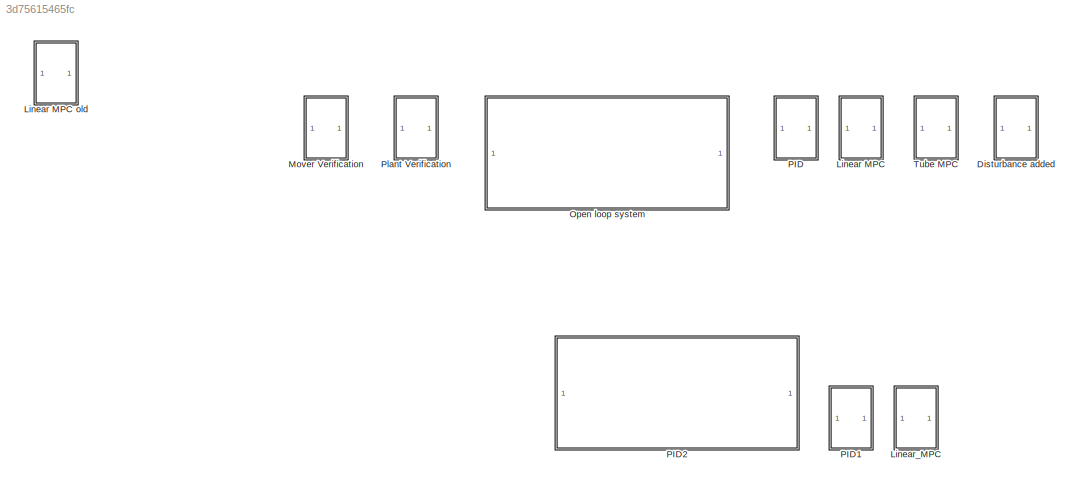
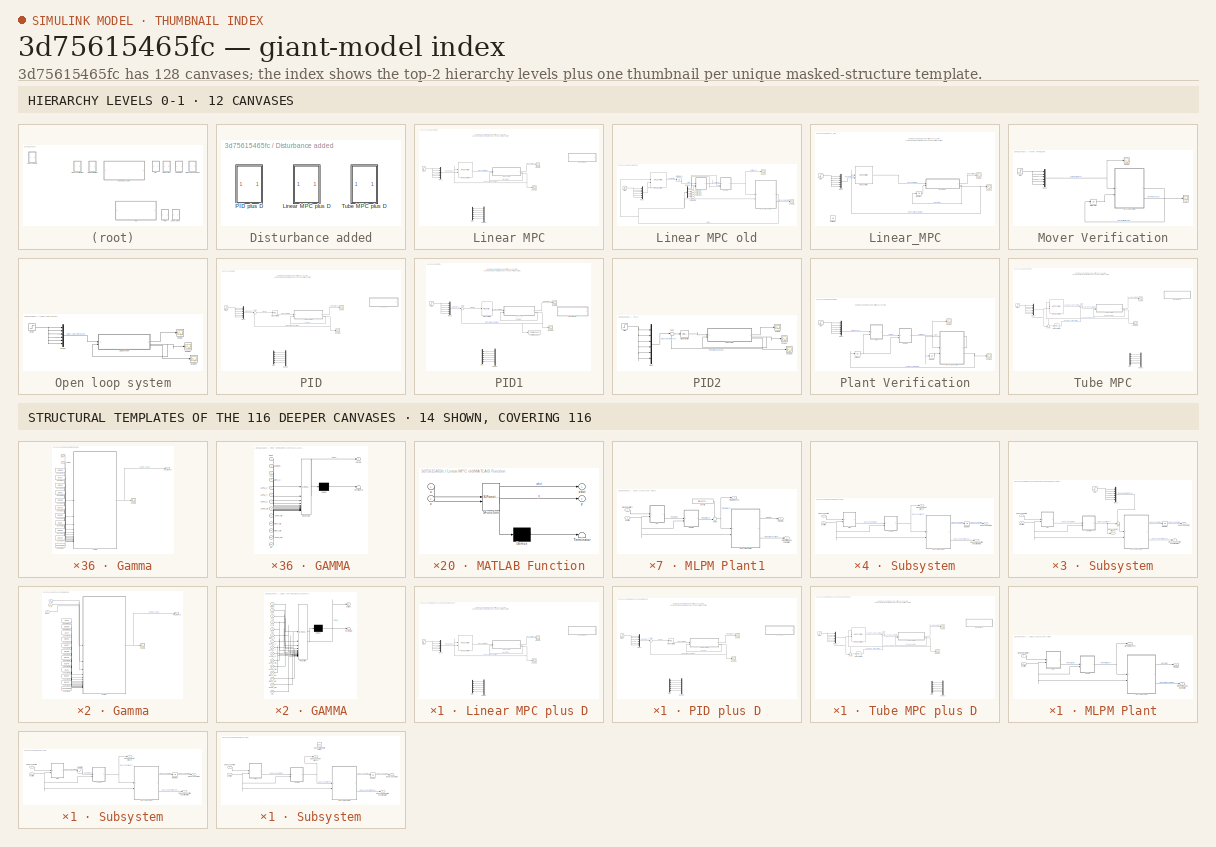
[diagram: thumbnail index - top-2 hierarchy levels (12 canvases) + 14 structural-template representatives of the remaining 116 canvases]
MODEL slx_3d75615465fc
KIND model
CONFIG AbsTol = auto
CONFIG EnableMultiTasking = off
CONFIG FixedStep = 0.01
CONFIG MaxStep = auto
CONFIG MinStep = auto
CONFIG RelTol = 1e-3
CONFIG SampleTimeConstraint = Unconstrained
CONFIG SolverName = FixedStepAuto
CONFIG StartTime = 0.0
CONFIG StopTime = 10
BLOCK [SubSystem] Disturbance added
BLOCK [SubSystem] Disturbance added/Linear MPC plus D
BLOCK [Demux] Disturbance added/Linear MPC plus D/Demux
  Commented = on
  Outputs = 12
BLOCK [SubSystem] Disturbance added/Linear MPC plus D/MLPM Plant1
  Commented = on
BLOCK [SubSystem] Disturbance added/Linear MPC plus D/MLPM Plant1/Gamma
BLOCK [Constant] Disturbance added/Linear MPC plus D/MLPM Plant1/Gamma/Constant1
  Value = -0.0715
BLOCK [Constant] Disturbance added/Linear MPC plus D/MLPM Plant1/Gamma/Constant10
  Value = 3.9021
BLOCK [Constant] Disturbance added/Linear MPC plus D/MLPM Plant1/Gamma/Constant11
  Value = 0.0508
BLOCK [Constant] Disturbance added/Linear MPC plus D/MLPM Plant1/Gamma/Constant2
  Value = 3.14159265
BLOCK [Constant] Disturbance added/Linear MPC plus D/MLPM Plant1/Gamma/Constant3
  Value = -0.0203
BLOCK [Constant] Disturbance added/Linear MPC plus D/MLPM Plant1/Gamma/Constant4
  Value = -0.0146
BLOCK [Constant] Disturbance added/Linear MPC plus D/MLPM Plant1/Gamma/Constant5
  Value = -0.123
BLOCK [Constant] Disturbance added/Linear MPC plus D/MLPM Plant1/Gamma/Constant6
  Value = -0.1046
BLOCK [Constant] Disturbance added/Linear MPC plus D/MLPM Plant1/Gamma/Constant7
  Value = -87.14
BLOCK [Constant] Disturbance added/Linear MPC plus D/MLPM Plant1/Gamma/Constant8
  Value = 5.5209
BLOCK [Constant] Disturbance added/Linear MPC plus D/MLPM Plant1/Gamma/Constant9
  Value = 3.9021
BLOCK [SubSystem] Disturbance added/Linear MPC plus D/MLPM Plant1/Gamma/GAMMA
  ErrorFcn = Stateflow.Translate.translate
  LibrarySourceBlock = simulink/User-Defined\nFunctions/MATLAB Function
  PermitHierarchicalResolution = ExplicitOnly
  SFBlockType = MATLAB Function
  TreatAsAtomicUnit = on
BLOCK [Demux] Disturbance added/Linear MPC plus D/MLPM Plant1/Gamma/GAMMA/ Demux 
  Outputs = 1
BLOCK [S-Function] Disturbance added/Linear MPC plus D/MLPM Plant1/Gamma/GAMMA/ SFunction 
  EnableBusSupport = on
  FunctionName = sf_sfun
  PortCounts = [13 2]
  SFcnIsStateOwnerBlock = off
  SFunctionDeploymentMode = off
  Tag = Stateflow S-Function 41
BLOCK [Terminator] Disturbance added/Linear MPC plus D/MLPM Plant1/Gamma/GAMMA/ Terminator 
BLOCK [Inport] Disturbance added/Linear MPC plus D/MLPM Plant1/Gamma/GAMMA/ALPHA_M1
  Port = 8
BLOCK [Inport] Disturbance added/Linear MPC plus D/MLPM Plant1/Gamma/GAMMA/ALPHA_M2
  Port = 9
BLOCK [Inport] Disturbance added/Linear MPC plus D/MLPM Plant1/Gamma/GAMMA/ALPHA_RZ
  Port = 12
BLOCK [Inport] Disturbance added/Linear MPC plus D/MLPM Plant1/Gamma/GAMMA/ALPHA_X
  Port = 5
BLOCK [Inport] Disturbance added/Linear MPC plus D/MLPM Plant1/Gamma/GAMMA/ALPHA_Y
  Port = 6
BLOCK [Inport] Disturbance added/Linear MPC plus D/MLPM Plant1/Gamma/GAMMA/ALPHA_Z
  Port = 7
BLOCK [Inport] Disturbance added/Linear MPC plus D/MLPM Plant1/Gamma/GAMMA/BETA_K
  Port = 4
BLOCK [Inport] Disturbance added/Linear MPC plus D/MLPM Plant1/Gamma/GAMMA/BETA_M1
  Port = 10
BLOCK [Inport] Disturbance added/Linear MPC plus D/MLPM Plant1/Gamma/GAMMA/BETA_M2
  Port = 11
BLOCK [Inport] Disturbance added/Linear MPC plus D/MLPM Plant1/Gamma/GAMMA/PI
  Port = 13
BLOCK [Inport] Disturbance added/Linear MPC plus D/MLPM Plant1/Gamma/GAMMA/TAU
  Port = 3
BLOCK [Inport] Disturbance added/Linear MPC plus D/MLPM Plant1/Gamma/GAMMA/input
BLOCK [Outport] Disturbance added/Linear MPC plus D/MLPM Plant1/Gamma/GAMMA/output
BLOCK [Inport] Disturbance added/Linear MPC plus D/MLPM Plant1/Gamma/GAMMA/position
  Port = 2
BLOCK [Scope] Disturbance added/Linear MPC plus D/MLPM Plant1/Gamma/Scope
  Floating = off
  NumInputPorts = 1
  ScopeSpecificationString = Simulink.scopes.TimeScopeBlockCfg('CurrentConfiguration', extmgr.ConfigurationSet(extmgr.Configuration('Core','General UI',true),extmgr.Configuration('Core','Source UI',true),extmgr.Configuration('Sources','WiredSimulink',true,'DataLoggingVariableName','ScopeData2'),extmgr.Configuration('Visuals','Time Domain',true,'SerializedDisplays',{struct('MinYLimReal','-0.75842','MaxYLimReal','0.7605','YLabe...<+1454ch>  <repeated x19 — deduplicated; at blocks: Scope>
BLOCK [Inport] Disturbance added/Linear MPC plus D/MLPM Plant1/Gamma/input
BLOCK [Outport] Disturbance added/Linear MPC plus D/MLPM Plant1/Gamma/net_wrench
BLOCK [Inport] Disturbance added/Linear MPC plus D/MLPM Plant1/Gamma/position
  Port = 2
BLOCK [Constant] Disturbance added/Linear MPC plus D/MLPM Plant1/Gravity
  Value = [0;0;-647.2369;0;0;0]
BLOCK [SubSystem] Disturbance added/Linear MPC plus D/MLPM Plant1/MATLAB Function
  ErrorFcn = Stateflow.Translate.translate
  LibrarySourceBlock = simulink/User-Defined\nFunctions/MATLAB Function
  PermitHierarchicalResolution = ExplicitOnly
  SFBlockType = MATLAB Function
  TreatAsAtomicUnit = on
BLOCK [Demux] Disturbance added/Linear MPC plus D/MLPM Plant1/MATLAB Function/ Demux 
  Outputs = 1
BLOCK [S-Function] Disturbance added/Linear MPC plus D/MLPM Plant1/MATLAB Function/ SFunction 
  EnableBusSupport = on
  FunctionName = sf_sfun
  PortCounts = [2 3]
  SFcnIsStateOwnerBlock = off
  SFunctionDeploymentMode = off
  Tag = Stateflow S-Function 42
BLOCK [Terminator] Disturbance added/Linear MPC plus D/MLPM Plant1/MATLAB Function/ Terminator 
BLOCK [Inport] Disturbance added/Linear MPC plus D/MLPM Plant1/MATLAB Function/u
BLOCK [Inport] Disturbance added/Linear MPC plus D/MLPM Plant1/MATLAB Function/x
  Port = 2
BLOCK [Outport] Disturbance added/Linear MPC plus D/MLPM Plant1/MATLAB Function/xdot
BLOCK [Outport] Disturbance added/Linear MPC plus D/MLPM Plant1/MATLAB Function/y
  Port = 2
BLOCK [Inport] Disturbance added/Linear MPC plus D/MLPM Plant1/PID Control effort
BLOCK [Outport] Disturbance added/Linear MPC plus D/MLPM Plant1/PID Net Wrench
BLOCK [Outport] Disturbance added/Linear MPC plus D/MLPM Plant1/PID Position and Orientation
  Port = 3
BLOCK [Outport] Disturbance added/Linear MPC plus D/MLPM Plant1/PID states
  Port = 2
BLOCK [SubSystem] Disturbance added/Linear MPC plus D/MLPM Plant1/PINV
BLOCK [Constant] Disturbance added/Linear MPC plus D/MLPM Plant1/PINV/Constant1
  Value = -0.0715
BLOCK [Constant] Disturbance added/Linear MPC plus D/MLPM Plant1/PINV/Constant10
  Value = 3.9021
BLOCK [Constant] Disturbance added/Linear MPC plus D/MLPM Plant1/PINV/Constant11
  Value = 0.0508
BLOCK [Constant] Disturbance added/Linear MPC plus D/MLPM Plant1/PINV/Constant2
  Value = 3.14159265
BLOCK [Constant] Disturbance added/Linear MPC plus D/MLPM Plant1/PINV/Constant3
  Value = -0.0203
BLOCK [Constant] Disturbance added/Linear MPC plus D/MLPM Plant1/PINV/Constant4
  Value = -0.0146
BLOCK [Constant] Disturbance added/Linear MPC plus D/MLPM Plant1/PINV/Constant5
  Value = -0.123
BLOCK [Constant] Disturbance added/Linear MPC plus D/MLPM Plant1/PINV/Constant6
  Value = -0.1046
BLOCK [Constant] Disturbance added/Linear MPC plus D/MLPM Plant1/PINV/Constant7
  Value = -87.14
BLOCK [Constant] Disturbance added/Linear MPC plus D/MLPM Plant1/PINV/Constant8
  Value = 5.5209
BLOCK [Constant] Disturbance added/Linear MPC plus D/MLPM Plant1/PINV/Constant9
  Value = 3.9021
BLOCK [Outport] Disturbance added/Linear MPC plus D/MLPM Plant1/PINV/Current
BLOCK [SubSystem] Disturbance added/Linear MPC plus D/MLPM Plant1/PINV/GAMMA
  ErrorFcn = Stateflow.Translate.translate
  LibrarySourceBlock = simulink/User-Defined\nFunctions/MATLAB Function
  PermitHierarchicalResolution = ExplicitOnly
  SFBlockType = MATLAB Function
  TreatAsAtomicUnit = on
BLOCK [Demux] Disturbance added/Linear MPC plus D/MLPM Plant1/PINV/GAMMA/ Demux 
  Outputs = 1
BLOCK [S-Function] Disturbance added/Linear MPC plus D/MLPM Plant1/PINV/GAMMA/ SFunction 
  EnableBusSupport = on
  FunctionName = sf_sfun
  PortCounts = [13 2]
  SFcnIsStateOwnerBlock = off
  SFunctionDeploymentMode = off
  Tag = Stateflow S-Function 43
BLOCK [Terminator] Disturbance added/Linear MPC plus D/MLPM Plant1/PINV/GAMMA/ Terminator 
BLOCK [Inport] Disturbance added/Linear MPC plus D/MLPM Plant1/PINV/GAMMA/ALPHA_M1
  Port = 8
BLOCK [Inport] Disturbance added/Linear MPC plus D/MLPM Plant1/PINV/GAMMA/ALPHA_M2
  Port = 9
BLOCK [Inport] Disturbance added/Linear MPC plus D/MLPM Plant1/PINV/GAMMA/ALPHA_RZ
  Port = 12
BLOCK [Inport] Disturbance added/Linear MPC plus D/MLPM Plant1/PINV/GAMMA/ALPHA_X
  Port = 5
BLOCK [Inport] Disturbance added/Linear MPC plus D/MLPM Plant1/PINV/GAMMA/ALPHA_Y
  Port = 6
BLOCK [Inport] Disturbance added/Linear MPC plus D/MLPM Plant1/PINV/GAMMA/ALPHA_Z
  Port = 7
BLOCK [Inport] Disturbance added/Linear MPC plus D/MLPM Plant1/PINV/GAMMA/BETA_K
  Port = 4
BLOCK [Inport] Disturbance added/Linear MPC plus D/MLPM Plant1/PINV/GAMMA/BETA_M1
  Port = 10
BLOCK [Inport] Disturbance added/Linear MPC plus D/MLPM Plant1/PINV/GAMMA/BETA_M2
  Port = 11
BLOCK [Inport] Disturbance added/Linear MPC plus D/MLPM Plant1/PINV/GAMMA/PI
  Port = 13
BLOCK [Inport] Disturbance added/Linear MPC plus D/MLPM Plant1/PINV/GAMMA/TAU
  Port = 3
BLOCK [Inport] Disturbance added/Linear MPC plus D/MLPM Plant1/PINV/GAMMA/input
BLOCK [Outport] Disturbance added/Linear MPC plus D/MLPM Plant1/PINV/GAMMA/output
BLOCK [Inport] Disturbance added/Linear MPC plus D/MLPM Plant1/PINV/GAMMA/position
  Port = 2
BLOCK [Scope] Disturbance added/Linear MPC plus D/MLPM Plant1/PINV/Scope
  Floating = off
  NumInputPorts = 1
  ScopeSpecificationString = Simulink.scopes.TimeScopeBlockCfg('CurrentConfiguration', extmgr.ConfigurationSet(extmgr.Configuration('Core','General UI',true),extmgr.Configuration('Core','Source UI',true),extmgr.Configuration('Sources','WiredSimulink',true,'DataLoggingVariableName','ScopeData1'),extmgr.Configuration('Visuals','Time Domain',true),extmgr.Configuration('Tools','Plot Navigation',true),extmgr.Configuration('Tools',...<+40ch>  <repeated x19 — deduplicated; at blocks: Scope>
BLOCK [Inport] Disturbance added/Linear MPC plus D/MLPM Plant1/PINV/input
BLOCK [Inport] Disturbance added/Linear MPC plus D/MLPM Plant1/PINV/position
  Port = 2
BLOCK [Sum] Disturbance added/Linear MPC plus D/MLPM Plant1/Sum1
  Inputs = ++|
BLOCK [Inport] Disturbance added/Linear MPC plus D/MLPM Plant1/position
  Port = 2
BLOCK [Reference] Disturbance added/Linear MPC plus D/MPC Controller  REF=mpclib/MPC Controller  (lib defined in mdl_ae329e0e0455)
  SCDEnableBlockLinearizationSpecification = on
  SourceBlock = mpclib/MPC Controller
  SourceType = MPC
BLOCK [Mux] Disturbance added/Linear MPC plus D/Mux
  Commented = on
  DisplayOption = bar
  Inputs = 6
BLOCK [Mux] Disturbance added/Linear MPC plus D/Mux2
  DisplayOption = bar
  Inputs = 6
BLOCK [Scope] Disturbance added/Linear MPC plus D/Scope
  Floating = off
  NumInputPorts = 1
  ScopeSpecificationString = Simulink.scopes.TimeScopeBlockCfg('CurrentConfiguration', extmgr.ConfigurationSet(extmgr.Configuration('Core','General UI',true),extmgr.Configuration('Core','Source UI',true),extmgr.Configuration('Sources','WiredSimulink',true),extmgr.Configuration('Visuals','Time Domain',true,'SerializedDisplays',{struct('MinYLimReal','-97.02996','MaxYLimReal','74.44378','YLabelReal','','MinYLimMag','0.00000','Ma...<+1659ch>  <repeated x4 — deduplicated; at blocks: Scope>
BLOCK [Scope] Disturbance added/Linear MPC plus D/Scope1
  Floating = off
  NumInputPorts = 1
  ScopeSpecificationString = Simulink.scopes.TimeScopeBlockCfg('CurrentConfiguration', extmgr.ConfigurationSet(extmgr.Configuration('Core','General UI',true),extmgr.Configuration('Core','Source UI',true),extmgr.Configuration('Sources','WiredSimulink',true,'DataLoggingVariableName','ScopeData1'),extmgr.Configuration('Visuals','Time Domain',true,'SerializedDisplays',{struct('MinYLimReal','-5.75503','MaxYLimReal','1.79526','YLab...<+1746ch>  <repeated x4 — deduplicated; at blocks: Scope1>
BLOCK [Step] Disturbance added/Linear MPC plus D/Step
  SampleTime = 0
  Time = 0
BLOCK [SubSystem] Disturbance added/Linear MPC plus D/Subsystem
BLOCK [SubSystem] Disturbance added/Linear MPC plus D/Subsystem/Gamma
BLOCK [Constant] Disturbance added/Linear MPC plus D/Subsystem/Gamma/Constant1
  Value = -0.0715
BLOCK [Constant] Disturbance added/Linear MPC plus D/Subsystem/Gamma/Constant10
  Value = 3.9021
BLOCK [Constant] Disturbance added/Linear MPC plus D/Subsystem/Gamma/Constant11
  Value = 0.0508
BLOCK [Constant] Disturbance added/Linear MPC plus D/Subsystem/Gamma/Constant2
  Value = 3.14159265
BLOCK [Constant] Disturbance added/Linear MPC plus D/Subsystem/Gamma/Constant3
  Value = -0.0203
BLOCK [Constant] Disturbance added/Linear MPC plus D/Subsystem/Gamma/Constant4
  Value = -0.0146
BLOCK [Constant] Disturbance added/Linear MPC plus D/Subsystem/Gamma/Constant5
  Value = -0.123
BLOCK [Constant] Disturbance added/Linear MPC plus D/Subsystem/Gamma/Constant6
  Value = -0.1046
BLOCK [Constant] Disturbance added/Linear MPC plus D/Subsystem/Gamma/Constant7
  Value = -87.14
BLOCK [Constant] Disturbance added/Linear MPC plus D/Subsystem/Gamma/Constant8
  Value = 5.5209
BLOCK [Constant] Disturbance added/Linear MPC plus D/Subsystem/Gamma/Constant9
  Value = 3.9021
BLOCK [SubSystem] Disturbance added/Linear MPC plus D/Subsystem/Gamma/GAMMA
  ErrorFcn = Stateflow.Translate.translate
  LibrarySourceBlock = simulink/User-Defined\nFunctions/MATLAB Function
  PermitHierarchicalResolution = ExplicitOnly
  SFBlockType = MATLAB Function
  TreatAsAtomicUnit = on
BLOCK [Demux] Disturbance added/Linear MPC plus D/Subsystem/Gamma/GAMMA/ Demux 
  Outputs = 1
BLOCK [S-Function] Disturbance added/Linear MPC plus D/Subsystem/Gamma/GAMMA/ SFunction 
  EnableBusSupport = on
  FunctionName = sf_sfun
  PortCounts = [13 2]
  SFcnIsStateOwnerBlock = off
  SFunctionDeploymentMode = off
  Tag = Stateflow S-Function 44
BLOCK [Terminator] Disturbance added/Linear MPC plus D/Subsystem/Gamma/GAMMA/ Terminator 
BLOCK [Inport] Disturbance added/Linear MPC plus D/Subsystem/Gamma/GAMMA/ALPHA_M1
  Port = 8
BLOCK [Inport] Disturbance added/Linear MPC plus D/Subsystem/Gamma/GAMMA/ALPHA_M2
  Port = 9
BLOCK [Inport] Disturbance added/Linear MPC plus D/Subsystem/Gamma/GAMMA/ALPHA_RZ
  Port = 12
BLOCK [Inport] Disturbance added/Linear MPC plus D/Subsystem/Gamma/GAMMA/ALPHA_X
  Port = 5
BLOCK [Inport] Disturbance added/Linear MPC plus D/Subsystem/Gamma/GAMMA/ALPHA_Y
  Port = 6
BLOCK [Inport] Disturbance added/Linear MPC plus D/Subsystem/Gamma/GAMMA/ALPHA_Z
  Port = 7
BLOCK [Inport] Disturbance added/Linear MPC plus D/Subsystem/Gamma/GAMMA/BETA_K
  Port = 4
BLOCK [Inport] Disturbance added/Linear MPC plus D/Subsystem/Gamma/GAMMA/BETA_M1
  Port = 10
BLOCK [Inport] Disturbance added/Linear MPC plus D/Subsystem/Gamma/GAMMA/BETA_M2
  Port = 11
BLOCK [Inport] Disturbance added/Linear MPC plus D/Subsystem/Gamma/GAMMA/PI
  Port = 13
BLOCK [Inport] Disturbance added/Linear MPC plus D/Subsystem/Gamma/GAMMA/TAU
  Port = 3
BLOCK [Inport] Disturbance added/Linear MPC plus D/Subsystem/Gamma/GAMMA/input
BLOCK [Outport] Disturbance added/Linear MPC plus D/Subsystem/Gamma/GAMMA/output
BLOCK [Inport] Disturbance added/Linear MPC plus D/Subsystem/Gamma/GAMMA/position
  Port = 2
BLOCK [Scope] Disturbance added/Linear MPC plus D/Subsystem/Gamma/Scope
  Floating = off
  NumInputPorts = 1
BLOCK [Inport] Disturbance added/Linear MPC plus D/Subsystem/Gamma/input
BLOCK [Outport] Disturbance added/Linear MPC plus D/Subsystem/Gamma/net_wrench
BLOCK [Inport] Disturbance added/Linear MPC plus D/Subsystem/Gamma/position
  Port = 2
BLOCK [Integrator] Disturbance added/Linear MPC plus D/Subsystem/Integrator
  InitialCondition = [0;0;0;0;0;0;0;0;0;0;0;0]
  LimitOutput = on
  LowerSaturationLimit = -5
  UpperSaturationLimit = 5
BLOCK [SubSystem] Disturbance added/Linear MPC plus D/Subsystem/MATLAB Function
  ErrorFcn = Stateflow.Translate.translate
  LibrarySourceBlock = simulink/User-Defined\nFunctions/MATLAB Function
  PermitHierarchicalResolution = ExplicitOnly
  SFBlockType = MATLAB Function
  TreatAsAtomicUnit = on
BLOCK [Demux] Disturbance added/Linear MPC plus D/Subsystem/MATLAB Function/ Demux 
  Outputs = 1
BLOCK [S-Function] Disturbance added/Linear MPC plus D/Subsystem/MATLAB Function/ SFunction 
  EnableBusSupport = on
  FunctionName = sf_sfun
  PortCounts = [2 3]
  SFcnIsStateOwnerBlock = off
  SFunctionDeploymentMode = off
  Tag = Stateflow S-Function 45
BLOCK [Terminator] Disturbance added/Linear MPC plus D/Subsystem/MATLAB Function/ Terminator 
BLOCK [Inport] Disturbance added/Linear MPC plus D/Subsystem/MATLAB Function/u
BLOCK [Inport] Disturbance added/Linear MPC plus D/Subsystem/MATLAB Function/x
  Port = 2
BLOCK [Outport] Disturbance added/Linear MPC plus D/Subsystem/MATLAB Function/xdot
BLOCK [Outport] Disturbance added/Linear MPC plus D/Subsystem/MATLAB Function/y
  Port = 2
BLOCK [Mux] Disturbance added/Linear MPC plus D/Subsystem/Mux2
  DisplayOption = bar
  Inputs = 6
BLOCK [Outport] Disturbance added/Linear MPC plus D/Subsystem/Open Loop Net Wrench
BLOCK [Outport] Disturbance added/Linear MPC plus D/Subsystem/Open Loop Position and Orientation
  Port = 3
BLOCK [Inport] Disturbance added/Linear MPC plus D/Subsystem/Open Loop effort
BLOCK [Outport] Disturbance added/Linear MPC plus D/Subsystem/Open Loop states
  Port = 2
BLOCK [SubSystem] Disturbance added/Linear MPC plus D/Subsystem/PINV
BLOCK [Constant] Disturbance added/Linear MPC plus D/Subsystem/PINV/Constant1
  Value = -0.0715
BLOCK [Constant] Disturbance added/Linear MPC plus D/Subsystem/PINV/Constant10
  Value = 3.9021
BLOCK [Constant] Disturbance added/Linear MPC plus D/Subsystem/PINV/Constant11
  Value = 0.0508
BLOCK [Constant] Disturbance added/Linear MPC plus D/Subsystem/PINV/Constant2
  Value = 3.14159265
BLOCK [Constant] Disturbance added/Linear MPC plus D/Subsystem/PINV/Constant3
  Value = -0.0203
BLOCK [Constant] Disturbance added/Linear MPC plus D/Subsystem/PINV/Constant4
  Value = -0.0146
BLOCK [Constant] Disturbance added/Linear MPC plus D/Subsystem/PINV/Constant5
  Value = -0.123
BLOCK [Constant] Disturbance added/Linear MPC plus D/Subsystem/PINV/Constant6
  Value = -0.1046
BLOCK [Constant] Disturbance added/Linear MPC plus D/Subsystem/PINV/Constant7
  Value = -87.14
BLOCK [Constant] Disturbance added/Linear MPC plus D/Subsystem/PINV/Constant8
  Value = 5.5209
BLOCK [Constant] Disturbance added/Linear MPC plus D/Subsystem/PINV/Constant9
  Value = 3.9021
BLOCK [Outport] Disturbance added/Linear MPC plus D/Subsystem/PINV/Current
BLOCK [SubSystem] Disturbance added/Linear MPC plus D/Subsystem/PINV/GAMMA
  ErrorFcn = Stateflow.Translate.translate
  LibrarySourceBlock = simulink/User-Defined\nFunctions/MATLAB Function
  PermitHierarchicalResolution = ExplicitOnly
  SFBlockType = MATLAB Function
  TreatAsAtomicUnit = on
BLOCK [Demux] Disturbance added/Linear MPC plus D/Subsystem/PINV/GAMMA/ Demux 
  Outputs = 1
BLOCK [S-Function] Disturbance added/Linear MPC plus D/Subsystem/PINV/GAMMA/ SFunction 
  EnableBusSupport = on
  FunctionName = sf_sfun
  PortCounts = [13 2]
  SFcnIsStateOwnerBlock = off
  SFunctionDeploymentMode = off
  Tag = Stateflow S-Function 46
BLOCK [Terminator] Disturbance added/Linear MPC plus D/Subsystem/PINV/GAMMA/ Terminator 
BLOCK [Inport] Disturbance added/Linear MPC plus D/Subsystem/PINV/GAMMA/ALPHA_M1
  Port = 8
BLOCK [Inport] Disturbance added/Linear MPC plus D/Subsystem/PINV/GAMMA/ALPHA_M2
  Port = 9
BLOCK [Inport] Disturbance added/Linear MPC plus D/Subsystem/PINV/GAMMA/ALPHA_RZ
  Port = 12
BLOCK [Inport] Disturbance added/Linear MPC plus D/Subsystem/PINV/GAMMA/ALPHA_X
  Port = 5
BLOCK [Inport] Disturbance added/Linear MPC plus D/Subsystem/PINV/GAMMA/ALPHA_Y
  Port = 6
BLOCK [Inport] Disturbance added/Linear MPC plus D/Subsystem/PINV/GAMMA/ALPHA_Z
  Port = 7
BLOCK [Inport] Disturbance added/Linear MPC plus D/Subsystem/PINV/GAMMA/BETA_K
  Port = 4
BLOCK [Inport] Disturbance added/Linear MPC plus D/Subsystem/PINV/GAMMA/BETA_M1
  Port = 10
BLOCK [Inport] Disturbance added/Linear MPC plus D/Subsystem/PINV/GAMMA/BETA_M2
  Port = 11
BLOCK [Inport] Disturbance added/Linear MPC plus D/Subsystem/PINV/GAMMA/PI
  Port = 13
BLOCK [Inport] Disturbance added/Linear MPC plus D/Subsystem/PINV/GAMMA/TAU
  Port = 3
BLOCK [Inport] Disturbance added/Linear MPC plus D/Subsystem/PINV/GAMMA/input
BLOCK [Outport] Disturbance added/Linear MPC plus D/Subsystem/PINV/GAMMA/output
BLOCK [Inport] Disturbance added/Linear MPC plus D/Subsystem/PINV/GAMMA/position
  Port = 2
BLOCK [Scope] Disturbance added/Linear MPC plus D/Subsystem/PINV/Scope
  Floating = off
  NumInputPorts = 1
BLOCK [Inport] Disturbance added/Linear MPC plus D/Subsystem/PINV/input
BLOCK [Inport] Disturbance added/Linear MPC plus D/Subsystem/PINV/position
  Port = 2
BLOCK [Step] Disturbance added/Linear MPC plus D/Subsystem/Step
  After = 1000
  SampleTime = 0
  Time = 3
BLOCK [Sum] Disturbance added/Linear MPC plus D/Subsystem/Sum
  Inputs = ++|
BLOCK [Inport] Disturbance added/Linear MPC plus D/Subsystem/position
  Port = 2
BLOCK [SubSystem] Disturbance added/PID plus D
BLOCK [Demux] Disturbance added/PID plus D/Demux
  Commented = on
  Outputs = 12
BLOCK [SubSystem] Disturbance added/PID plus D/MLPM Plant1
  Commented = on
BLOCK [SubSystem] Disturbance added/PID plus D/MLPM Plant1/Gamma
BLOCK [Constant] Disturbance added/PID plus D/MLPM Plant1/Gamma/Constant1
  Value = -0.0715
BLOCK [Constant] Disturbance added/PID plus D/MLPM Plant1/Gamma/Constant10
  Value = 3.9021
BLOCK [Constant] Disturbance added/PID plus D/MLPM Plant1/Gamma/Constant11
  Value = 0.0508
BLOCK [Constant] Disturbance added/PID plus D/MLPM Plant1/Gamma/Constant2
  Value = 3.14159265
BLOCK [Constant] Disturbance added/PID plus D/MLPM Plant1/Gamma/Constant3
  Value = -0.0203
BLOCK [Constant] Disturbance added/PID plus D/MLPM Plant1/Gamma/Constant4
  Value = -0.0146
BLOCK [Constant] Disturbance added/PID plus D/MLPM Plant1/Gamma/Constant5
  Value = -0.123
BLOCK [Constant] Disturbance added/PID plus D/MLPM Plant1/Gamma/Constant6
  Value = -0.1046
BLOCK [Constant] Disturbance added/PID plus D/MLPM Plant1/Gamma/Constant7
  Value = -87.14
BLOCK [Constant] Disturbance added/PID plus D/MLPM Plant1/Gamma/Constant8
  Value = 5.5209
BLOCK [Constant] Disturbance added/PID plus D/MLPM Plant1/Gamma/Constant9
  Value = 3.9021
BLOCK [SubSystem] Disturbance added/PID plus D/MLPM Plant1/Gamma/GAMMA
  ErrorFcn = Stateflow.Translate.translate
  LibrarySourceBlock = simulink/User-Defined\nFunctions/MATLAB Function
  PermitHierarchicalResolution = ExplicitOnly
  SFBlockType = MATLAB Function
  TreatAsAtomicUnit = on
BLOCK [Demux] Disturbance added/PID plus D/MLPM Plant1/Gamma/GAMMA/ Demux 
  Outputs = 1
BLOCK [S-Function] Disturbance added/PID plus D/MLPM Plant1/Gamma/GAMMA/ SFunction 
  EnableBusSupport = on
  FunctionName = sf_sfun
  PortCounts = [13 2]
  SFcnIsStateOwnerBlock = off
  SFunctionDeploymentMode = off
  Tag = Stateflow S-Function 47
BLOCK [Terminator] Disturbance added/PID plus D/MLPM Plant1/Gamma/GAMMA/ Terminator 
BLOCK [Inport] Disturbance added/PID plus D/MLPM Plant1/Gamma/GAMMA/ALPHA_M1
  Port = 8
BLOCK [Inport] Disturbance added/PID plus D/MLPM Plant1/Gamma/GAMMA/ALPHA_M2
  Port = 9
BLOCK [Inport] Disturbance added/PID plus D/MLPM Plant1/Gamma/GAMMA/ALPHA_RZ
  Port = 12
BLOCK [Inport] Disturbance added/PID plus D/MLPM Plant1/Gamma/GAMMA/ALPHA_X
  Port = 5
BLOCK [Inport] Disturbance added/PID plus D/MLPM Plant1/Gamma/GAMMA/ALPHA_Y
  Port = 6
BLOCK [Inport] Disturbance added/PID plus D/MLPM Plant1/Gamma/GAMMA/ALPHA_Z
  Port = 7
BLOCK [Inport] Disturbance added/PID plus D/MLPM Plant1/Gamma/GAMMA/BETA_K
  Port = 4
BLOCK [Inport] Disturbance added/PID plus D/MLPM Plant1/Gamma/GAMMA/BETA_M1
  Port = 10
BLOCK [Inport] Disturbance added/PID plus D/MLPM Plant1/Gamma/GAMMA/BETA_M2
  Port = 11
BLOCK [Inport] Disturbance added/PID plus D/MLPM Plant1/Gamma/GAMMA/PI
  Port = 13
BLOCK [Inport] Disturbance added/PID plus D/MLPM Plant1/Gamma/GAMMA/TAU
  Port = 3
BLOCK [Inport] Disturbance added/PID plus D/MLPM Plant1/Gamma/GAMMA/input
BLOCK [Outport] Disturbance added/PID plus D/MLPM Plant1/Gamma/GAMMA/output
BLOCK [Inport] Disturbance added/PID plus D/MLPM Plant1/Gamma/GAMMA/position
  Port = 2
BLOCK [Scope] Disturbance added/PID plus D/MLPM Plant1/Gamma/Scope
  Floating = off
  NumInputPorts = 1
BLOCK [Inport] Disturbance added/PID plus D/MLPM Plant1/Gamma/input
BLOCK [Outport] Disturbance added/PID plus D/MLPM Plant1/Gamma/net_wrench
BLOCK [Inport] Disturbance added/PID plus D/MLPM Plant1/Gamma/position
  Port = 2
BLOCK [Constant] Disturbance added/PID plus D/MLPM Plant1/Gravity
  Value = [0;0;-647.2369;0;0;0]
BLOCK [SubSystem] Disturbance added/PID plus D/MLPM Plant1/MATLAB Function
  ErrorFcn = Stateflow.Translate.translate
  LibrarySourceBlock = simulink/User-Defined\nFunctions/MATLAB Function
  PermitHierarchicalResolution = ExplicitOnly
  SFBlockType = MATLAB Function
  TreatAsAtomicUnit = on
BLOCK [Demux] Disturbance added/PID plus D/MLPM Plant1/MATLAB Function/ Demux 
  Outputs = 1
BLOCK [S-Function] Disturbance added/PID plus D/MLPM Plant1/MATLAB Function/ SFunction 
  EnableBusSupport = on
  FunctionName = sf_sfun
  PortCounts = [2 3]
  SFcnIsStateOwnerBlock = off
  SFunctionDeploymentMode = off
  Tag = Stateflow S-Function 48
BLOCK [Terminator] Disturbance added/PID plus D/MLPM Plant1/MATLAB Function/ Terminator 
BLOCK [Inport] Disturbance added/PID plus D/MLPM Plant1/MATLAB Function/u
BLOCK [Inport] Disturbance added/PID plus D/MLPM Plant1/MATLAB Function/x
  Port = 2
BLOCK [Outport] Disturbance added/PID plus D/MLPM Plant1/MATLAB Function/xdot
BLOCK [Outport] Disturbance added/PID plus D/MLPM Plant1/MATLAB Function/y
  Port = 2
BLOCK [Inport] Disturbance added/PID plus D/MLPM Plant1/PID Control effort
BLOCK [Outport] Disturbance added/PID plus D/MLPM Plant1/PID Net Wrench
BLOCK [Outport] Disturbance added/PID plus D/MLPM Plant1/PID Position and Orientation
  Port = 3
BLOCK [Outport] Disturbance added/PID plus D/MLPM Plant1/PID states
  Port = 2
BLOCK [SubSystem] Disturbance added/PID plus D/MLPM Plant1/PINV
BLOCK [Constant] Disturbance added/PID plus D/MLPM Plant1/PINV/Constant1
  Value = -0.0715
BLOCK [Constant] Disturbance added/PID plus D/MLPM Plant1/PINV/Constant10
  Value = 3.9021
BLOCK [Constant] Disturbance added/PID plus D/MLPM Plant1/PINV/Constant11
  Value = 0.0508
BLOCK [Constant] Disturbance added/PID plus D/MLPM Plant1/PINV/Constant2
  Value = 3.14159265
BLOCK [Constant] Disturbance added/PID plus D/MLPM Plant1/PINV/Constant3
  Value = -0.0203
BLOCK [Constant] Disturbance added/PID plus D/MLPM Plant1/PINV/Constant4
  Value = -0.0146
BLOCK [Constant] Disturbance added/PID plus D/MLPM Plant1/PINV/Constant5
  Value = -0.123
BLOCK [Constant] Disturbance added/PID plus D/MLPM Plant1/PINV/Constant6
  Value = -0.1046
BLOCK [Constant] Disturbance added/PID plus D/MLPM Plant1/PINV/Constant7
  Value = -87.14
BLOCK [Constant] Disturbance added/PID plus D/MLPM Plant1/PINV/Constant8
  Value = 5.5209
BLOCK [Constant] Disturbance added/PID plus D/MLPM Plant1/PINV/Constant9
  Value = 3.9021
BLOCK [Outport] Disturbance added/PID plus D/MLPM Plant1/PINV/Current
BLOCK [SubSystem] Disturbance added/PID plus D/MLPM Plant1/PINV/GAMMA
  ErrorFcn = Stateflow.Translate.translate
  LibrarySourceBlock = simulink/User-Defined\nFunctions/MATLAB Function
  PermitHierarchicalResolution = ExplicitOnly
  SFBlockType = MATLAB Function
  TreatAsAtomicUnit = on
BLOCK [Demux] Disturbance added/PID plus D/MLPM Plant1/PINV/GAMMA/ Demux 
  Outputs = 1
BLOCK [S-Function] Disturbance added/PID plus D/MLPM Plant1/PINV/GAMMA/ SFunction 
  EnableBusSupport = on
  FunctionName = sf_sfun
  PortCounts = [13 2]
  SFcnIsStateOwnerBlock = off
  SFunctionDeploymentMode = off
  Tag = Stateflow S-Function 49
BLOCK [Terminator] Disturbance added/PID plus D/MLPM Plant1/PINV/GAMMA/ Terminator 
BLOCK [Inport] Disturbance added/PID plus D/MLPM Plant1/PINV/GAMMA/ALPHA_M1
  Port = 8
BLOCK [Inport] Disturbance added/PID plus D/MLPM Plant1/PINV/GAMMA/ALPHA_M2
  Port = 9
BLOCK [Inport] Disturbance added/PID plus D/MLPM Plant1/PINV/GAMMA/ALPHA_RZ
  Port = 12
BLOCK [Inport] Disturbance added/PID plus D/MLPM Plant1/PINV/GAMMA/ALPHA_X
  Port = 5
BLOCK [Inport] Disturbance added/PID plus D/MLPM Plant1/PINV/GAMMA/ALPHA_Y
  Port = 6
BLOCK [Inport] Disturbance added/PID plus D/MLPM Plant1/PINV/GAMMA/ALPHA_Z
  Port = 7
BLOCK [Inport] Disturbance added/PID plus D/MLPM Plant1/PINV/GAMMA/BETA_K
  Port = 4
BLOCK [Inport] Disturbance added/PID plus D/MLPM Plant1/PINV/GAMMA/BETA_M1
  Port = 10
BLOCK [Inport] Disturbance added/PID plus D/MLPM Plant1/PINV/GAMMA/BETA_M2
  Port = 11
BLOCK [Inport] Disturbance added/PID plus D/MLPM Plant1/PINV/GAMMA/PI
  Port = 13
BLOCK [Inport] Disturbance added/PID plus D/MLPM Plant1/PINV/GAMMA/TAU
  Port = 3
BLOCK [Inport] Disturbance added/PID plus D/MLPM Plant1/PINV/GAMMA/input
BLOCK [Outport] Disturbance added/PID plus D/MLPM Plant1/PINV/GAMMA/output
BLOCK [Inport] Disturbance added/PID plus D/MLPM Plant1/PINV/GAMMA/position
  Port = 2
BLOCK [Scope] Disturbance added/PID plus D/MLPM Plant1/PINV/Scope
  Floating = off
  NumInputPorts = 1
BLOCK [Inport] Disturbance added/PID plus D/MLPM Plant1/PINV/input
BLOCK [Inport] Disturbance added/PID plus D/MLPM Plant1/PINV/position
  Port = 2
BLOCK [Sum] Disturbance added/PID plus D/MLPM Plant1/Sum1
  Inputs = ++|
BLOCK [Inport] Disturbance added/PID plus D/MLPM Plant1/position
  Port = 2
BLOCK [Mux] Disturbance added/PID plus D/Mux
  Commented = on
  DisplayOption = bar
  Inputs = 6
BLOCK [Mux] Disturbance added/PID plus D/Mux2
  DisplayOption = bar
  Inputs = 6
BLOCK [Reference] Disturbance added/PID plus D/PID Controller2  REF=slpidlib/PID Controller
  LibrarySourceBlock = simulink/Continuous/PID Controller
  SourceBlock = slpidlib/PID Controller
  SourceType = PID 1dof
BLOCK [Scope] Disturbance added/PID plus D/Scope
  Floating = off
  NumInputPorts = 1
  ScopeSpecificationString = Simulink.scopes.TimeScopeBlockCfg('CurrentConfiguration', extmgr.ConfigurationSet(extmgr.Configuration('Core','General UI',true),extmgr.Configuration('Core','Source UI',true),extmgr.Configuration('Sources','WiredSimulink',true),extmgr.Configuration('Visuals','Time Domain',true,'SerializedDisplays',{struct('MinYLimReal','-6584.08708','MaxYLimReal','49064.89856','YLabelReal','','MinYLimMag','  0.000...<+1679ch>  <repeated x3 — deduplicated; at blocks: Scope>
BLOCK [Scope] Disturbance added/PID plus D/Scope1
  Floating = off
  NumInputPorts = 1
  ScopeSpecificationString = Simulink.scopes.TimeScopeBlockCfg('CurrentConfiguration', extmgr.ConfigurationSet(extmgr.Configuration('Core','General UI',true),extmgr.Configuration('Core','Source UI',true),extmgr.Configuration('Sources','WiredSimulink',true,'DataLoggingVariableName','ScopeData1'),extmgr.Configuration('Visuals','Time Domain',true,'SerializedDisplays',{struct('MinYLimReal','-6.25','MaxYLimReal','6.25','YLabelReal...<+1728ch>  <repeated x3 — deduplicated; at blocks: Scope1>
BLOCK [Step] Disturbance added/PID plus D/Step
  SampleTime = 0
  Time = 0
BLOCK [SubSystem] Disturbance added/PID plus D/Subsystem
BLOCK [SubSystem] Disturbance added/PID plus D/Subsystem/Gamma
BLOCK [Constant] Disturbance added/PID plus D/Subsystem/Gamma/Constant1
  Value = -0.0715
BLOCK [Constant] Disturbance added/PID plus D/Subsystem/Gamma/Constant10
  Value = 3.9021
BLOCK [Constant] Disturbance added/PID plus D/Subsystem/Gamma/Constant11
  Value = 0.0508
BLOCK [Constant] Disturbance added/PID plus D/Subsystem/Gamma/Constant2
  Value = 3.14159265
BLOCK [Constant] Disturbance added/PID plus D/Subsystem/Gamma/Constant3
  Value = -0.0203
BLOCK [Constant] Disturbance added/PID plus D/Subsystem/Gamma/Constant4
  Value = -0.0146
BLOCK [Constant] Disturbance added/PID plus D/Subsystem/Gamma/Constant5
  Value = -0.123
BLOCK [Constant] Disturbance added/PID plus D/Subsystem/Gamma/Constant6
  Value = -0.1046
BLOCK [Constant] Disturbance added/PID plus D/Subsystem/Gamma/Constant7
  Value = -87.14
BLOCK [Constant] Disturbance added/PID plus D/Subsystem/Gamma/Constant8
  Value = 5.5209
BLOCK [Constant] Disturbance added/PID plus D/Subsystem/Gamma/Constant9
  Value = 3.9021
BLOCK [SubSystem] Disturbance added/PID plus D/Subsystem/Gamma/GAMMA
  ErrorFcn = Stateflow.Translate.translate
  LibrarySourceBlock = simulink/User-Defined\nFunctions/MATLAB Function
  PermitHierarchicalResolution = ExplicitOnly
  SFBlockType = MATLAB Function
  TreatAsAtomicUnit = on
BLOCK [Demux] Disturbance added/PID plus D/Subsystem/Gamma/GAMMA/ Demux 
  Outputs = 1
BLOCK [S-Function] Disturbance added/PID plus D/Subsystem/Gamma/GAMMA/ SFunction 
  EnableBusSupport = on
  FunctionName = sf_sfun
  PortCounts = [13 2]
  SFcnIsStateOwnerBlock = off
  SFunctionDeploymentMode = off
  Tag = Stateflow S-Function 50
BLOCK [Terminator] Disturbance added/PID plus D/Subsystem/Gamma/GAMMA/ Terminator 
BLOCK [Inport] Disturbance added/PID plus D/Subsystem/Gamma/GAMMA/ALPHA_M1
  Port = 8
BLOCK [Inport] Disturbance added/PID plus D/Subsystem/Gamma/GAMMA/ALPHA_M2
  Port = 9
BLOCK [Inport] Disturbance added/PID plus D/Subsystem/Gamma/GAMMA/ALPHA_RZ
  Port = 12
BLOCK [Inport] Disturbance added/PID plus D/Subsystem/Gamma/GAMMA/ALPHA_X
  Port = 5
BLOCK [Inport] Disturbance added/PID plus D/Subsystem/Gamma/GAMMA/ALPHA_Y
  Port = 6
BLOCK [Inport] Disturbance added/PID plus D/Subsystem/Gamma/GAMMA/ALPHA_Z
  Port = 7
BLOCK [Inport] Disturbance added/PID plus D/Subsystem/Gamma/GAMMA/BETA_K
  Port = 4
BLOCK [Inport] Disturbance added/PID plus D/Subsystem/Gamma/GAMMA/BETA_M1
  Port = 10
BLOCK [Inport] Disturbance added/PID plus D/Subsystem/Gamma/GAMMA/BETA_M2
  Port = 11
BLOCK [Inport] Disturbance added/PID plus D/Subsystem/Gamma/GAMMA/PI
  Port = 13
BLOCK [Inport] Disturbance added/PID plus D/Subsystem/Gamma/GAMMA/TAU
  Port = 3
BLOCK [Inport] Disturbance added/PID plus D/Subsystem/Gamma/GAMMA/input
BLOCK [Outport] Disturbance added/PID plus D/Subsystem/Gamma/GAMMA/output
BLOCK [Inport] Disturbance added/PID plus D/Subsystem/Gamma/GAMMA/position
  Port = 2
BLOCK [Scope] Disturbance added/PID plus D/Subsystem/Gamma/Scope
  Floating = off
  NumInputPorts = 1
BLOCK [Inport] Disturbance added/PID plus D/Subsystem/Gamma/input
BLOCK [Outport] Disturbance added/PID plus D/Subsystem/Gamma/net_wrench
BLOCK [Inport] Disturbance added/PID plus D/Subsystem/Gamma/position
  Port = 2
BLOCK [Integrator] Disturbance added/PID plus D/Subsystem/Integrator
  InitialCondition = [0;0;0;0;0;0;0;0;0;0;0;0]
  LimitOutput = on
  LowerSaturationLimit = -5
  UpperSaturationLimit = 5
BLOCK [SubSystem] Disturbance added/PID plus D/Subsystem/MATLAB Function
  ErrorFcn = Stateflow.Translate.translate
  LibrarySourceBlock = simulink/User-Defined\nFunctions/MATLAB Function
  PermitHierarchicalResolution = ExplicitOnly
  SFBlockType = MATLAB Function
  TreatAsAtomicUnit = on
BLOCK [Demux] Disturbance added/PID plus D/Subsystem/MATLAB Function/ Demux 
  Outputs = 1
BLOCK [S-Function] Disturbance added/PID plus D/Subsystem/MATLAB Function/ SFunction 
  EnableBusSupport = on
  FunctionName = sf_sfun
  PortCounts = [2 3]
  SFcnIsStateOwnerBlock = off
  SFunctionDeploymentMode = off
  Tag = Stateflow S-Function 51
BLOCK [Terminator] Disturbance added/PID plus D/Subsystem/MATLAB Function/ Terminator 
BLOCK [Inport] Disturbance added/PID plus D/Subsystem/MATLAB Function/u
BLOCK [Inport] Disturbance added/PID plus D/Subsystem/MATLAB Function/x
  Port = 2
BLOCK [Outport] Disturbance added/PID plus D/Subsystem/MATLAB Function/xdot
BLOCK [Outport] Disturbance added/PID plus D/Subsystem/MATLAB Function/y
  Port = 2
BLOCK [Mux] Disturbance added/PID plus D/Subsystem/Mux2
  DisplayOption = bar
  Inputs = 6
BLOCK [Outport] Disturbance added/PID plus D/Subsystem/Open Loop Net Wrench
BLOCK [Outport] Disturbance added/PID plus D/Subsystem/Open Loop Position and Orientation
  Port = 3
BLOCK [Inport] Disturbance added/PID plus D/Subsystem/Open Loop effort
BLOCK [Outport] Disturbance added/PID plus D/Subsystem/Open Loop states
  Port = 2
BLOCK [SubSystem] Disturbance added/PID plus D/Subsystem/PINV
BLOCK [Constant] Disturbance added/PID plus D/Subsystem/PINV/Constant1
  Value = -0.0715
BLOCK [Constant] Disturbance added/PID plus D/Subsystem/PINV/Constant10
  Value = 3.9021
BLOCK [Constant] Disturbance added/PID plus D/Subsystem/PINV/Constant11
  Value = 0.0508
BLOCK [Constant] Disturbance added/PID plus D/Subsystem/PINV/Constant2
  Value = 3.14159265
BLOCK [Constant] Disturbance added/PID plus D/Subsystem/PINV/Constant3
  Value = -0.0203
BLOCK [Constant] Disturbance added/PID plus D/Subsystem/PINV/Constant4
  Value = -0.0146
BLOCK [Constant] Disturbance added/PID plus D/Subsystem/PINV/Constant5
  Value = -0.123
BLOCK [Constant] Disturbance added/PID plus D/Subsystem/PINV/Constant6
  Value = -0.1046
BLOCK [Constant] Disturbance added/PID plus D/Subsystem/PINV/Constant7
  Value = -87.14
BLOCK [Constant] Disturbance added/PID plus D/Subsystem/PINV/Constant8
  Value = 5.5209
BLOCK [Constant] Disturbance added/PID plus D/Subsystem/PINV/Constant9
  Value = 3.9021
BLOCK [Outport] Disturbance added/PID plus D/Subsystem/PINV/Current
BLOCK [SubSystem] Disturbance added/PID plus D/Subsystem/PINV/GAMMA
  ErrorFcn = Stateflow.Translate.translate
  LibrarySourceBlock = simulink/User-Defined\nFunctions/MATLAB Function
  PermitHierarchicalResolution = ExplicitOnly
  SFBlockType = MATLAB Function
  TreatAsAtomicUnit = on
BLOCK [Demux] Disturbance added/PID plus D/Subsystem/PINV/GAMMA/ Demux 
  Outputs = 1
BLOCK [S-Function] Disturbance added/PID plus D/Subsystem/PINV/GAMMA/ SFunction 
  EnableBusSupport = on
  FunctionName = sf_sfun
  PortCounts = [13 2]
  SFcnIsStateOwnerBlock = off
  SFunctionDeploymentMode = off
  Tag = Stateflow S-Function 52
BLOCK [Terminator] Disturbance added/PID plus D/Subsystem/PINV/GAMMA/ Terminator 
BLOCK [Inport] Disturbance added/PID plus D/Subsystem/PINV/GAMMA/ALPHA_M1
  Port = 8
BLOCK [Inport] Disturbance added/PID plus D/Subsystem/PINV/GAMMA/ALPHA_M2
  Port = 9
BLOCK [Inport] Disturbance added/PID plus D/Subsystem/PINV/GAMMA/ALPHA_RZ
  Port = 12
BLOCK [Inport] Disturbance added/PID plus D/Subsystem/PINV/GAMMA/ALPHA_X
  Port = 5
BLOCK [Inport] Disturbance added/PID plus D/Subsystem/PINV/GAMMA/ALPHA_Y
  Port = 6
BLOCK [Inport] Disturbance added/PID plus D/Subsystem/PINV/GAMMA/ALPHA_Z
  Port = 7
BLOCK [Inport] Disturbance added/PID plus D/Subsystem/PINV/GAMMA/BETA_K
  Port = 4
BLOCK [Inport] Disturbance added/PID plus D/Subsystem/PINV/GAMMA/BETA_M1
  Port = 10
BLOCK [Inport] Disturbance added/PID plus D/Subsystem/PINV/GAMMA/BETA_M2
  Port = 11
BLOCK [Inport] Disturbance added/PID plus D/Subsystem/PINV/GAMMA/PI
  Port = 13
BLOCK [Inport] Disturbance added/PID plus D/Subsystem/PINV/GAMMA/TAU
  Port = 3
BLOCK [Inport] Disturbance added/PID plus D/Subsystem/PINV/GAMMA/input
BLOCK [Outport] Disturbance added/PID plus D/Subsystem/PINV/GAMMA/output
BLOCK [Inport] Disturbance added/PID plus D/Subsystem/PINV/GAMMA/position
  Port = 2
BLOCK [Scope] Disturbance added/PID plus D/Subsystem/PINV/Scope
  Floating = off
  NumInputPorts = 1
BLOCK [Inport] Disturbance added/PID plus D/Subsystem/PINV/input
BLOCK [Inport] Disturbance added/PID plus D/Subsystem/PINV/position
  Port = 2
BLOCK [Step] Disturbance added/PID plus D/Subsystem/Step
  After = 1000
  SampleTime = 0
  Time = 3
BLOCK [Sum] Disturbance added/PID plus D/Subsystem/Sum
  Inputs = ++|
BLOCK [Inport] Disturbance added/PID plus D/Subsystem/position
  Port = 2
BLOCK [Sum] Disturbance added/PID plus D/Sum
  Inputs = |+-
BLOCK [SubSystem] Disturbance added/Tube MPC plus D
BLOCK [Demux] Disturbance added/Tube MPC plus D/Demux
  Commented = on
  Outputs = 12
BLOCK [SubSystem] Disturbance added/Tube MPC plus D/MLPM Plant1
  Commented = on
BLOCK [SubSystem] Disturbance added/Tube MPC plus D/MLPM Plant1/Gamma
BLOCK [Constant] Disturbance added/Tube MPC plus D/MLPM Plant1/Gamma/Constant1
  Value = -0.0715
BLOCK [Constant] Disturbance added/Tube MPC plus D/MLPM Plant1/Gamma/Constant10
  Value = 3.9021
BLOCK [Constant] Disturbance added/Tube MPC plus D/MLPM Plant1/Gamma/Constant11
  Value = 0.0508
BLOCK [Constant] Disturbance added/Tube MPC plus D/MLPM Plant1/Gamma/Constant2
  Value = 3.14159265
BLOCK [Constant] Disturbance added/Tube MPC plus D/MLPM Plant1/Gamma/Constant3
  Value = -0.0203
BLOCK [Constant] Disturbance added/Tube MPC plus D/MLPM Plant1/Gamma/Constant4
  Value = -0.0146
BLOCK [Constant] Disturbance added/Tube MPC plus D/MLPM Plant1/Gamma/Constant5
  Value = -0.123
BLOCK [Constant] Disturbance added/Tube MPC plus D/MLPM Plant1/Gamma/Constant6
  Value = -0.1046
BLOCK [Constant] Disturbance added/Tube MPC plus D/MLPM Plant1/Gamma/Constant7
  Value = -87.14
BLOCK [Constant] Disturbance added/Tube MPC plus D/MLPM Plant1/Gamma/Constant8
  Value = 5.5209
BLOCK [Constant] Disturbance added/Tube MPC plus D/MLPM Plant1/Gamma/Constant9
  Value = 3.9021
BLOCK [SubSystem] Disturbance added/Tube MPC plus D/MLPM Plant1/Gamma/GAMMA
  ErrorFcn = Stateflow.Translate.translate
  LibrarySourceBlock = simulink/User-Defined\nFunctions/MATLAB Function
  PermitHierarchicalResolution = ExplicitOnly
  SFBlockType = MATLAB Function
  TreatAsAtomicUnit = on
BLOCK [Demux] Disturbance added/Tube MPC plus D/MLPM Plant1/Gamma/GAMMA/ Demux 
  Outputs = 1
BLOCK [S-Function] Disturbance added/Tube MPC plus D/MLPM Plant1/Gamma/GAMMA/ SFunction 
  EnableBusSupport = on
  FunctionName = sf_sfun
  PortCounts = [13 2]
  SFcnIsStateOwnerBlock = off
  SFunctionDeploymentMode = off
  Tag = Stateflow S-Function 53
BLOCK [Terminator] Disturbance added/Tube MPC plus D/MLPM Plant1/Gamma/GAMMA/ Terminator 
BLOCK [Inport] Disturbance added/Tube MPC plus D/MLPM Plant1/Gamma/GAMMA/ALPHA_M1
  Port = 8
BLOCK [Inport] Disturbance added/Tube MPC plus D/MLPM Plant1/Gamma/GAMMA/ALPHA_M2
  Port = 9
BLOCK [Inport] Disturbance added/Tube MPC plus D/MLPM Plant1/Gamma/GAMMA/ALPHA_RZ
  Port = 12
BLOCK [Inport] Disturbance added/Tube MPC plus D/MLPM Plant1/Gamma/GAMMA/ALPHA_X
  Port = 5
BLOCK [Inport] Disturbance added/Tube MPC plus D/MLPM Plant1/Gamma/GAMMA/ALPHA_Y
  Port = 6
BLOCK [Inport] Disturbance added/Tube MPC plus D/MLPM Plant1/Gamma/GAMMA/ALPHA_Z
  Port = 7
BLOCK [Inport] Disturbance added/Tube MPC plus D/MLPM Plant1/Gamma/GAMMA/BETA_K
  Port = 4
BLOCK [Inport] Disturbance added/Tube MPC plus D/MLPM Plant1/Gamma/GAMMA/BETA_M1
  Port = 10
BLOCK [Inport] Disturbance added/Tube MPC plus D/MLPM Plant1/Gamma/GAMMA/BETA_M2
  Port = 11
BLOCK [Inport] Disturbance added/Tube MPC plus D/MLPM Plant1/Gamma/GAMMA/PI
  Port = 13
BLOCK [Inport] Disturbance added/Tube MPC plus D/MLPM Plant1/Gamma/GAMMA/TAU
  Port = 3
BLOCK [Inport] Disturbance added/Tube MPC plus D/MLPM Plant1/Gamma/GAMMA/input
BLOCK [Outport] Disturbance added/Tube MPC plus D/MLPM Plant1/Gamma/GAMMA/output
BLOCK [Inport] Disturbance added/Tube MPC plus D/MLPM Plant1/Gamma/GAMMA/position
  Port = 2
BLOCK [Scope] Disturbance added/Tube MPC plus D/MLPM Plant1/Gamma/Scope
  Floating = off
  NumInputPorts = 1
BLOCK [Inport] Disturbance added/Tube MPC plus D/MLPM Plant1/Gamma/input
BLOCK [Outport] Disturbance added/Tube MPC plus D/MLPM Plant1/Gamma/net_wrench
BLOCK [Inport] Disturbance added/Tube MPC plus D/MLPM Plant1/Gamma/position
  Port = 2
BLOCK [Constant] Disturbance added/Tube MPC plus D/MLPM Plant1/Gravity
  Value = [0;0;-647.2369;0;0;0]
BLOCK [SubSystem] Disturbance added/Tube MPC plus D/MLPM Plant1/MATLAB Function
  ErrorFcn = Stateflow.Translate.translate
  LibrarySourceBlock = simulink/User-Defined\nFunctions/MATLAB Function
  PermitHierarchicalResolution = ExplicitOnly
  SFBlockType = MATLAB Function
  TreatAsAtomicUnit = on
BLOCK [Demux] Disturbance added/Tube MPC plus D/MLPM Plant1/MATLAB Function/ Demux 
  Outputs = 1
BLOCK [S-Function] Disturbance added/Tube MPC plus D/MLPM Plant1/MATLAB Function/ SFunction 
  EnableBusSupport = on
  FunctionName = sf_sfun
  PortCounts = [2 3]
  SFcnIsStateOwnerBlock = off
  SFunctionDeploymentMode = off
  Tag = Stateflow S-Function 54
BLOCK [Terminator] Disturbance added/Tube MPC plus D/MLPM Plant1/MATLAB Function/ Terminator 
BLOCK [Inport] Disturbance added/Tube MPC plus D/MLPM Plant1/MATLAB Function/u
BLOCK [Inport] Disturbance added/Tube MPC plus D/MLPM Plant1/MATLAB Function/x
  Port = 2
BLOCK [Outport] Disturbance added/Tube MPC plus D/MLPM Plant1/MATLAB Function/xdot
BLOCK [Outport] Disturbance added/Tube MPC plus D/MLPM Plant1/MATLAB Function/y
  Port = 2
BLOCK [Inport] Disturbance added/Tube MPC plus D/MLPM Plant1/PID Control effort
BLOCK [Outport] Disturbance added/Tube MPC plus D/MLPM Plant1/PID Net Wrench
BLOCK [Outport] Disturbance added/Tube MPC plus D/MLPM Plant1/PID Position and Orientation
  Port = 3
BLOCK [Outport] Disturbance added/Tube MPC plus D/MLPM Plant1/PID states
  Port = 2
BLOCK [SubSystem] Disturbance added/Tube MPC plus D/MLPM Plant1/PINV
BLOCK [Constant] Disturbance added/Tube MPC plus D/MLPM Plant1/PINV/Constant1
  Value = -0.0715
BLOCK [Constant] Disturbance added/Tube MPC plus D/MLPM Plant1/PINV/Constant10
  Value = 3.9021
BLOCK [Constant] Disturbance added/Tube MPC plus D/MLPM Plant1/PINV/Constant11
  Value = 0.0508
BLOCK [Constant] Disturbance added/Tube MPC plus D/MLPM Plant1/PINV/Constant2
  Value = 3.14159265
BLOCK [Constant] Disturbance added/Tube MPC plus D/MLPM Plant1/PINV/Constant3
  Value = -0.0203
BLOCK [Constant] Disturbance added/Tube MPC plus D/MLPM Plant1/PINV/Constant4
  Value = -0.0146
BLOCK [Constant] Disturbance added/Tube MPC plus D/MLPM Plant1/PINV/Constant5
  Value = -0.123
BLOCK [Constant] Disturbance added/Tube MPC plus D/MLPM Plant1/PINV/Constant6
  Value = -0.1046
BLOCK [Constant] Disturbance added/Tube MPC plus D/MLPM Plant1/PINV/Constant7
  Value = -87.14
BLOCK [Constant] Disturbance added/Tube MPC plus D/MLPM Plant1/PINV/Constant8
  Value = 5.5209
BLOCK [Constant] Disturbance added/Tube MPC plus D/MLPM Plant1/PINV/Constant9
  Value = 3.9021
BLOCK [Outport] Disturbance added/Tube MPC plus D/MLPM Plant1/PINV/Current
BLOCK [SubSystem] Disturbance added/Tube MPC plus D/MLPM Plant1/PINV/GAMMA
  ErrorFcn = Stateflow.Translate.translate
  LibrarySourceBlock = simulink/User-Defined\nFunctions/MATLAB Function
  PermitHierarchicalResolution = ExplicitOnly
  SFBlockType = MATLAB Function
  TreatAsAtomicUnit = on
BLOCK [Demux] Disturbance added/Tube MPC plus D/MLPM Plant1/PINV/GAMMA/ Demux 
  Outputs = 1
BLOCK [S-Function] Disturbance added/Tube MPC plus D/MLPM Plant1/PINV/GAMMA/ SFunction 
  EnableBusSupport = on
  FunctionName = sf_sfun
  PortCounts = [13 2]
  SFcnIsStateOwnerBlock = off
  SFunctionDeploymentMode = off
  Tag = Stateflow S-Function 55
BLOCK [Terminator] Disturbance added/Tube MPC plus D/MLPM Plant1/PINV/GAMMA/ Terminator 
BLOCK [Inport] Disturbance added/Tube MPC plus D/MLPM Plant1/PINV/GAMMA/ALPHA_M1
  Port = 8
BLOCK [Inport] Disturbance added/Tube MPC plus D/MLPM Plant1/PINV/GAMMA/ALPHA_M2
  Port = 9
BLOCK [Inport] Disturbance added/Tube MPC plus D/MLPM Plant1/PINV/GAMMA/ALPHA_RZ
  Port = 12
BLOCK [Inport] Disturbance added/Tube MPC plus D/MLPM Plant1/PINV/GAMMA/ALPHA_X
  Port = 5
BLOCK [Inport] Disturbance added/Tube MPC plus D/MLPM Plant1/PINV/GAMMA/ALPHA_Y
  Port = 6
BLOCK [Inport] Disturbance added/Tube MPC plus D/MLPM Plant1/PINV/GAMMA/ALPHA_Z
  Port = 7
BLOCK [Inport] Disturbance added/Tube MPC plus D/MLPM Plant1/PINV/GAMMA/BETA_K
  Port = 4
BLOCK [Inport] Disturbance added/Tube MPC plus D/MLPM Plant1/PINV/GAMMA/BETA_M1
  Port = 10
BLOCK [Inport] Disturbance added/Tube MPC plus D/MLPM Plant1/PINV/GAMMA/BETA_M2
  Port = 11
BLOCK [Inport] Disturbance added/Tube MPC plus D/MLPM Plant1/PINV/GAMMA/PI
  Port = 13
BLOCK [Inport] Disturbance added/Tube MPC plus D/MLPM Plant1/PINV/GAMMA/TAU
  Port = 3
BLOCK [Inport] Disturbance added/Tube MPC plus D/MLPM Plant1/PINV/GAMMA/input
BLOCK [Outport] Disturbance added/Tube MPC plus D/MLPM Plant1/PINV/GAMMA/output
BLOCK [Inport] Disturbance added/Tube MPC plus D/MLPM Plant1/PINV/GAMMA/position
  Port = 2
BLOCK [Scope] Disturbance added/Tube MPC plus D/MLPM Plant1/PINV/Scope
  Floating = off
  NumInputPorts = 1
BLOCK [Inport] Disturbance added/Tube MPC plus D/MLPM Plant1/PINV/input
BLOCK [Inport] Disturbance added/Tube MPC plus D/MLPM Plant1/PINV/position
  Port = 2
BLOCK [Sum] Disturbance added/Tube MPC plus D/MLPM Plant1/Sum1
  Inputs = ++|
BLOCK [Inport] Disturbance added/Tube MPC plus D/MLPM Plant1/position
  Port = 2
BLOCK [Reference] Disturbance added/Tube MPC plus D/MPC Controller  REF=mpclib/MPC Controller  (lib defined in mdl_ae329e0e0455)
  SCDEnableBlockLinearizationSpecification = on
  SourceBlock = mpclib/MPC Controller
  SourceType = MPC
BLOCK [Mux] Disturbance added/Tube MPC plus D/Mux
  Commented = on
  DisplayOption = bar
  Inputs = 6
BLOCK [Mux] Disturbance added/Tube MPC plus D/Mux2
  DisplayOption = bar
  Inputs = 6
BLOCK [Reference] Disturbance added/Tube MPC plus D/PID Controller1  REF=slpidlib/PID Controller
  LibrarySourceBlock = simulink/Continuous/PID Controller
  SourceBlock = slpidlib/PID Controller
  SourceType = PID 1dof
BLOCK [Scope] Disturbance added/Tube MPC plus D/Scope
  Floating = off
  NumInputPorts = 1
BLOCK [Scope] Disturbance added/Tube MPC plus D/Scope1
  Floating = off
  NumInputPorts = 1
BLOCK [Step] Disturbance added/Tube MPC plus D/Step
  SampleTime = 0
  Time = 0
BLOCK [SubSystem] Disturbance added/Tube MPC plus D/Subsystem
BLOCK [SubSystem] Disturbance added/Tube MPC plus D/Subsystem/Gamma
BLOCK [Constant] Disturbance added/Tube MPC plus D/Subsystem/Gamma/Constant1
  Value = -0.0715
BLOCK [Constant] Disturbance added/Tube MPC plus D/Subsystem/Gamma/Constant10
  Value = 3.9021
BLOCK [Constant] Disturbance added/Tube MPC plus D/Subsystem/Gamma/Constant11
  Value = 0.0508
BLOCK [Constant] Disturbance added/Tube MPC plus D/Subsystem/Gamma/Constant2
  Value = 3.14159265
BLOCK [Constant] Disturbance added/Tube MPC plus D/Subsystem/Gamma/Constant3
  Value = -0.0203
BLOCK [Constant] Disturbance added/Tube MPC plus D/Subsystem/Gamma/Constant4
  Value = -0.0146
BLOCK [Constant] Disturbance added/Tube MPC plus D/Subsystem/Gamma/Constant5
  Value = -0.123
BLOCK [Constant] Disturbance added/Tube MPC plus D/Subsystem/Gamma/Constant6
  Value = -0.1046
BLOCK [Constant] Disturbance added/Tube MPC plus D/Subsystem/Gamma/Constant7
  Value = -87.14
BLOCK [Constant] Disturbance added/Tube MPC plus D/Subsystem/Gamma/Constant8
  Value = 5.5209
BLOCK [Constant] Disturbance added/Tube MPC plus D/Subsystem/Gamma/Constant9
  Value = 3.9021
BLOCK [SubSystem] Disturbance added/Tube MPC plus D/Subsystem/Gamma/GAMMA
  ErrorFcn = Stateflow.Translate.translate
  LibrarySourceBlock = simulink/User-Defined\nFunctions/MATLAB Function
  PermitHierarchicalResolution = ExplicitOnly
  SFBlockType = MATLAB Function
  TreatAsAtomicUnit = on
BLOCK [Demux] Disturbance added/Tube MPC plus D/Subsystem/Gamma/GAMMA/ Demux 
  Outputs = 1
BLOCK [S-Function] Disturbance added/Tube MPC plus D/Subsystem/Gamma/GAMMA/ SFunction 
  EnableBusSupport = on
  FunctionName = sf_sfun
  PortCounts = [13 2]
  SFcnIsStateOwnerBlock = off
  SFunctionDeploymentMode = off
  Tag = Stateflow S-Function 56
BLOCK [Terminator] Disturbance added/Tube MPC plus D/Subsystem/Gamma/GAMMA/ Terminator 
BLOCK [Inport] Disturbance added/Tube MPC plus D/Subsystem/Gamma/GAMMA/ALPHA_M1
  Port = 8
BLOCK [Inport] Disturbance added/Tube MPC plus D/Subsystem/Gamma/GAMMA/ALPHA_M2
  Port = 9
BLOCK [Inport] Disturbance added/Tube MPC plus D/Subsystem/Gamma/GAMMA/ALPHA_RZ
  Port = 12
BLOCK [Inport] Disturbance added/Tube MPC plus D/Subsystem/Gamma/GAMMA/ALPHA_X
  Port = 5
BLOCK [Inport] Disturbance added/Tube MPC plus D/Subsystem/Gamma/GAMMA/ALPHA_Y
  Port = 6
BLOCK [Inport] Disturbance added/Tube MPC plus D/Subsystem/Gamma/GAMMA/ALPHA_Z
  Port = 7
BLOCK [Inport] Disturbance added/Tube MPC plus D/Subsystem/Gamma/GAMMA/BETA_K
  Port = 4
BLOCK [Inport] Disturbance added/Tube MPC plus D/Subsystem/Gamma/GAMMA/BETA_M1
  Port = 10
BLOCK [Inport] Disturbance added/Tube MPC plus D/Subsystem/Gamma/GAMMA/BETA_M2
  Port = 11
BLOCK [Inport] Disturbance added/Tube MPC plus D/Subsystem/Gamma/GAMMA/PI
  Port = 13
BLOCK [Inport] Disturbance added/Tube MPC plus D/Subsystem/Gamma/GAMMA/TAU
  Port = 3
BLOCK [Inport] Disturbance added/Tube MPC plus D/Subsystem/Gamma/GAMMA/input
BLOCK [Outport] Disturbance added/Tube MPC plus D/Subsystem/Gamma/GAMMA/output
BLOCK [Inport] Disturbance added/Tube MPC plus D/Subsystem/Gamma/GAMMA/position
  Port = 2
BLOCK [Scope] Disturbance added/Tube MPC plus D/Subsystem/Gamma/Scope
  Floating = off
  NumInputPorts = 1
BLOCK [Inport] Disturbance added/Tube MPC plus D/Subsystem/Gamma/input
BLOCK [Outport] Disturbance added/Tube MPC plus D/Subsystem/Gamma/net_wrench
BLOCK [Inport] Disturbance added/Tube MPC plus D/Subsystem/Gamma/position
  Port = 2
BLOCK [Integrator] Disturbance added/Tube MPC plus D/Subsystem/Integrator
  InitialCondition = [0;0;0;0;0;0;0;0;0;0;0;0]
  LimitOutput = on
  LowerSaturationLimit = -5
  UpperSaturationLimit = 5
BLOCK [SubSystem] Disturbance added/Tube MPC plus D/Subsystem/MATLAB Function
  ErrorFcn = Stateflow.Translate.translate
  LibrarySourceBlock = simulink/User-Defined\nFunctions/MATLAB Function
  PermitHierarchicalResolution = ExplicitOnly
  SFBlockType = MATLAB Function
  TreatAsAtomicUnit = on
BLOCK [Demux] Disturbance added/Tube MPC plus D/Subsystem/MATLAB Function/ Demux 
  Outputs = 1
BLOCK [S-Function] Disturbance added/Tube MPC plus D/Subsystem/MATLAB Function/ SFunction 
  EnableBusSupport = on
  FunctionName = sf_sfun
  PortCounts = [2 3]
  SFcnIsStateOwnerBlock = off
  SFunctionDeploymentMode = off
  Tag = Stateflow S-Function 57
BLOCK [Terminator] Disturbance added/Tube MPC plus D/Subsystem/MATLAB Function/ Terminator 
BLOCK [Inport] Disturbance added/Tube MPC plus D/Subsystem/MATLAB Function/u
BLOCK [Inport] Disturbance added/Tube MPC plus D/Subsystem/MATLAB Function/x
  Port = 2
BLOCK [Outport] Disturbance added/Tube MPC plus D/Subsystem/MATLAB Function/xdot
BLOCK [Outport] Disturbance added/Tube MPC plus D/Subsystem/MATLAB Function/y
  Port = 2
BLOCK [Mux] Disturbance added/Tube MPC plus D/Subsystem/Mux2
  DisplayOption = bar
  Inputs = 6
BLOCK [Outport] Disturbance added/Tube MPC plus D/Subsystem/Open Loop Net Wrench
BLOCK [Outport] Disturbance added/Tube MPC plus D/Subsystem/Open Loop Position and Orientation
  Port = 3
BLOCK [Inport] Disturbance added/Tube MPC plus D/Subsystem/Open Loop effort
BLOCK [Outport] Disturbance added/Tube MPC plus D/Subsystem/Open Loop states
  Port = 2
BLOCK [SubSystem] Disturbance added/Tube MPC plus D/Subsystem/PINV
BLOCK [Constant] Disturbance added/Tube MPC plus D/Subsystem/PINV/Constant1
  Value = -0.0715
BLOCK [Constant] Disturbance added/Tube MPC plus D/Subsystem/PINV/Constant10
  Value = 3.9021
BLOCK [Constant] Disturbance added/Tube MPC plus D/Subsystem/PINV/Constant11
  Value = 0.0508
BLOCK [Constant] Disturbance added/Tube MPC plus D/Subsystem/PINV/Constant2
  Value = 3.14159265
BLOCK [Constant] Disturbance added/Tube MPC plus D/Subsystem/PINV/Constant3
  Value = -0.0203
BLOCK [Constant] Disturbance added/Tube MPC plus D/Subsystem/PINV/Constant4
  Value = -0.0146
BLOCK [Constant] Disturbance added/Tube MPC plus D/Subsystem/PINV/Constant5
  Value = -0.123
BLOCK [Constant] Disturbance added/Tube MPC plus D/Subsystem/PINV/Constant6
  Value = -0.1046
BLOCK [Constant] Disturbance added/Tube MPC plus D/Subsystem/PINV/Constant7
  Value = -87.14
BLOCK [Constant] Disturbance added/Tube MPC plus D/Subsystem/PINV/Constant8
  Value = 5.5209
BLOCK [Constant] Disturbance added/Tube MPC plus D/Subsystem/PINV/Constant9
  Value = 3.9021
BLOCK [Outport] Disturbance added/Tube MPC plus D/Subsystem/PINV/Current
BLOCK [SubSystem] Disturbance added/Tube MPC plus D/Subsystem/PINV/GAMMA
  ErrorFcn = Stateflow.Translate.translate
  LibrarySourceBlock = simulink/User-Defined\nFunctions/MATLAB Function
  PermitHierarchicalResolution = ExplicitOnly
  SFBlockType = MATLAB Function
  TreatAsAtomicUnit = on
BLOCK [Demux] Disturbance added/Tube MPC plus D/Subsystem/PINV/GAMMA/ Demux 
  Outputs = 1
BLOCK [S-Function] Disturbance added/Tube MPC plus D/Subsystem/PINV/GAMMA/ SFunction 
  EnableBusSupport = on
  FunctionName = sf_sfun
  PortCounts = [13 2]
  SFcnIsStateOwnerBlock = off
  SFunctionDeploymentMode = off
  Tag = Stateflow S-Function 58
BLOCK [Terminator] Disturbance added/Tube MPC plus D/Subsystem/PINV/GAMMA/ Terminator 
BLOCK [Inport] Disturbance added/Tube MPC plus D/Subsystem/PINV/GAMMA/ALPHA_M1
  Port = 8
BLOCK [Inport] Disturbance added/Tube MPC plus D/Subsystem/PINV/GAMMA/ALPHA_M2
  Port = 9
BLOCK [Inport] Disturbance added/Tube MPC plus D/Subsystem/PINV/GAMMA/ALPHA_RZ
  Port = 12
BLOCK [Inport] Disturbance added/Tube MPC plus D/Subsystem/PINV/GAMMA/ALPHA_X
  Port = 5
BLOCK [Inport] Disturbance added/Tube MPC plus D/Subsystem/PINV/GAMMA/ALPHA_Y
  Port = 6
BLOCK [Inport] Disturbance added/Tube MPC plus D/Subsystem/PINV/GAMMA/ALPHA_Z
  Port = 7
BLOCK [Inport] Disturbance added/Tube MPC plus D/Subsystem/PINV/GAMMA/BETA_K
  Port = 4
BLOCK [Inport] Disturbance added/Tube MPC plus D/Subsystem/PINV/GAMMA/BETA_M1
  Port = 10
BLOCK [Inport] Disturbance added/Tube MPC plus D/Subsystem/PINV/GAMMA/BETA_M2
  Port = 11
BLOCK [Inport] Disturbance added/Tube MPC plus D/Subsystem/PINV/GAMMA/PI
  Port = 13
BLOCK [Inport] Disturbance added/Tube MPC plus D/Subsystem/PINV/GAMMA/TAU
  Port = 3
BLOCK [Inport] Disturbance added/Tube MPC plus D/Subsystem/PINV/GAMMA/input
BLOCK [Outport] Disturbance added/Tube MPC plus D/Subsystem/PINV/GAMMA/output
BLOCK [Inport] Disturbance added/Tube MPC plus D/Subsystem/PINV/GAMMA/position
  Port = 2
BLOCK [Scope] Disturbance added/Tube MPC plus D/Subsystem/PINV/Scope
  Floating = off
  NumInputPorts = 1
BLOCK [Inport] Disturbance added/Tube MPC plus D/Subsystem/PINV/input
BLOCK [Inport] Disturbance added/Tube MPC plus D/Subsystem/PINV/position
  Port = 2
BLOCK [Step] Disturbance added/Tube MPC plus D/Subsystem/Step
  After = 1000
  SampleTime = 0
  Time = 3
BLOCK [Sum] Disturbance added/Tube MPC plus D/Subsystem/Sum
  Inputs = ++|
BLOCK [Inport] Disturbance added/Tube MPC plus D/Subsystem/position
  Port = 2
BLOCK [Sum] Disturbance added/Tube MPC plus D/Sum
  Inputs = |++
BLOCK [Sum] Disturbance added/Tube MPC plus D/Sum1
  Inputs = -+|
BLOCK [SubSystem] Linear MPC
BLOCK [SubSystem] Linear MPC old
  Commented = on
BLOCK [Demux] Linear MPC old/Demux
  Outputs = 6
BLOCK [SubSystem] Linear MPC old/Gamma
BLOCK [Constant] Linear MPC old/Gamma/Constant1
  Value = -0.0715
BLOCK [Constant] Linear MPC old/Gamma/Constant10
  Value = 3.9021
BLOCK [Constant] Linear MPC old/Gamma/Constant11
  Value = 0.0508
BLOCK [Constant] Linear MPC old/Gamma/Constant12
  Value = 0.015
BLOCK [Constant] Linear MPC old/Gamma/Constant2
  Value = 3.14159265
BLOCK [Constant] Linear MPC old/Gamma/Constant3
  Value = -0.0203
BLOCK [Constant] Linear MPC old/Gamma/Constant4
  Value = -0.0146
BLOCK [Constant] Linear MPC old/Gamma/Constant5
  Value = -0.123
BLOCK [Constant] Linear MPC old/Gamma/Constant6
  Value = -0.1046
BLOCK [Constant] Linear MPC old/Gamma/Constant7
  Value = -87.14
BLOCK [Constant] Linear MPC old/Gamma/Constant8
  Value = 5.5209
BLOCK [Constant] Linear MPC old/Gamma/Constant9
  Value = 3.9021
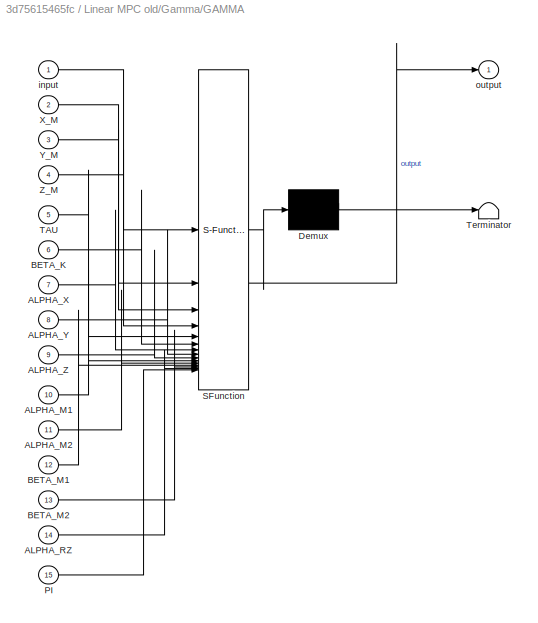
BLOCK [SubSystem] Linear MPC old/Gamma/GAMMA
  ErrorFcn = Stateflow.Translate.translate
  LibrarySourceBlock = simulink/User-Defined\nFunctions/MATLAB Function
  PermitHierarchicalResolution = ExplicitOnly
  SFBlockType = MATLAB Function
  TreatAsAtomicUnit = on
BLOCK [Demux] Linear MPC old/Gamma/GAMMA/ Demux 
  Outputs = 1
BLOCK [S-Function] Linear MPC old/Gamma/GAMMA/ SFunction 
  EnableBusSupport = on
  FunctionName = sf_sfun
  PortCounts = [15 2]
  SFcnIsStateOwnerBlock = off
  SFunctionDeploymentMode = off
  Tag = Stateflow S-Function 3
BLOCK [Terminator] Linear MPC old/Gamma/GAMMA/ Terminator 
BLOCK [Inport] Linear MPC old/Gamma/GAMMA/ALPHA_M1
  Port = 10
BLOCK [Inport] Linear MPC old/Gamma/GAMMA/ALPHA_M2
  Port = 11
BLOCK [Inport] Linear MPC old/Gamma/GAMMA/ALPHA_RZ
  Port = 14
BLOCK [Inport] Linear MPC old/Gamma/GAMMA/ALPHA_X
  Port = 7
BLOCK [Inport] Linear MPC old/Gamma/GAMMA/ALPHA_Y
  Port = 8
BLOCK [Inport] Linear MPC old/Gamma/GAMMA/ALPHA_Z
  Port = 9
BLOCK [Inport] Linear MPC old/Gamma/GAMMA/BETA_K
  Port = 6
BLOCK [Inport] Linear MPC old/Gamma/GAMMA/BETA_M1
  Port = 12
BLOCK [Inport] Linear MPC old/Gamma/GAMMA/BETA_M2
  Port = 13
BLOCK [Inport] Linear MPC old/Gamma/GAMMA/PI
  Port = 15
BLOCK [Inport] Linear MPC old/Gamma/GAMMA/TAU
  Port = 5
BLOCK [Inport] Linear MPC old/Gamma/GAMMA/X_M
  Port = 2
BLOCK [Inport] Linear MPC old/Gamma/GAMMA/Y_M
  Port = 3
BLOCK [Inport] Linear MPC old/Gamma/GAMMA/Z_M
  Port = 4
BLOCK [Inport] Linear MPC old/Gamma/GAMMA/input
BLOCK [Outport] Linear MPC old/Gamma/GAMMA/output
BLOCK [Scope] Linear MPC old/Gamma/Scope
  Floating = off
  NumInputPorts = 1
BLOCK [Inport] Linear MPC old/Gamma/input
BLOCK [Outport] Linear MPC old/Gamma/net_wrench
BLOCK [Inport] Linear MPC old/Gamma/x_m
  Port = 2
BLOCK [Inport] Linear MPC old/Gamma/y_m
  Port = 3
BLOCK [SubSystem] Linear MPC old/MATLAB Function
  ErrorFcn = Stateflow.Translate.translate
  LibrarySourceBlock = simulink/User-Defined\nFunctions/MATLAB Function
  PermitHierarchicalResolution = ExplicitOnly
  SFBlockType = MATLAB Function
  TreatAsAtomicUnit = on
BLOCK [Demux] Linear MPC old/MATLAB Function/ Demux 
  Outputs = 1
BLOCK [S-Function] Linear MPC old/MATLAB Function/ SFunction 
  EnableBusSupport = on
  FunctionName = sf_sfun
  PortCounts = [2 3]
  SFcnIsStateOwnerBlock = off
  SFunctionDeploymentMode = off
  Tag = Stateflow S-Function 4
BLOCK [Terminator] Linear MPC old/MATLAB Function/ Terminator 
BLOCK [Inport] Linear MPC old/MATLAB Function/u
BLOCK [Inport] Linear MPC old/MATLAB Function/x
  Port = 2
BLOCK [Outport] Linear MPC old/MATLAB Function/xdot
BLOCK [Outport] Linear MPC old/MATLAB Function/y
  Port = 2
BLOCK [Reference] Linear MPC old/MPC Controller  REF=mpclib/MPC Controller  (lib defined in mdl_ae329e0e0455)
  SCDEnableBlockLinearizationSpecification = on
  SourceBlock = mpclib/MPC Controller
  SourceType = MPC
BLOCK [Mux] Linear MPC old/Mux2
  DisplayOption = bar
  Inputs = 6
BLOCK [SubSystem] Linear MPC old/PINV
BLOCK [Constant] Linear MPC old/PINV/Constant1
  Value = -0.0715
BLOCK [Constant] Linear MPC old/PINV/Constant10
  Value = 3.9021
BLOCK [Constant] Linear MPC old/PINV/Constant11
  Value = 0.0508
BLOCK [Constant] Linear MPC old/PINV/Constant12
  Value = 0.015
BLOCK [Constant] Linear MPC old/PINV/Constant2
  Value = 3.14159265
BLOCK [Constant] Linear MPC old/PINV/Constant3
  Value = -0.0203
BLOCK [Constant] Linear MPC old/PINV/Constant4
  Value = -0.0146
BLOCK [Constant] Linear MPC old/PINV/Constant5
  Value = -0.123
BLOCK [Constant] Linear MPC old/PINV/Constant6
  Value = -0.1046
BLOCK [Constant] Linear MPC old/PINV/Constant7
  Value = -87.14
BLOCK [Constant] Linear MPC old/PINV/Constant8
  Value = 5.5209
BLOCK [Constant] Linear MPC old/PINV/Constant9
  Value = 3.9021
BLOCK [Outport] Linear MPC old/PINV/Current
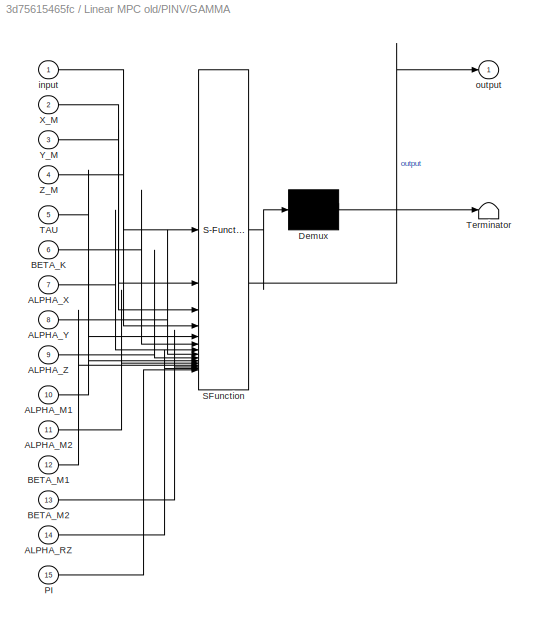
BLOCK [SubSystem] Linear MPC old/PINV/GAMMA
  ErrorFcn = Stateflow.Translate.translate
  LibrarySourceBlock = simulink/User-Defined\nFunctions/MATLAB Function
  PermitHierarchicalResolution = ExplicitOnly
  SFBlockType = MATLAB Function
  TreatAsAtomicUnit = on
BLOCK [Demux] Linear MPC old/PINV/GAMMA/ Demux 
  Outputs = 1
BLOCK [S-Function] Linear MPC old/PINV/GAMMA/ SFunction 
  EnableBusSupport = on
  FunctionName = sf_sfun
  PortCounts = [15 2]
  SFcnIsStateOwnerBlock = off
  SFunctionDeploymentMode = off
  Tag = Stateflow S-Function 5
BLOCK [Terminator] Linear MPC old/PINV/GAMMA/ Terminator 
BLOCK [Inport] Linear MPC old/PINV/GAMMA/ALPHA_M1
  Port = 10
BLOCK [Inport] Linear MPC old/PINV/GAMMA/ALPHA_M2
  Port = 11
BLOCK [Inport] Linear MPC old/PINV/GAMMA/ALPHA_RZ
  Port = 14
BLOCK [Inport] Linear MPC old/PINV/GAMMA/ALPHA_X
  Port = 7
BLOCK [Inport] Linear MPC old/PINV/GAMMA/ALPHA_Y
  Port = 8
BLOCK [Inport] Linear MPC old/PINV/GAMMA/ALPHA_Z
  Port = 9
BLOCK [Inport] Linear MPC old/PINV/GAMMA/BETA_K
  Port = 6
BLOCK [Inport] Linear MPC old/PINV/GAMMA/BETA_M1
  Port = 12
BLOCK [Inport] Linear MPC old/PINV/GAMMA/BETA_M2
  Port = 13
BLOCK [Inport] Linear MPC old/PINV/GAMMA/PI
  Port = 15
BLOCK [Inport] Linear MPC old/PINV/GAMMA/TAU
  Port = 5
BLOCK [Inport] Linear MPC old/PINV/GAMMA/X_M
  Port = 2
BLOCK [Inport] Linear MPC old/PINV/GAMMA/Y_M
  Port = 3
BLOCK [Inport] Linear MPC old/PINV/GAMMA/Z_M
  Port = 4
BLOCK [Inport] Linear MPC old/PINV/GAMMA/input
BLOCK [Outport] Linear MPC old/PINV/GAMMA/output
BLOCK [Scope] Linear MPC old/PINV/Scope
  Floating = off
  NumInputPorts = 1
BLOCK [Inport] Linear MPC old/PINV/input
BLOCK [Inport] Linear MPC old/PINV/x_m
  Port = 2
BLOCK [Inport] Linear MPC old/PINV/y_m
  Port = 3
BLOCK [Scope] Linear MPC old/Scope
  Floating = off
  NumInputPorts = 1
  ScopeSpecificationString = Simulink.scopes.TimeScopeBlockCfg('CurrentConfiguration', extmgr.ConfigurationSet(extmgr.Configuration('Core','General UI',true),extmgr.Configuration('Core','Source UI',true),extmgr.Configuration('Sources','WiredSimulink',true,'DataLoggingVariableName','ScopeData2'),extmgr.Configuration('Visuals','Time Domain',true,'SerializedDisplays',{struct('MinYLimReal','-0.00014','MaxYLimReal','0.00116','YLab...<+1546ch>
BLOCK [Scope] Linear MPC old/Scope1
  Floating = off
  NumInputPorts = 1
  ScopeSpecificationString = Simulink.scopes.TimeScopeBlockCfg('CurrentConfiguration', extmgr.ConfigurationSet(extmgr.Configuration('Core','General UI',true),extmgr.Configuration('Core','Source UI',true),extmgr.Configuration('Sources','WiredSimulink',true,'DataLoggingVariableName','ScopeData3'),extmgr.Configuration('Visuals','Time Domain',true),extmgr.Configuration('Tools','Plot Navigation',true),extmgr.Configuration('Tools',...<+40ch>
BLOCK [Step] Linear MPC old/Step
  After = 0.1
  SampleTime = 0
BLOCK [Terminator] Linear MPC old/Terminator
BLOCK [Terminator] Linear MPC old/Terminator1
BLOCK [Terminator] Linear MPC old/Terminator2
BLOCK [Terminator] Linear MPC old/Terminator3
BLOCK [UnitDelay] Linear MPC old/Unit Delay1
  HasFrameUpgradeWarning = on
  InitialCondition = [0;0;0;0;0;0]
  SampleTime = -1
BLOCK [Demux] Linear MPC/Demux
  Commented = on
  Outputs = 12
BLOCK [SubSystem] Linear MPC/MLPM Plant1
  Commented = on
BLOCK [SubSystem] Linear MPC/MLPM Plant1/Gamma
BLOCK [Constant] Linear MPC/MLPM Plant1/Gamma/Constant1
  Value = -0.0715
BLOCK [Constant] Linear MPC/MLPM Plant1/Gamma/Constant10
  Value = 3.9021
BLOCK [Constant] Linear MPC/MLPM Plant1/Gamma/Constant11
  Value = 0.0508
BLOCK [Constant] Linear MPC/MLPM Plant1/Gamma/Constant2
  Value = 3.14159265
BLOCK [Constant] Linear MPC/MLPM Plant1/Gamma/Constant3
  Value = -0.0203
BLOCK [Constant] Linear MPC/MLPM Plant1/Gamma/Constant4
  Value = -0.0146
BLOCK [Constant] Linear MPC/MLPM Plant1/Gamma/Constant5
  Value = -0.123
BLOCK [Constant] Linear MPC/MLPM Plant1/Gamma/Constant6
  Value = -0.1046
BLOCK [Constant] Linear MPC/MLPM Plant1/Gamma/Constant7
  Value = -87.14
BLOCK [Constant] Linear MPC/MLPM Plant1/Gamma/Constant8
  Value = 5.5209
BLOCK [Constant] Linear MPC/MLPM Plant1/Gamma/Constant9
  Value = 3.9021
BLOCK [SubSystem] Linear MPC/MLPM Plant1/Gamma/GAMMA
  ErrorFcn = Stateflow.Translate.translate
  LibrarySourceBlock = simulink/User-Defined\nFunctions/MATLAB Function
  PermitHierarchicalResolution = ExplicitOnly
  SFBlockType = MATLAB Function
  TreatAsAtomicUnit = on
BLOCK [Demux] Linear MPC/MLPM Plant1/Gamma/GAMMA/ Demux 
  Outputs = 1
BLOCK [S-Function] Linear MPC/MLPM Plant1/Gamma/GAMMA/ SFunction 
  EnableBusSupport = on
  FunctionName = sf_sfun
  PortCounts = [13 2]
  SFcnIsStateOwnerBlock = off
  SFunctionDeploymentMode = off
  Tag = Stateflow S-Function 23
BLOCK [Terminator] Linear MPC/MLPM Plant1/Gamma/GAMMA/ Terminator 
BLOCK [Inport] Linear MPC/MLPM Plant1/Gamma/GAMMA/ALPHA_M1
  Port = 8
BLOCK [Inport] Linear MPC/MLPM Plant1/Gamma/GAMMA/ALPHA_M2
  Port = 9
BLOCK [Inport] Linear MPC/MLPM Plant1/Gamma/GAMMA/ALPHA_RZ
  Port = 12
BLOCK [Inport] Linear MPC/MLPM Plant1/Gamma/GAMMA/ALPHA_X
  Port = 5
BLOCK [Inport] Linear MPC/MLPM Plant1/Gamma/GAMMA/ALPHA_Y
  Port = 6
BLOCK [Inport] Linear MPC/MLPM Plant1/Gamma/GAMMA/ALPHA_Z
  Port = 7
BLOCK [Inport] Linear MPC/MLPM Plant1/Gamma/GAMMA/BETA_K
  Port = 4
BLOCK [Inport] Linear MPC/MLPM Plant1/Gamma/GAMMA/BETA_M1
  Port = 10
BLOCK [Inport] Linear MPC/MLPM Plant1/Gamma/GAMMA/BETA_M2
  Port = 11
BLOCK [Inport] Linear MPC/MLPM Plant1/Gamma/GAMMA/PI
  Port = 13
BLOCK [Inport] Linear MPC/MLPM Plant1/Gamma/GAMMA/TAU
  Port = 3
BLOCK [Inport] Linear MPC/MLPM Plant1/Gamma/GAMMA/input
BLOCK [Outport] Linear MPC/MLPM Plant1/Gamma/GAMMA/output
BLOCK [Inport] Linear MPC/MLPM Plant1/Gamma/GAMMA/position
  Port = 2
BLOCK [Scope] Linear MPC/MLPM Plant1/Gamma/Scope
  Floating = off
  NumInputPorts = 1
BLOCK [Inport] Linear MPC/MLPM Plant1/Gamma/input
BLOCK [Outport] Linear MPC/MLPM Plant1/Gamma/net_wrench
BLOCK [Inport] Linear MPC/MLPM Plant1/Gamma/position
  Port = 2
BLOCK [Constant] Linear MPC/MLPM Plant1/Gravity
  Value = [0;0;-647.2369;0;0;0]
BLOCK [SubSystem] Linear MPC/MLPM Plant1/MATLAB Function
  ErrorFcn = Stateflow.Translate.translate
  LibrarySourceBlock = simulink/User-Defined\nFunctions/MATLAB Function
  PermitHierarchicalResolution = ExplicitOnly
  SFBlockType = MATLAB Function
  TreatAsAtomicUnit = on
BLOCK [Demux] Linear MPC/MLPM Plant1/MATLAB Function/ Demux 
  Outputs = 1
BLOCK [S-Function] Linear MPC/MLPM Plant1/MATLAB Function/ SFunction 
  EnableBusSupport = on
  FunctionName = sf_sfun
  PortCounts = [2 3]
  SFcnIsStateOwnerBlock = off
  SFunctionDeploymentMode = off
  Tag = Stateflow S-Function 24
BLOCK [Terminator] Linear MPC/MLPM Plant1/MATLAB Function/ Terminator 
BLOCK [Inport] Linear MPC/MLPM Plant1/MATLAB Function/u
BLOCK [Inport] Linear MPC/MLPM Plant1/MATLAB Function/x
  Port = 2
BLOCK [Outport] Linear MPC/MLPM Plant1/MATLAB Function/xdot
BLOCK [Outport] Linear MPC/MLPM Plant1/MATLAB Function/y
  Port = 2
BLOCK [Inport] Linear MPC/MLPM Plant1/PID Control effort
BLOCK [Outport] Linear MPC/MLPM Plant1/PID Net Wrench
BLOCK [Outport] Linear MPC/MLPM Plant1/PID Position and Orientation
  Port = 3
BLOCK [Outport] Linear MPC/MLPM Plant1/PID states
  Port = 2
BLOCK [SubSystem] Linear MPC/MLPM Plant1/PINV
BLOCK [Constant] Linear MPC/MLPM Plant1/PINV/Constant1
  Value = -0.0715
BLOCK [Constant] Linear MPC/MLPM Plant1/PINV/Constant10
  Value = 3.9021
BLOCK [Constant] Linear MPC/MLPM Plant1/PINV/Constant11
  Value = 0.0508
BLOCK [Constant] Linear MPC/MLPM Plant1/PINV/Constant2
  Value = 3.14159265
BLOCK [Constant] Linear MPC/MLPM Plant1/PINV/Constant3
  Value = -0.0203
BLOCK [Constant] Linear MPC/MLPM Plant1/PINV/Constant4
  Value = -0.0146
BLOCK [Constant] Linear MPC/MLPM Plant1/PINV/Constant5
  Value = -0.123
BLOCK [Constant] Linear MPC/MLPM Plant1/PINV/Constant6
  Value = -0.1046
BLOCK [Constant] Linear MPC/MLPM Plant1/PINV/Constant7
  Value = -87.14
BLOCK [Constant] Linear MPC/MLPM Plant1/PINV/Constant8
  Value = 5.5209
BLOCK [Constant] Linear MPC/MLPM Plant1/PINV/Constant9
  Value = 3.9021
BLOCK [Outport] Linear MPC/MLPM Plant1/PINV/Current
BLOCK [SubSystem] Linear MPC/MLPM Plant1/PINV/GAMMA
  ErrorFcn = Stateflow.Translate.translate
  LibrarySourceBlock = simulink/User-Defined\nFunctions/MATLAB Function
  PermitHierarchicalResolution = ExplicitOnly
  SFBlockType = MATLAB Function
  TreatAsAtomicUnit = on
BLOCK [Demux] Linear MPC/MLPM Plant1/PINV/GAMMA/ Demux 
  Outputs = 1
BLOCK [S-Function] Linear MPC/MLPM Plant1/PINV/GAMMA/ SFunction 
  EnableBusSupport = on
  FunctionName = sf_sfun
  PortCounts = [13 2]
  SFcnIsStateOwnerBlock = off
  SFunctionDeploymentMode = off
  Tag = Stateflow S-Function 25
BLOCK [Terminator] Linear MPC/MLPM Plant1/PINV/GAMMA/ Terminator 
BLOCK [Inport] Linear MPC/MLPM Plant1/PINV/GAMMA/ALPHA_M1
  Port = 8
BLOCK [Inport] Linear MPC/MLPM Plant1/PINV/GAMMA/ALPHA_M2
  Port = 9
BLOCK [Inport] Linear MPC/MLPM Plant1/PINV/GAMMA/ALPHA_RZ
  Port = 12
BLOCK [Inport] Linear MPC/MLPM Plant1/PINV/GAMMA/ALPHA_X
  Port = 5
BLOCK [Inport] Linear MPC/MLPM Plant1/PINV/GAMMA/ALPHA_Y
  Port = 6
BLOCK [Inport] Linear MPC/MLPM Plant1/PINV/GAMMA/ALPHA_Z
  Port = 7
BLOCK [Inport] Linear MPC/MLPM Plant1/PINV/GAMMA/BETA_K
  Port = 4
BLOCK [Inport] Linear MPC/MLPM Plant1/PINV/GAMMA/BETA_M1
  Port = 10
BLOCK [Inport] Linear MPC/MLPM Plant1/PINV/GAMMA/BETA_M2
  Port = 11
BLOCK [Inport] Linear MPC/MLPM Plant1/PINV/GAMMA/PI
  Port = 13
BLOCK [Inport] Linear MPC/MLPM Plant1/PINV/GAMMA/TAU
  Port = 3
BLOCK [Inport] Linear MPC/MLPM Plant1/PINV/GAMMA/input
BLOCK [Outport] Linear MPC/MLPM Plant1/PINV/GAMMA/output
BLOCK [Inport] Linear MPC/MLPM Plant1/PINV/GAMMA/position
  Port = 2
BLOCK [Scope] Linear MPC/MLPM Plant1/PINV/Scope
  Floating = off
  NumInputPorts = 1
BLOCK [Inport] Linear MPC/MLPM Plant1/PINV/input
BLOCK [Inport] Linear MPC/MLPM Plant1/PINV/position
  Port = 2
BLOCK [Sum] Linear MPC/MLPM Plant1/Sum1
  Inputs = ++|
BLOCK [Inport] Linear MPC/MLPM Plant1/position
  Port = 2
BLOCK [Reference] Linear MPC/MPC Controller  REF=mpclib/MPC Controller  (lib defined in mdl_ae329e0e0455)
  SCDEnableBlockLinearizationSpecification = on
  SourceBlock = mpclib/MPC Controller
  SourceType = MPC
BLOCK [Mux] Linear MPC/Mux
  Commented = on
  DisplayOption = bar
  Inputs = 6
BLOCK [Mux] Linear MPC/Mux2
  DisplayOption = bar
  Inputs = 6
BLOCK [Scope] Linear MPC/Scope
  Floating = off
  NumInputPorts = 1
BLOCK [Scope] Linear MPC/Scope1
  Floating = off
  NumInputPorts = 1
BLOCK [Step] Linear MPC/Step
  SampleTime = 0
  Time = 0
BLOCK [SubSystem] Linear MPC/Subsystem
BLOCK [SubSystem] Linear MPC/Subsystem/Gamma
BLOCK [Constant] Linear MPC/Subsystem/Gamma/Constant1
  Value = -0.0715
BLOCK [Constant] Linear MPC/Subsystem/Gamma/Constant10
  Value = 3.9021
BLOCK [Constant] Linear MPC/Subsystem/Gamma/Constant11
  Value = 0.0508
BLOCK [Constant] Linear MPC/Subsystem/Gamma/Constant2
  Value = 3.14159265
BLOCK [Constant] Linear MPC/Subsystem/Gamma/Constant3
  Value = -0.0203
BLOCK [Constant] Linear MPC/Subsystem/Gamma/Constant4
  Value = -0.0146
BLOCK [Constant] Linear MPC/Subsystem/Gamma/Constant5
  Value = -0.123
BLOCK [Constant] Linear MPC/Subsystem/Gamma/Constant6
  Value = -0.1046
BLOCK [Constant] Linear MPC/Subsystem/Gamma/Constant7
  Value = -87.14
BLOCK [Constant] Linear MPC/Subsystem/Gamma/Constant8
  Value = 5.5209
BLOCK [Constant] Linear MPC/Subsystem/Gamma/Constant9
  Value = 3.9021
BLOCK [SubSystem] Linear MPC/Subsystem/Gamma/GAMMA
  ErrorFcn = Stateflow.Translate.translate
  LibrarySourceBlock = simulink/User-Defined\nFunctions/MATLAB Function
  PermitHierarchicalResolution = ExplicitOnly
  SFBlockType = MATLAB Function
  TreatAsAtomicUnit = on
BLOCK [Demux] Linear MPC/Subsystem/Gamma/GAMMA/ Demux 
  Outputs = 1
BLOCK [S-Function] Linear MPC/Subsystem/Gamma/GAMMA/ SFunction 
  EnableBusSupport = on
  FunctionName = sf_sfun
  PortCounts = [13 2]
  SFcnIsStateOwnerBlock = off
  SFunctionDeploymentMode = off
  Tag = Stateflow S-Function 26
BLOCK [Terminator] Linear MPC/Subsystem/Gamma/GAMMA/ Terminator 
BLOCK [Inport] Linear MPC/Subsystem/Gamma/GAMMA/ALPHA_M1
  Port = 8
BLOCK [Inport] Linear MPC/Subsystem/Gamma/GAMMA/ALPHA_M2
  Port = 9
BLOCK [Inport] Linear MPC/Subsystem/Gamma/GAMMA/ALPHA_RZ
  Port = 12
BLOCK [Inport] Linear MPC/Subsystem/Gamma/GAMMA/ALPHA_X
  Port = 5
BLOCK [Inport] Linear MPC/Subsystem/Gamma/GAMMA/ALPHA_Y
  Port = 6
BLOCK [Inport] Linear MPC/Subsystem/Gamma/GAMMA/ALPHA_Z
  Port = 7
BLOCK [Inport] Linear MPC/Subsystem/Gamma/GAMMA/BETA_K
  Port = 4
BLOCK [Inport] Linear MPC/Subsystem/Gamma/GAMMA/BETA_M1
  Port = 10
BLOCK [Inport] Linear MPC/Subsystem/Gamma/GAMMA/BETA_M2
  Port = 11
BLOCK [Inport] Linear MPC/Subsystem/Gamma/GAMMA/PI
  Port = 13
BLOCK [Inport] Linear MPC/Subsystem/Gamma/GAMMA/TAU
  Port = 3
BLOCK [Inport] Linear MPC/Subsystem/Gamma/GAMMA/input
BLOCK [Outport] Linear MPC/Subsystem/Gamma/GAMMA/output
BLOCK [Inport] Linear MPC/Subsystem/Gamma/GAMMA/position
  Port = 2
BLOCK [Scope] Linear MPC/Subsystem/Gamma/Scope
  Floating = off
  NumInputPorts = 1
BLOCK [Inport] Linear MPC/Subsystem/Gamma/input
BLOCK [Outport] Linear MPC/Subsystem/Gamma/net_wrench
BLOCK [Inport] Linear MPC/Subsystem/Gamma/position
  Port = 2
BLOCK [Integrator] Linear MPC/Subsystem/Integrator
  InitialCondition = [0;0;0;0;0;0;0;0;0;0;0;0]
  LimitOutput = on
  LowerSaturationLimit = -5
  UpperSaturationLimit = 5
BLOCK [SubSystem] Linear MPC/Subsystem/MATLAB Function
  ErrorFcn = Stateflow.Translate.translate
  LibrarySourceBlock = simulink/User-Defined\nFunctions/MATLAB Function
  PermitHierarchicalResolution = ExplicitOnly
  SFBlockType = MATLAB Function
  TreatAsAtomicUnit = on
BLOCK [Demux] Linear MPC/Subsystem/MATLAB Function/ Demux 
  Outputs = 1
BLOCK [S-Function] Linear MPC/Subsystem/MATLAB Function/ SFunction 
  EnableBusSupport = on
  FunctionName = sf_sfun
  PortCounts = [2 3]
  SFcnIsStateOwnerBlock = off
  SFunctionDeploymentMode = off
  Tag = Stateflow S-Function 27
BLOCK [Terminator] Linear MPC/Subsystem/MATLAB Function/ Terminator 
BLOCK [Inport] Linear MPC/Subsystem/MATLAB Function/u
BLOCK [Inport] Linear MPC/Subsystem/MATLAB Function/x
  Port = 2
BLOCK [Outport] Linear MPC/Subsystem/MATLAB Function/xdot
BLOCK [Outport] Linear MPC/Subsystem/MATLAB Function/y
  Port = 2
BLOCK [Outport] Linear MPC/Subsystem/Open Loop Net Wrench
BLOCK [Outport] Linear MPC/Subsystem/Open Loop Position and Orientation
  Port = 3
BLOCK [Inport] Linear MPC/Subsystem/Open Loop effort
BLOCK [Outport] Linear MPC/Subsystem/Open Loop states
  Port = 2
BLOCK [SubSystem] Linear MPC/Subsystem/PINV
BLOCK [Constant] Linear MPC/Subsystem/PINV/Constant1
  Value = -0.0715
BLOCK [Constant] Linear MPC/Subsystem/PINV/Constant10
  Value = 3.9021
BLOCK [Constant] Linear MPC/Subsystem/PINV/Constant11
  Value = 0.0508
BLOCK [Constant] Linear MPC/Subsystem/PINV/Constant2
  Value = 3.14159265
BLOCK [Constant] Linear MPC/Subsystem/PINV/Constant3
  Value = -0.0203
BLOCK [Constant] Linear MPC/Subsystem/PINV/Constant4
  Value = -0.0146
BLOCK [Constant] Linear MPC/Subsystem/PINV/Constant5
  Value = -0.123
BLOCK [Constant] Linear MPC/Subsystem/PINV/Constant6
  Value = -0.1046
BLOCK [Constant] Linear MPC/Subsystem/PINV/Constant7
  Value = -87.14
BLOCK [Constant] Linear MPC/Subsystem/PINV/Constant8
  Value = 5.5209
BLOCK [Constant] Linear MPC/Subsystem/PINV/Constant9
  Value = 3.9021
BLOCK [Outport] Linear MPC/Subsystem/PINV/Current
BLOCK [SubSystem] Linear MPC/Subsystem/PINV/GAMMA
  ErrorFcn = Stateflow.Translate.translate
  LibrarySourceBlock = simulink/User-Defined\nFunctions/MATLAB Function
  PermitHierarchicalResolution = ExplicitOnly
  SFBlockType = MATLAB Function
  TreatAsAtomicUnit = on
BLOCK [Demux] Linear MPC/Subsystem/PINV/GAMMA/ Demux 
  Outputs = 1
BLOCK [S-Function] Linear MPC/Subsystem/PINV/GAMMA/ SFunction 
  EnableBusSupport = on
  FunctionName = sf_sfun
  PortCounts = [13 2]
  SFcnIsStateOwnerBlock = off
  SFunctionDeploymentMode = off
  Tag = Stateflow S-Function 28
BLOCK [Terminator] Linear MPC/Subsystem/PINV/GAMMA/ Terminator 
BLOCK [Inport] Linear MPC/Subsystem/PINV/GAMMA/ALPHA_M1
  Port = 8
BLOCK [Inport] Linear MPC/Subsystem/PINV/GAMMA/ALPHA_M2
  Port = 9
BLOCK [Inport] Linear MPC/Subsystem/PINV/GAMMA/ALPHA_RZ
  Port = 12
BLOCK [Inport] Linear MPC/Subsystem/PINV/GAMMA/ALPHA_X
  Port = 5
BLOCK [Inport] Linear MPC/Subsystem/PINV/GAMMA/ALPHA_Y
  Port = 6
BLOCK [Inport] Linear MPC/Subsystem/PINV/GAMMA/ALPHA_Z
  Port = 7
BLOCK [Inport] Linear MPC/Subsystem/PINV/GAMMA/BETA_K
  Port = 4
BLOCK [Inport] Linear MPC/Subsystem/PINV/GAMMA/BETA_M1
  Port = 10
BLOCK [Inport] Linear MPC/Subsystem/PINV/GAMMA/BETA_M2
  Port = 11
BLOCK [Inport] Linear MPC/Subsystem/PINV/GAMMA/PI
  Port = 13
BLOCK [Inport] Linear MPC/Subsystem/PINV/GAMMA/TAU
  Port = 3
BLOCK [Inport] Linear MPC/Subsystem/PINV/GAMMA/input
BLOCK [Outport] Linear MPC/Subsystem/PINV/GAMMA/output
BLOCK [Inport] Linear MPC/Subsystem/PINV/GAMMA/position
  Port = 2
BLOCK [Scope] Linear MPC/Subsystem/PINV/Scope
  Floating = off
  NumInputPorts = 1
BLOCK [Inport] Linear MPC/Subsystem/PINV/input
BLOCK [Inport] Linear MPC/Subsystem/PINV/position
  Port = 2
BLOCK [Inport] Linear MPC/Subsystem/position
  Port = 2
BLOCK [SubSystem] Linear_MPC
  Commented = on
BLOCK [Integrator] Linear_MPC/Integrator
  InitialCondition = [0;0;0;0;0;0]
  LimitOutput = on
  LowerSaturationLimit = -5
  UpperSaturationLimit = 5
BLOCK [SubSystem] Linear_MPC/MLPM Plant
BLOCK [SubSystem] Linear_MPC/MLPM Plant/Gamma
BLOCK [Constant] Linear_MPC/MLPM Plant/Gamma/Constant1
  Value = -0.0715
BLOCK [Constant] Linear_MPC/MLPM Plant/Gamma/Constant10
  Value = 3.9021
BLOCK [Constant] Linear_MPC/MLPM Plant/Gamma/Constant11
  Value = 0.0508
BLOCK [Constant] Linear_MPC/MLPM Plant/Gamma/Constant2
  Value = 3.14159265
BLOCK [Constant] Linear_MPC/MLPM Plant/Gamma/Constant3
  Value = -0.0203
BLOCK [Constant] Linear_MPC/MLPM Plant/Gamma/Constant4
  Value = -0.0146
BLOCK [Constant] Linear_MPC/MLPM Plant/Gamma/Constant5
  Value = -0.123
BLOCK [Constant] Linear_MPC/MLPM Plant/Gamma/Constant6
  Value = -0.1046
BLOCK [Constant] Linear_MPC/MLPM Plant/Gamma/Constant7
  Value = -87.14
BLOCK [Constant] Linear_MPC/MLPM Plant/Gamma/Constant8
  Value = 5.5209
BLOCK [Constant] Linear_MPC/MLPM Plant/Gamma/Constant9
  Value = 3.9021
BLOCK [SubSystem] Linear_MPC/MLPM Plant/Gamma/GAMMA
  ErrorFcn = Stateflow.Translate.translate
  LibrarySourceBlock = simulink/User-Defined\nFunctions/MATLAB Function
  PermitHierarchicalResolution = ExplicitOnly
  SFBlockType = MATLAB Function
  TreatAsAtomicUnit = on
BLOCK [Demux] Linear_MPC/MLPM Plant/Gamma/GAMMA/ Demux 
  Outputs = 1
BLOCK [S-Function] Linear_MPC/MLPM Plant/Gamma/GAMMA/ SFunction 
  EnableBusSupport = on
  FunctionName = sf_sfun
  PortCounts = [13 2]
  SFcnIsStateOwnerBlock = off
  SFunctionDeploymentMode = off
  Tag = Stateflow S-Function 13
BLOCK [Terminator] Linear_MPC/MLPM Plant/Gamma/GAMMA/ Terminator 
BLOCK [Inport] Linear_MPC/MLPM Plant/Gamma/GAMMA/ALPHA_M1
  Port = 8
BLOCK [Inport] Linear_MPC/MLPM Plant/Gamma/GAMMA/ALPHA_M2
  Port = 9
BLOCK [Inport] Linear_MPC/MLPM Plant/Gamma/GAMMA/ALPHA_RZ
  Port = 12
BLOCK [Inport] Linear_MPC/MLPM Plant/Gamma/GAMMA/ALPHA_X
  Port = 5
BLOCK [Inport] Linear_MPC/MLPM Plant/Gamma/GAMMA/ALPHA_Y
  Port = 6
BLOCK [Inport] Linear_MPC/MLPM Plant/Gamma/GAMMA/ALPHA_Z
  Port = 7
BLOCK [Inport] Linear_MPC/MLPM Plant/Gamma/GAMMA/BETA_K
  Port = 4
BLOCK [Inport] Linear_MPC/MLPM Plant/Gamma/GAMMA/BETA_M1
  Port = 10
BLOCK [Inport] Linear_MPC/MLPM Plant/Gamma/GAMMA/BETA_M2
  Port = 11
BLOCK [Inport] Linear_MPC/MLPM Plant/Gamma/GAMMA/PI
  Port = 13
BLOCK [Inport] Linear_MPC/MLPM Plant/Gamma/GAMMA/TAU
  Port = 3
BLOCK [Inport] Linear_MPC/MLPM Plant/Gamma/GAMMA/input
BLOCK [Outport] Linear_MPC/MLPM Plant/Gamma/GAMMA/output
BLOCK [Inport] Linear_MPC/MLPM Plant/Gamma/GAMMA/position
  Port = 2
BLOCK [Scope] Linear_MPC/MLPM Plant/Gamma/Scope
  Floating = off
  NumInputPorts = 1
BLOCK [Inport] Linear_MPC/MLPM Plant/Gamma/input
BLOCK [Outport] Linear_MPC/MLPM Plant/Gamma/net_wrench
BLOCK [Inport] Linear_MPC/MLPM Plant/Gamma/position
  Port = 2
BLOCK [SubSystem] Linear_MPC/MLPM Plant/MATLAB Function
  ErrorFcn = Stateflow.Translate.translate
  LibrarySourceBlock = simulink/User-Defined\nFunctions/MATLAB Function
  PermitHierarchicalResolution = ExplicitOnly
  SFBlockType = MATLAB Function
  TreatAsAtomicUnit = on
BLOCK [Demux] Linear_MPC/MLPM Plant/MATLAB Function/ Demux 
  Outputs = 1
BLOCK [S-Function] Linear_MPC/MLPM Plant/MATLAB Function/ SFunction 
  EnableBusSupport = on
  FunctionName = sf_sfun
  PortCounts = [2 3]
  SFcnIsStateOwnerBlock = off
  SFunctionDeploymentMode = off
  Tag = Stateflow S-Function 14
BLOCK [Terminator] Linear_MPC/MLPM Plant/MATLAB Function/ Terminator 
BLOCK [Inport] Linear_MPC/MLPM Plant/MATLAB Function/u
BLOCK [Inport] Linear_MPC/MLPM Plant/MATLAB Function/x
  Port = 2
BLOCK [Outport] Linear_MPC/MLPM Plant/MATLAB Function/xdot
BLOCK [Outport] Linear_MPC/MLPM Plant/MATLAB Function/y
  Port = 2
BLOCK [Inport] Linear_MPC/MLPM Plant/MPC Control effort
BLOCK [Outport] Linear_MPC/MLPM Plant/MPC Net Wrench
BLOCK [Outport] Linear_MPC/MLPM Plant/MPC Position and Orientation
  Port = 3
BLOCK [Outport] Linear_MPC/MLPM Plant/PID states
  Port = 2
BLOCK [SubSystem] Linear_MPC/MLPM Plant/PINV
BLOCK [Constant] Linear_MPC/MLPM Plant/PINV/Constant1
  Value = -0.0715
BLOCK [Constant] Linear_MPC/MLPM Plant/PINV/Constant10
  Value = 3.9021
BLOCK [Constant] Linear_MPC/MLPM Plant/PINV/Constant11
  Value = 0.0508
BLOCK [Constant] Linear_MPC/MLPM Plant/PINV/Constant2
  Value = 3.14159265
BLOCK [Constant] Linear_MPC/MLPM Plant/PINV/Constant3
  Value = -0.0203
BLOCK [Constant] Linear_MPC/MLPM Plant/PINV/Constant4
  Value = -0.0146
BLOCK [Constant] Linear_MPC/MLPM Plant/PINV/Constant5
  Value = -0.123
BLOCK [Constant] Linear_MPC/MLPM Plant/PINV/Constant6
  Value = -0.1046
BLOCK [Constant] Linear_MPC/MLPM Plant/PINV/Constant7
  Value = -87.14
BLOCK [Constant] Linear_MPC/MLPM Plant/PINV/Constant8
  Value = 5.5209
BLOCK [Constant] Linear_MPC/MLPM Plant/PINV/Constant9
  Value = 3.9021
BLOCK [Outport] Linear_MPC/MLPM Plant/PINV/Current
BLOCK [SubSystem] Linear_MPC/MLPM Plant/PINV/GAMMA
  ErrorFcn = Stateflow.Translate.translate
  LibrarySourceBlock = simulink/User-Defined\nFunctions/MATLAB Function
  PermitHierarchicalResolution = ExplicitOnly
  SFBlockType = MATLAB Function
  TreatAsAtomicUnit = on
BLOCK [Demux] Linear_MPC/MLPM Plant/PINV/GAMMA/ Demux 
  Outputs = 1
BLOCK [S-Function] Linear_MPC/MLPM Plant/PINV/GAMMA/ SFunction 
  EnableBusSupport = on
  FunctionName = sf_sfun
  PortCounts = [13 2]
  SFcnIsStateOwnerBlock = off
  SFunctionDeploymentMode = off
  Tag = Stateflow S-Function 15
BLOCK [Terminator] Linear_MPC/MLPM Plant/PINV/GAMMA/ Terminator 
BLOCK [Inport] Linear_MPC/MLPM Plant/PINV/GAMMA/ALPHA_M1
  Port = 8
BLOCK [Inport] Linear_MPC/MLPM Plant/PINV/GAMMA/ALPHA_M2
  Port = 9
BLOCK [Inport] Linear_MPC/MLPM Plant/PINV/GAMMA/ALPHA_RZ
  Port = 12
BLOCK [Inport] Linear_MPC/MLPM Plant/PINV/GAMMA/ALPHA_X
  Port = 5
BLOCK [Inport] Linear_MPC/MLPM Plant/PINV/GAMMA/ALPHA_Y
  Port = 6
BLOCK [Inport] Linear_MPC/MLPM Plant/PINV/GAMMA/ALPHA_Z
  Port = 7
BLOCK [Inport] Linear_MPC/MLPM Plant/PINV/GAMMA/BETA_K
  Port = 4
BLOCK [Inport] Linear_MPC/MLPM Plant/PINV/GAMMA/BETA_M1
  Port = 10
BLOCK [Inport] Linear_MPC/MLPM Plant/PINV/GAMMA/BETA_M2
  Port = 11
BLOCK [Inport] Linear_MPC/MLPM Plant/PINV/GAMMA/PI
  Port = 13
BLOCK [Inport] Linear_MPC/MLPM Plant/PINV/GAMMA/TAU
  Port = 3
BLOCK [Inport] Linear_MPC/MLPM Plant/PINV/GAMMA/input
BLOCK [Outport] Linear_MPC/MLPM Plant/PINV/GAMMA/output
BLOCK [Inport] Linear_MPC/MLPM Plant/PINV/GAMMA/position
  Port = 2
BLOCK [Scope] Linear_MPC/MLPM Plant/PINV/Scope
  Floating = off
  NumInputPorts = 1
BLOCK [Inport] Linear_MPC/MLPM Plant/PINV/input
BLOCK [Inport] Linear_MPC/MLPM Plant/PINV/position
  Port = 2
BLOCK [Inport] Linear_MPC/MLPM Plant/position
  Port = 2
BLOCK [Reference] Linear_MPC/MPC Controller  REF=mpclib/MPC Controller  (lib defined in mdl_ae329e0e0455)
  SCDEnableBlockLinearizationSpecification = on
  SourceBlock = mpclib/MPC Controller
  SourceType = MPC
BLOCK [Mux] Linear_MPC/Mux2
  DisplayOption = bar
  Inputs = 6
BLOCK [Scope] Linear_MPC/Scope
  Floating = off
  NumInputPorts = 1
  ScopeSpecificationString = Simulink.scopes.TimeScopeBlockCfg('CurrentConfiguration', extmgr.ConfigurationSet(extmgr.Configuration('Core','General UI',true),extmgr.Configuration('Core','Source UI',true),extmgr.Configuration('Sources','WiredSimulink',true),extmgr.Configuration('Visuals','Time Domain',true,'SerializedDisplays',{struct('MinYLimReal','-0.125','MaxYLimReal','1.125','YLabelReal','','MinYLimMag','0.00000','MaxYLimM...<+1493ch>
BLOCK [Scope] Linear_MPC/Scope1
  Floating = off
  NumInputPorts = 1
  ScopeSpecificationString = Simulink.scopes.TimeScopeBlockCfg('CurrentConfiguration', extmgr.ConfigurationSet(extmgr.Configuration('Core','General UI',true),extmgr.Configuration('Core','Source UI',true),extmgr.Configuration('Sources','WiredSimulink',true,'DataLoggingVariableName','ScopeData1'),extmgr.Configuration('Visuals','Time Domain',true,'SerializedDisplays',{struct('MinYLimReal','-0.51907','MaxYLimReal','4.67161','YLab...<+1592ch>
BLOCK [Step] Linear_MPC/Step
  SampleTime = 0
BLOCK [UnitDelay] Linear_MPC/Unit Delay
  HasFrameUpgradeWarning = on
  InitialCondition = [0;0;0;0;0;0]
  SampleTime = -1
BLOCK [SubSystem] Mover Verification
BLOCK [Integrator] Mover Verification/Integrator
  InitialCondition = [0;0;0;0;0;0;0;0;0;0;0;0]
BLOCK [SubSystem] Mover Verification/MATLAB Function
  ErrorFcn = Stateflow.Translate.translate
  LibrarySourceBlock = simulink/User-Defined\nFunctions/MATLAB Function
  PermitHierarchicalResolution = ExplicitOnly
  SFBlockType = MATLAB Function
  TreatAsAtomicUnit = on
BLOCK [Demux] Mover Verification/MATLAB Function/ Demux 
  Outputs = 1
BLOCK [S-Function] Mover Verification/MATLAB Function/ SFunction 
  EnableBusSupport = on
  FunctionName = sf_sfun
  PortCounts = [2 3]
  SFcnIsStateOwnerBlock = off
  SFunctionDeploymentMode = off
  Tag = Stateflow S-Function 16
BLOCK [Terminator] Mover Verification/MATLAB Function/ Terminator 
BLOCK [Inport] Mover Verification/MATLAB Function/u
BLOCK [Inport] Mover Verification/MATLAB Function/x
  Port = 2
BLOCK [Outport] Mover Verification/MATLAB Function/xdot
BLOCK [Outport] Mover Verification/MATLAB Function/y
  Port = 2
BLOCK [Mux] Mover Verification/Mux2
  DisplayOption = bar
  Inputs = 6
BLOCK [Scope] Mover Verification/Scope
  Floating = off
  NumInputPorts = 1
  ScopeSpecificationString = Simulink.scopes.TimeScopeBlockCfg('CurrentConfiguration', extmgr.ConfigurationSet(extmgr.Configuration('Core','General UI',true),extmgr.Configuration('Core','Source UI',true),extmgr.Configuration('Sources','WiredSimulink',true,'DataLoggingVariableName','ScopeData1'),extmgr.Configuration('Visuals','Time Domain',true,'SerializedDisplays',{struct('MinYLimReal','-1.00000','MaxYLimReal','1.00000','YLab...<+1598ch>
BLOCK [Scope] Mover Verification/Scope1
  Floating = off
  NumInputPorts = 1
  ScopeSpecificationString = Simulink.scopes.TimeScopeBlockCfg('CurrentConfiguration', extmgr.ConfigurationSet(extmgr.Configuration('Core','General UI',true),extmgr.Configuration('Core','Source UI',true),extmgr.Configuration('Sources','WiredSimulink',true,'DataLoggingVariableName','ScopeData2'),extmgr.Configuration('Visuals','Time Domain',true,'SerializedDisplays',{struct('MinYLimReal','-13795.3125','MaxYLimReal','1532.8125',...<+1993ch>
BLOCK [Step] Mover Verification/Step
  After = 0
  SampleTime = 0
BLOCK [SubSystem] Open loop system
BLOCK [Mux] Open loop system/Mux2
  DisplayOption = bar
  Inputs = 6
BLOCK [Scope] Open loop system/Scope
  Floating = off
  NumInputPorts = 1
  ScopeSpecificationString = Simulink.scopes.TimeScopeBlockCfg('CurrentConfiguration', extmgr.ConfigurationSet(extmgr.Configuration('Core','General UI',true),extmgr.Configuration('Core','Source UI',true),extmgr.Configuration('Sources','WiredSimulink',true,'DataLoggingVariableName','ScopeData1'),extmgr.Configuration('Visuals','Time Domain',true,'SerializedDisplays',{struct('MinYLimReal','-728.26747','MaxYLimReal','82.03824','Y...<+1678ch>
BLOCK [Scope] Open loop system/Scope1
  Floating = off
  NumInputPorts = 1
  ScopeSpecificationString = Simulink.scopes.TimeScopeBlockCfg('CurrentConfiguration', extmgr.ConfigurationSet(extmgr.Configuration('Core','General UI',true),extmgr.Configuration('Core','Source UI',true),extmgr.Configuration('Sources','WiredSimulink',true,'DataLoggingVariableName','ScopeData2'),extmgr.Configuration('Visuals','Time Domain',true,'SerializedDisplays',{struct('MinYLimReal','-0.824','MaxYLimReal','0.14297','YLabel...<+1534ch>
BLOCK [Scope] Open loop system/Scope2
  Floating = off
  NumInputPorts = 1
  ScopeSpecificationString = Simulink.scopes.TimeScopeBlockCfg('CurrentConfiguration', extmgr.ConfigurationSet(extmgr.Configuration('Core','General UI',true),extmgr.Configuration('Core','Source UI',true),extmgr.Configuration('Sources','WiredSimulink',true,'DataLoggingVariableName','ScopeData3'),extmgr.Configuration('Visuals','Time Domain',true),extmgr.Configuration('Tools','Plot Navigation',true),extmgr.Configuration('Tools',...<+40ch>
BLOCK [Step] Open loop system/Step
  After = 0.1
  SampleTime = 0
BLOCK [SubSystem] Open loop system/Subsystem
BLOCK [SubSystem] Open loop system/Subsystem/Gamma
BLOCK [Constant] Open loop system/Subsystem/Gamma/Constant1
  Value = -0.0715
BLOCK [Constant] Open loop system/Subsystem/Gamma/Constant10
  Value = 3.9021
BLOCK [Constant] Open loop system/Subsystem/Gamma/Constant11
  Value = 0.0508
BLOCK [Constant] Open loop system/Subsystem/Gamma/Constant2
  Value = 3.14159265
BLOCK [Constant] Open loop system/Subsystem/Gamma/Constant3
  Value = -0.0203
BLOCK [Constant] Open loop system/Subsystem/Gamma/Constant4
  Value = -0.0146
BLOCK [Constant] Open loop system/Subsystem/Gamma/Constant5
  Value = -0.123
BLOCK [Constant] Open loop system/Subsystem/Gamma/Constant6
  Value = -0.1046
BLOCK [Constant] Open loop system/Subsystem/Gamma/Constant7
  Value = -87.14
BLOCK [Constant] Open loop system/Subsystem/Gamma/Constant8
  Value = 5.5209
BLOCK [Constant] Open loop system/Subsystem/Gamma/Constant9
  Value = 3.9021
BLOCK [SubSystem] Open loop system/Subsystem/Gamma/GAMMA
  ErrorFcn = Stateflow.Translate.translate
  LibrarySourceBlock = simulink/User-Defined\nFunctions/MATLAB Function
  PermitHierarchicalResolution = ExplicitOnly
  SFBlockType = MATLAB Function
  TreatAsAtomicUnit = on
BLOCK [Demux] Open loop system/Subsystem/Gamma/GAMMA/ Demux 
  Outputs = 1
BLOCK [S-Function] Open loop system/Subsystem/Gamma/GAMMA/ SFunction 
  EnableBusSupport = on
  FunctionName = sf_sfun
  PortCounts = [13 2]
  SFcnIsStateOwnerBlock = off
  SFunctionDeploymentMode = off
  Tag = Stateflow S-Function 10
BLOCK [Terminator] Open loop system/Subsystem/Gamma/GAMMA/ Terminator 
BLOCK [Inport] Open loop system/Subsystem/Gamma/GAMMA/ALPHA_M1
  Port = 8
BLOCK [Inport] Open loop system/Subsystem/Gamma/GAMMA/ALPHA_M2
  Port = 9
BLOCK [Inport] Open loop system/Subsystem/Gamma/GAMMA/ALPHA_RZ
  Port = 12
BLOCK [Inport] Open loop system/Subsystem/Gamma/GAMMA/ALPHA_X
  Port = 5
BLOCK [Inport] Open loop system/Subsystem/Gamma/GAMMA/ALPHA_Y
  Port = 6
BLOCK [Inport] Open loop system/Subsystem/Gamma/GAMMA/ALPHA_Z
  Port = 7
BLOCK [Inport] Open loop system/Subsystem/Gamma/GAMMA/BETA_K
  Port = 4
BLOCK [Inport] Open loop system/Subsystem/Gamma/GAMMA/BETA_M1
  Port = 10
BLOCK [Inport] Open loop system/Subsystem/Gamma/GAMMA/BETA_M2
  Port = 11
BLOCK [Inport] Open loop system/Subsystem/Gamma/GAMMA/PI
  Port = 13
BLOCK [Inport] Open loop system/Subsystem/Gamma/GAMMA/TAU
  Port = 3
BLOCK [Inport] Open loop system/Subsystem/Gamma/GAMMA/input
BLOCK [Outport] Open loop system/Subsystem/Gamma/GAMMA/output
BLOCK [Inport] Open loop system/Subsystem/Gamma/GAMMA/position
  Port = 2
BLOCK [Scope] Open loop system/Subsystem/Gamma/Scope
  Floating = off
  NumInputPorts = 1
BLOCK [Inport] Open loop system/Subsystem/Gamma/input
BLOCK [Outport] Open loop system/Subsystem/Gamma/net_wrench
BLOCK [Inport] Open loop system/Subsystem/Gamma/position
  Port = 2
BLOCK [Integrator] Open loop system/Subsystem/Integrator
  InitialCondition = [0;0;0;0;0;0;0;0;0;0;0;0]
  LimitOutput = on
  LowerSaturationLimit = -5
  UpperSaturationLimit = 5
BLOCK [SubSystem] Open loop system/Subsystem/MATLAB Function
  ErrorFcn = Stateflow.Translate.translate
  LibrarySourceBlock = simulink/User-Defined\nFunctions/MATLAB Function
  PermitHierarchicalResolution = ExplicitOnly
  SFBlockType = MATLAB Function
  TreatAsAtomicUnit = on
BLOCK [Demux] Open loop system/Subsystem/MATLAB Function/ Demux 
  Outputs = 1
BLOCK [S-Function] Open loop system/Subsystem/MATLAB Function/ SFunction 
  EnableBusSupport = on
  FunctionName = sf_sfun
  PortCounts = [2 3]
  SFcnIsStateOwnerBlock = off
  SFunctionDeploymentMode = off
  Tag = Stateflow S-Function 11
BLOCK [Terminator] Open loop system/Subsystem/MATLAB Function/ Terminator 
BLOCK [Inport] Open loop system/Subsystem/MATLAB Function/u
BLOCK [Inport] Open loop system/Subsystem/MATLAB Function/x
  Port = 2
BLOCK [Outport] Open loop system/Subsystem/MATLAB Function/xdot
BLOCK [Outport] Open loop system/Subsystem/MATLAB Function/y
  Port = 2
BLOCK [Outport] Open loop system/Subsystem/Open Loop Net Wrench
BLOCK [Outport] Open loop system/Subsystem/Open Loop Position and Orientation
  Port = 3
BLOCK [Inport] Open loop system/Subsystem/Open Loop effort
BLOCK [Outport] Open loop system/Subsystem/Open Loop states
  Port = 2
BLOCK [SubSystem] Open loop system/Subsystem/PINV
BLOCK [Constant] Open loop system/Subsystem/PINV/Constant1
  Value = -0.0715
BLOCK [Constant] Open loop system/Subsystem/PINV/Constant10
  Value = 3.9021
BLOCK [Constant] Open loop system/Subsystem/PINV/Constant11
  Value = 0.0508
BLOCK [Constant] Open loop system/Subsystem/PINV/Constant2
  Value = 3.14159265
BLOCK [Constant] Open loop system/Subsystem/PINV/Constant3
  Value = -0.0203
BLOCK [Constant] Open loop system/Subsystem/PINV/Constant4
  Value = -0.0146
BLOCK [Constant] Open loop system/Subsystem/PINV/Constant5
  Value = -0.123
BLOCK [Constant] Open loop system/Subsystem/PINV/Constant6
  Value = -0.1046
BLOCK [Constant] Open loop system/Subsystem/PINV/Constant7
  Value = -87.14
BLOCK [Constant] Open loop system/Subsystem/PINV/Constant8
  Value = 5.5209
BLOCK [Constant] Open loop system/Subsystem/PINV/Constant9
  Value = 3.9021
BLOCK [Outport] Open loop system/Subsystem/PINV/Current
BLOCK [SubSystem] Open loop system/Subsystem/PINV/GAMMA
  ErrorFcn = Stateflow.Translate.translate
  LibrarySourceBlock = simulink/User-Defined\nFunctions/MATLAB Function
  PermitHierarchicalResolution = ExplicitOnly
  SFBlockType = MATLAB Function
  TreatAsAtomicUnit = on
BLOCK [Demux] Open loop system/Subsystem/PINV/GAMMA/ Demux 
  Outputs = 1
BLOCK [S-Function] Open loop system/Subsystem/PINV/GAMMA/ SFunction 
  EnableBusSupport = on
  FunctionName = sf_sfun
  PortCounts = [13 2]
  SFcnIsStateOwnerBlock = off
  SFunctionDeploymentMode = off
  Tag = Stateflow S-Function 12
BLOCK [Terminator] Open loop system/Subsystem/PINV/GAMMA/ Terminator 
BLOCK [Inport] Open loop system/Subsystem/PINV/GAMMA/ALPHA_M1
  Port = 8
BLOCK [Inport] Open loop system/Subsystem/PINV/GAMMA/ALPHA_M2
  Port = 9
BLOCK [Inport] Open loop system/Subsystem/PINV/GAMMA/ALPHA_RZ
  Port = 12
BLOCK [Inport] Open loop system/Subsystem/PINV/GAMMA/ALPHA_X
  Port = 5
BLOCK [Inport] Open loop system/Subsystem/PINV/GAMMA/ALPHA_Y
  Port = 6
BLOCK [Inport] Open loop system/Subsystem/PINV/GAMMA/ALPHA_Z
  Port = 7
BLOCK [Inport] Open loop system/Subsystem/PINV/GAMMA/BETA_K
  Port = 4
BLOCK [Inport] Open loop system/Subsystem/PINV/GAMMA/BETA_M1
  Port = 10
BLOCK [Inport] Open loop system/Subsystem/PINV/GAMMA/BETA_M2
  Port = 11
BLOCK [Inport] Open loop system/Subsystem/PINV/GAMMA/PI
  Port = 13
BLOCK [Inport] Open loop system/Subsystem/PINV/GAMMA/TAU
  Port = 3
BLOCK [Inport] Open loop system/Subsystem/PINV/GAMMA/input
BLOCK [Outport] Open loop system/Subsystem/PINV/GAMMA/output
BLOCK [Inport] Open loop system/Subsystem/PINV/GAMMA/position
  Port = 2
BLOCK [Scope] Open loop system/Subsystem/PINV/Scope
  Floating = off
  NumInputPorts = 1
BLOCK [Inport] Open loop system/Subsystem/PINV/input
BLOCK [Inport] Open loop system/Subsystem/PINV/position
  Port = 2
BLOCK [Inport] Open loop system/Subsystem/position
  Port = 2
BLOCK [SubSystem] PID
BLOCK [Demux] PID/Demux
  Commented = on
  Outputs = 12
BLOCK [SubSystem] PID/MLPM Plant1
  Commented = on
BLOCK [SubSystem] PID/MLPM Plant1/Gamma
BLOCK [Constant] PID/MLPM Plant1/Gamma/Constant1
  Value = -0.0715
BLOCK [Constant] PID/MLPM Plant1/Gamma/Constant10
  Value = 3.9021
BLOCK [Constant] PID/MLPM Plant1/Gamma/Constant11
  Value = 0.0508
BLOCK [Constant] PID/MLPM Plant1/Gamma/Constant2
  Value = 3.14159265
BLOCK [Constant] PID/MLPM Plant1/Gamma/Constant3
  Value = -0.0203
BLOCK [Constant] PID/MLPM Plant1/Gamma/Constant4
  Value = -0.0146
BLOCK [Constant] PID/MLPM Plant1/Gamma/Constant5
  Value = -0.123
BLOCK [Constant] PID/MLPM Plant1/Gamma/Constant6
  Value = -0.1046
BLOCK [Constant] PID/MLPM Plant1/Gamma/Constant7
  Value = -87.14
BLOCK [Constant] PID/MLPM Plant1/Gamma/Constant8
  Value = 5.5209
BLOCK [Constant] PID/MLPM Plant1/Gamma/Constant9
  Value = 3.9021
BLOCK [SubSystem] PID/MLPM Plant1/Gamma/GAMMA
  ErrorFcn = Stateflow.Translate.translate
  LibrarySourceBlock = simulink/User-Defined\nFunctions/MATLAB Function
  PermitHierarchicalResolution = ExplicitOnly
  SFBlockType = MATLAB Function
  TreatAsAtomicUnit = on
BLOCK [Demux] PID/MLPM Plant1/Gamma/GAMMA/ Demux 
  Outputs = 1
BLOCK [S-Function] PID/MLPM Plant1/Gamma/GAMMA/ SFunction 
  EnableBusSupport = on
  FunctionName = sf_sfun
  PortCounts = [13 2]
  SFcnIsStateOwnerBlock = off
  SFunctionDeploymentMode = off
  Tag = Stateflow S-Function 17
BLOCK [Terminator] PID/MLPM Plant1/Gamma/GAMMA/ Terminator 
BLOCK [Inport] PID/MLPM Plant1/Gamma/GAMMA/ALPHA_M1
  Port = 8
BLOCK [Inport] PID/MLPM Plant1/Gamma/GAMMA/ALPHA_M2
  Port = 9
BLOCK [Inport] PID/MLPM Plant1/Gamma/GAMMA/ALPHA_RZ
  Port = 12
BLOCK [Inport] PID/MLPM Plant1/Gamma/GAMMA/ALPHA_X
  Port = 5
BLOCK [Inport] PID/MLPM Plant1/Gamma/GAMMA/ALPHA_Y
  Port = 6
BLOCK [Inport] PID/MLPM Plant1/Gamma/GAMMA/ALPHA_Z
  Port = 7
BLOCK [Inport] PID/MLPM Plant1/Gamma/GAMMA/BETA_K
  Port = 4
BLOCK [Inport] PID/MLPM Plant1/Gamma/GAMMA/BETA_M1
  Port = 10
BLOCK [Inport] PID/MLPM Plant1/Gamma/GAMMA/BETA_M2
  Port = 11
BLOCK [Inport] PID/MLPM Plant1/Gamma/GAMMA/PI
  Port = 13
BLOCK [Inport] PID/MLPM Plant1/Gamma/GAMMA/TAU
  Port = 3
BLOCK [Inport] PID/MLPM Plant1/Gamma/GAMMA/input
BLOCK [Outport] PID/MLPM Plant1/Gamma/GAMMA/output
BLOCK [Inport] PID/MLPM Plant1/Gamma/GAMMA/position
  Port = 2
BLOCK [Scope] PID/MLPM Plant1/Gamma/Scope
  Floating = off
  NumInputPorts = 1
BLOCK [Inport] PID/MLPM Plant1/Gamma/input
BLOCK [Outport] PID/MLPM Plant1/Gamma/net_wrench
BLOCK [Inport] PID/MLPM Plant1/Gamma/position
  Port = 2
BLOCK [Constant] PID/MLPM Plant1/Gravity
  Value = [0;0;-647.2369;0;0;0]
BLOCK [SubSystem] PID/MLPM Plant1/MATLAB Function
  ErrorFcn = Stateflow.Translate.translate
  LibrarySourceBlock = simulink/User-Defined\nFunctions/MATLAB Function
  PermitHierarchicalResolution = ExplicitOnly
  SFBlockType = MATLAB Function
  TreatAsAtomicUnit = on
BLOCK [Demux] PID/MLPM Plant1/MATLAB Function/ Demux 
  Outputs = 1
BLOCK [S-Function] PID/MLPM Plant1/MATLAB Function/ SFunction 
  EnableBusSupport = on
  FunctionName = sf_sfun
  PortCounts = [2 3]
  SFcnIsStateOwnerBlock = off
  SFunctionDeploymentMode = off
  Tag = Stateflow S-Function 18
BLOCK [Terminator] PID/MLPM Plant1/MATLAB Function/ Terminator 
BLOCK [Inport] PID/MLPM Plant1/MATLAB Function/u
BLOCK [Inport] PID/MLPM Plant1/MATLAB Function/x
  Port = 2
BLOCK [Outport] PID/MLPM Plant1/MATLAB Function/xdot
BLOCK [Outport] PID/MLPM Plant1/MATLAB Function/y
  Port = 2
BLOCK [Inport] PID/MLPM Plant1/PID Control effort
BLOCK [Outport] PID/MLPM Plant1/PID Net Wrench
BLOCK [Outport] PID/MLPM Plant1/PID Position and Orientation
  Port = 3
BLOCK [Outport] PID/MLPM Plant1/PID states
  Port = 2
BLOCK [SubSystem] PID/MLPM Plant1/PINV
BLOCK [Constant] PID/MLPM Plant1/PINV/Constant1
  Value = -0.0715
BLOCK [Constant] PID/MLPM Plant1/PINV/Constant10
  Value = 3.9021
BLOCK [Constant] PID/MLPM Plant1/PINV/Constant11
  Value = 0.0508
BLOCK [Constant] PID/MLPM Plant1/PINV/Constant2
  Value = 3.14159265
BLOCK [Constant] PID/MLPM Plant1/PINV/Constant3
  Value = -0.0203
BLOCK [Constant] PID/MLPM Plant1/PINV/Constant4
  Value = -0.0146
BLOCK [Constant] PID/MLPM Plant1/PINV/Constant5
  Value = -0.123
BLOCK [Constant] PID/MLPM Plant1/PINV/Constant6
  Value = -0.1046
BLOCK [Constant] PID/MLPM Plant1/PINV/Constant7
  Value = -87.14
BLOCK [Constant] PID/MLPM Plant1/PINV/Constant8
  Value = 5.5209
BLOCK [Constant] PID/MLPM Plant1/PINV/Constant9
  Value = 3.9021
BLOCK [Outport] PID/MLPM Plant1/PINV/Current
BLOCK [SubSystem] PID/MLPM Plant1/PINV/GAMMA
  ErrorFcn = Stateflow.Translate.translate
  LibrarySourceBlock = simulink/User-Defined\nFunctions/MATLAB Function
  PermitHierarchicalResolution = ExplicitOnly
  SFBlockType = MATLAB Function
  TreatAsAtomicUnit = on
BLOCK [Demux] PID/MLPM Plant1/PINV/GAMMA/ Demux 
  Outputs = 1
BLOCK [S-Function] PID/MLPM Plant1/PINV/GAMMA/ SFunction 
  EnableBusSupport = on
  FunctionName = sf_sfun
  PortCounts = [13 2]
  SFcnIsStateOwnerBlock = off
  SFunctionDeploymentMode = off
  Tag = Stateflow S-Function 19
BLOCK [Terminator] PID/MLPM Plant1/PINV/GAMMA/ Terminator 
BLOCK [Inport] PID/MLPM Plant1/PINV/GAMMA/ALPHA_M1
  Port = 8
BLOCK [Inport] PID/MLPM Plant1/PINV/GAMMA/ALPHA_M2
  Port = 9
BLOCK [Inport] PID/MLPM Plant1/PINV/GAMMA/ALPHA_RZ
  Port = 12
BLOCK [Inport] PID/MLPM Plant1/PINV/GAMMA/ALPHA_X
  Port = 5
BLOCK [Inport] PID/MLPM Plant1/PINV/GAMMA/ALPHA_Y
  Port = 6
BLOCK [Inport] PID/MLPM Plant1/PINV/GAMMA/ALPHA_Z
  Port = 7
BLOCK [Inport] PID/MLPM Plant1/PINV/GAMMA/BETA_K
  Port = 4
BLOCK [Inport] PID/MLPM Plant1/PINV/GAMMA/BETA_M1
  Port = 10
BLOCK [Inport] PID/MLPM Plant1/PINV/GAMMA/BETA_M2
  Port = 11
BLOCK [Inport] PID/MLPM Plant1/PINV/GAMMA/PI
  Port = 13
BLOCK [Inport] PID/MLPM Plant1/PINV/GAMMA/TAU
  Port = 3
BLOCK [Inport] PID/MLPM Plant1/PINV/GAMMA/input
BLOCK [Outport] PID/MLPM Plant1/PINV/GAMMA/output
BLOCK [Inport] PID/MLPM Plant1/PINV/GAMMA/position
  Port = 2
BLOCK [Scope] PID/MLPM Plant1/PINV/Scope
  Floating = off
  NumInputPorts = 1
BLOCK [Inport] PID/MLPM Plant1/PINV/input
BLOCK [Inport] PID/MLPM Plant1/PINV/position
  Port = 2
BLOCK [Sum] PID/MLPM Plant1/Sum1
  Inputs = ++|
BLOCK [Inport] PID/MLPM Plant1/position
  Port = 2
BLOCK [Mux] PID/Mux
  Commented = on
  DisplayOption = bar
  Inputs = 6
BLOCK [Mux] PID/Mux2
  DisplayOption = bar
  Inputs = 6
BLOCK [Reference] PID/PID Controller2  REF=slpidlib/PID Controller
  LibrarySourceBlock = simulink/Continuous/PID Controller
  SourceBlock = slpidlib/PID Controller
  SourceType = PID 1dof
BLOCK [Scope] PID/Scope
  Floating = off
  NumInputPorts = 1
BLOCK [Scope] PID/Scope1
  Floating = off
  NumInputPorts = 1
BLOCK [Step] PID/Step
  SampleTime = 0
  Time = 0
BLOCK [SubSystem] PID/Subsystem
BLOCK [SubSystem] PID/Subsystem/Gamma
BLOCK [Constant] PID/Subsystem/Gamma/Constant1
  Value = -0.0715
BLOCK [Constant] PID/Subsystem/Gamma/Constant10
  Value = 3.9021
BLOCK [Constant] PID/Subsystem/Gamma/Constant11
  Value = 0.0508
BLOCK [Constant] PID/Subsystem/Gamma/Constant2
  Value = 3.14159265
BLOCK [Constant] PID/Subsystem/Gamma/Constant3
  Value = -0.0203
BLOCK [Constant] PID/Subsystem/Gamma/Constant4
  Value = -0.0146
BLOCK [Constant] PID/Subsystem/Gamma/Constant5
  Value = -0.123
BLOCK [Constant] PID/Subsystem/Gamma/Constant6
  Value = -0.1046
BLOCK [Constant] PID/Subsystem/Gamma/Constant7
  Value = -87.14
BLOCK [Constant] PID/Subsystem/Gamma/Constant8
  Value = 5.5209
BLOCK [Constant] PID/Subsystem/Gamma/Constant9
  Value = 3.9021
BLOCK [SubSystem] PID/Subsystem/Gamma/GAMMA
  ErrorFcn = Stateflow.Translate.translate
  LibrarySourceBlock = simulink/User-Defined\nFunctions/MATLAB Function
  PermitHierarchicalResolution = ExplicitOnly
  SFBlockType = MATLAB Function
  TreatAsAtomicUnit = on
BLOCK [Demux] PID/Subsystem/Gamma/GAMMA/ Demux 
  Outputs = 1
BLOCK [S-Function] PID/Subsystem/Gamma/GAMMA/ SFunction 
  EnableBusSupport = on
  FunctionName = sf_sfun
  PortCounts = [13 2]
  SFcnIsStateOwnerBlock = off
  SFunctionDeploymentMode = off
  Tag = Stateflow S-Function 6
BLOCK [Terminator] PID/Subsystem/Gamma/GAMMA/ Terminator 
BLOCK [Inport] PID/Subsystem/Gamma/GAMMA/ALPHA_M1
  Port = 8
BLOCK [Inport] PID/Subsystem/Gamma/GAMMA/ALPHA_M2
  Port = 9
BLOCK [Inport] PID/Subsystem/Gamma/GAMMA/ALPHA_RZ
  Port = 12
BLOCK [Inport] PID/Subsystem/Gamma/GAMMA/ALPHA_X
  Port = 5
BLOCK [Inport] PID/Subsystem/Gamma/GAMMA/ALPHA_Y
  Port = 6
BLOCK [Inport] PID/Subsystem/Gamma/GAMMA/ALPHA_Z
  Port = 7
BLOCK [Inport] PID/Subsystem/Gamma/GAMMA/BETA_K
  Port = 4
BLOCK [Inport] PID/Subsystem/Gamma/GAMMA/BETA_M1
  Port = 10
BLOCK [Inport] PID/Subsystem/Gamma/GAMMA/BETA_M2
  Port = 11
BLOCK [Inport] PID/Subsystem/Gamma/GAMMA/PI
  Port = 13
BLOCK [Inport] PID/Subsystem/Gamma/GAMMA/TAU
  Port = 3
BLOCK [Inport] PID/Subsystem/Gamma/GAMMA/input
BLOCK [Outport] PID/Subsystem/Gamma/GAMMA/output
BLOCK [Inport] PID/Subsystem/Gamma/GAMMA/position
  Port = 2
BLOCK [Scope] PID/Subsystem/Gamma/Scope
  Floating = off
  NumInputPorts = 1
BLOCK [Inport] PID/Subsystem/Gamma/input
BLOCK [Outport] PID/Subsystem/Gamma/net_wrench
BLOCK [Inport] PID/Subsystem/Gamma/position
  Port = 2
BLOCK [Integrator] PID/Subsystem/Integrator
  InitialCondition = [0;0;0;0;0;0;0;0;0;0;0;0]
  LimitOutput = on
  LowerSaturationLimit = -5
  UpperSaturationLimit = 5
BLOCK [SubSystem] PID/Subsystem/MATLAB Function
  ErrorFcn = Stateflow.Translate.translate
  LibrarySourceBlock = simulink/User-Defined\nFunctions/MATLAB Function
  PermitHierarchicalResolution = ExplicitOnly
  SFBlockType = MATLAB Function
  TreatAsAtomicUnit = on
BLOCK [Demux] PID/Subsystem/MATLAB Function/ Demux 
  Outputs = 1
BLOCK [S-Function] PID/Subsystem/MATLAB Function/ SFunction 
  EnableBusSupport = on
  FunctionName = sf_sfun
  PortCounts = [2 3]
  SFcnIsStateOwnerBlock = off
  SFunctionDeploymentMode = off
  Tag = Stateflow S-Function 7
BLOCK [Terminator] PID/Subsystem/MATLAB Function/ Terminator 
BLOCK [Inport] PID/Subsystem/MATLAB Function/u
BLOCK [Inport] PID/Subsystem/MATLAB Function/x
  Port = 2
BLOCK [Outport] PID/Subsystem/MATLAB Function/xdot
BLOCK [Outport] PID/Subsystem/MATLAB Function/y
  Port = 2
BLOCK [Outport] PID/Subsystem/Open Loop Net Wrench
BLOCK [Outport] PID/Subsystem/Open Loop Position and Orientation
  Port = 3
BLOCK [Inport] PID/Subsystem/Open Loop effort
BLOCK [Outport] PID/Subsystem/Open Loop states
  Port = 2
BLOCK [SubSystem] PID/Subsystem/PINV
BLOCK [Constant] PID/Subsystem/PINV/Constant1
  Value = -0.0715
BLOCK [Constant] PID/Subsystem/PINV/Constant10
  Value = 3.9021
BLOCK [Constant] PID/Subsystem/PINV/Constant11
  Value = 0.0508
BLOCK [Constant] PID/Subsystem/PINV/Constant2
  Value = 3.14159265
BLOCK [Constant] PID/Subsystem/PINV/Constant3
  Value = -0.0203
BLOCK [Constant] PID/Subsystem/PINV/Constant4
  Value = -0.0146
BLOCK [Constant] PID/Subsystem/PINV/Constant5
  Value = -0.123
BLOCK [Constant] PID/Subsystem/PINV/Constant6
  Value = -0.1046
BLOCK [Constant] PID/Subsystem/PINV/Constant7
  Value = -87.14
BLOCK [Constant] PID/Subsystem/PINV/Constant8
  Value = 5.5209
BLOCK [Constant] PID/Subsystem/PINV/Constant9
  Value = 3.9021
BLOCK [Outport] PID/Subsystem/PINV/Current
BLOCK [SubSystem] PID/Subsystem/PINV/GAMMA
  ErrorFcn = Stateflow.Translate.translate
  LibrarySourceBlock = simulink/User-Defined\nFunctions/MATLAB Function
  PermitHierarchicalResolution = ExplicitOnly
  SFBlockType = MATLAB Function
  TreatAsAtomicUnit = on
BLOCK [Demux] PID/Subsystem/PINV/GAMMA/ Demux 
  Outputs = 1
BLOCK [S-Function] PID/Subsystem/PINV/GAMMA/ SFunction 
  EnableBusSupport = on
  FunctionName = sf_sfun
  PortCounts = [13 2]
  SFcnIsStateOwnerBlock = off
  SFunctionDeploymentMode = off
  Tag = Stateflow S-Function 9
BLOCK [Terminator] PID/Subsystem/PINV/GAMMA/ Terminator 
BLOCK [Inport] PID/Subsystem/PINV/GAMMA/ALPHA_M1
  Port = 8
BLOCK [Inport] PID/Subsystem/PINV/GAMMA/ALPHA_M2
  Port = 9
BLOCK [Inport] PID/Subsystem/PINV/GAMMA/ALPHA_RZ
  Port = 12
BLOCK [Inport] PID/Subsystem/PINV/GAMMA/ALPHA_X
  Port = 5
BLOCK [Inport] PID/Subsystem/PINV/GAMMA/ALPHA_Y
  Port = 6
BLOCK [Inport] PID/Subsystem/PINV/GAMMA/ALPHA_Z
  Port = 7
BLOCK [Inport] PID/Subsystem/PINV/GAMMA/BETA_K
  Port = 4
BLOCK [Inport] PID/Subsystem/PINV/GAMMA/BETA_M1
  Port = 10
BLOCK [Inport] PID/Subsystem/PINV/GAMMA/BETA_M2
  Port = 11
BLOCK [Inport] PID/Subsystem/PINV/GAMMA/PI
  Port = 13
BLOCK [Inport] PID/Subsystem/PINV/GAMMA/TAU
  Port = 3
BLOCK [Inport] PID/Subsystem/PINV/GAMMA/input
BLOCK [Outport] PID/Subsystem/PINV/GAMMA/output
BLOCK [Inport] PID/Subsystem/PINV/GAMMA/position
  Port = 2
BLOCK [Scope] PID/Subsystem/PINV/Scope
  Floating = off
  NumInputPorts = 1
BLOCK [Inport] PID/Subsystem/PINV/input
BLOCK [Inport] PID/Subsystem/PINV/position
  Port = 2
BLOCK [Inport] PID/Subsystem/position
  Port = 2
BLOCK [Sum] PID/Sum
  Inputs = |+-
BLOCK [SubSystem] PID1
  Commented = on
BLOCK [Demux] PID1/Demux
  Commented = on
  Outputs = 12
BLOCK [SubSystem] PID1/MLPM Plant1
  Commented = on
BLOCK [SubSystem] PID1/MLPM Plant1/Gamma
BLOCK [Constant] PID1/MLPM Plant1/Gamma/Constant1
  Value = -0.0715
BLOCK [Constant] PID1/MLPM Plant1/Gamma/Constant10
  Value = 3.9021
BLOCK [Constant] PID1/MLPM Plant1/Gamma/Constant11
  Value = 0.0508
BLOCK [Constant] PID1/MLPM Plant1/Gamma/Constant2
  Value = 3.14159265
BLOCK [Constant] PID1/MLPM Plant1/Gamma/Constant3
  Value = -0.0203
BLOCK [Constant] PID1/MLPM Plant1/Gamma/Constant4
  Value = -0.0146
BLOCK [Constant] PID1/MLPM Plant1/Gamma/Constant5
  Value = -0.123
BLOCK [Constant] PID1/MLPM Plant1/Gamma/Constant6
  Value = -0.1046
BLOCK [Constant] PID1/MLPM Plant1/Gamma/Constant7
  Value = -87.14
BLOCK [Constant] PID1/MLPM Plant1/Gamma/Constant8
  Value = 5.5209
BLOCK [Constant] PID1/MLPM Plant1/Gamma/Constant9
  Value = 3.9021
BLOCK [SubSystem] PID1/MLPM Plant1/Gamma/GAMMA
  ErrorFcn = Stateflow.Translate.translate
  LibrarySourceBlock = simulink/User-Defined\nFunctions/MATLAB Function
  PermitHierarchicalResolution = ExplicitOnly
  SFBlockType = MATLAB Function
  TreatAsAtomicUnit = on
BLOCK [Demux] PID1/MLPM Plant1/Gamma/GAMMA/ Demux 
  Outputs = 1
BLOCK [S-Function] PID1/MLPM Plant1/Gamma/GAMMA/ SFunction 
  EnableBusSupport = on
  FunctionName = sf_sfun
  PortCounts = [13 2]
  SFcnIsStateOwnerBlock = off
  SFunctionDeploymentMode = off
  Tag = Stateflow S-Function 29
BLOCK [Terminator] PID1/MLPM Plant1/Gamma/GAMMA/ Terminator 
BLOCK [Inport] PID1/MLPM Plant1/Gamma/GAMMA/ALPHA_M1
  Port = 8
BLOCK [Inport] PID1/MLPM Plant1/Gamma/GAMMA/ALPHA_M2
  Port = 9
BLOCK [Inport] PID1/MLPM Plant1/Gamma/GAMMA/ALPHA_RZ
  Port = 12
BLOCK [Inport] PID1/MLPM Plant1/Gamma/GAMMA/ALPHA_X
  Port = 5
BLOCK [Inport] PID1/MLPM Plant1/Gamma/GAMMA/ALPHA_Y
  Port = 6
BLOCK [Inport] PID1/MLPM Plant1/Gamma/GAMMA/ALPHA_Z
  Port = 7
BLOCK [Inport] PID1/MLPM Plant1/Gamma/GAMMA/BETA_K
  Port = 4
BLOCK [Inport] PID1/MLPM Plant1/Gamma/GAMMA/BETA_M1
  Port = 10
BLOCK [Inport] PID1/MLPM Plant1/Gamma/GAMMA/BETA_M2
  Port = 11
BLOCK [Inport] PID1/MLPM Plant1/Gamma/GAMMA/PI
  Port = 13
BLOCK [Inport] PID1/MLPM Plant1/Gamma/GAMMA/TAU
  Port = 3
BLOCK [Inport] PID1/MLPM Plant1/Gamma/GAMMA/input
BLOCK [Outport] PID1/MLPM Plant1/Gamma/GAMMA/output
BLOCK [Inport] PID1/MLPM Plant1/Gamma/GAMMA/position
  Port = 2
BLOCK [Scope] PID1/MLPM Plant1/Gamma/Scope
  Floating = off
  NumInputPorts = 1
BLOCK [Inport] PID1/MLPM Plant1/Gamma/input
BLOCK [Outport] PID1/MLPM Plant1/Gamma/net_wrench
BLOCK [Inport] PID1/MLPM Plant1/Gamma/position
  Port = 2
BLOCK [Constant] PID1/MLPM Plant1/Gravity
  Value = [0;0;-647.2369;0;0;0]
BLOCK [SubSystem] PID1/MLPM Plant1/MATLAB Function
  ErrorFcn = Stateflow.Translate.translate
  LibrarySourceBlock = simulink/User-Defined\nFunctions/MATLAB Function
  PermitHierarchicalResolution = ExplicitOnly
  SFBlockType = MATLAB Function
  TreatAsAtomicUnit = on
BLOCK [Demux] PID1/MLPM Plant1/MATLAB Function/ Demux 
  Outputs = 1
BLOCK [S-Function] PID1/MLPM Plant1/MATLAB Function/ SFunction 
  EnableBusSupport = on
  FunctionName = sf_sfun
  PortCounts = [2 3]
  SFcnIsStateOwnerBlock = off
  SFunctionDeploymentMode = off
  Tag = Stateflow S-Function 30
BLOCK [Terminator] PID1/MLPM Plant1/MATLAB Function/ Terminator 
BLOCK [Inport] PID1/MLPM Plant1/MATLAB Function/u
BLOCK [Inport] PID1/MLPM Plant1/MATLAB Function/x
  Port = 2
BLOCK [Outport] PID1/MLPM Plant1/MATLAB Function/xdot
BLOCK [Outport] PID1/MLPM Plant1/MATLAB Function/y
  Port = 2
BLOCK [Inport] PID1/MLPM Plant1/PID Control effort
BLOCK [Outport] PID1/MLPM Plant1/PID Net Wrench
BLOCK [Outport] PID1/MLPM Plant1/PID Position and Orientation
  Port = 3
BLOCK [Outport] PID1/MLPM Plant1/PID states
  Port = 2
BLOCK [SubSystem] PID1/MLPM Plant1/PINV
BLOCK [Constant] PID1/MLPM Plant1/PINV/Constant1
  Value = -0.0715
BLOCK [Constant] PID1/MLPM Plant1/PINV/Constant10
  Value = 3.9021
BLOCK [Constant] PID1/MLPM Plant1/PINV/Constant11
  Value = 0.0508
BLOCK [Constant] PID1/MLPM Plant1/PINV/Constant2
  Value = 3.14159265
BLOCK [Constant] PID1/MLPM Plant1/PINV/Constant3
  Value = -0.0203
BLOCK [Constant] PID1/MLPM Plant1/PINV/Constant4
  Value = -0.0146
BLOCK [Constant] PID1/MLPM Plant1/PINV/Constant5
  Value = -0.123
BLOCK [Constant] PID1/MLPM Plant1/PINV/Constant6
  Value = -0.1046
BLOCK [Constant] PID1/MLPM Plant1/PINV/Constant7
  Value = -87.14
BLOCK [Constant] PID1/MLPM Plant1/PINV/Constant8
  Value = 5.5209
BLOCK [Constant] PID1/MLPM Plant1/PINV/Constant9
  Value = 3.9021
BLOCK [Outport] PID1/MLPM Plant1/PINV/Current
BLOCK [SubSystem] PID1/MLPM Plant1/PINV/GAMMA
  ErrorFcn = Stateflow.Translate.translate
  LibrarySourceBlock = simulink/User-Defined\nFunctions/MATLAB Function
  PermitHierarchicalResolution = ExplicitOnly
  SFBlockType = MATLAB Function
  TreatAsAtomicUnit = on
BLOCK [Demux] PID1/MLPM Plant1/PINV/GAMMA/ Demux 
  Outputs = 1
BLOCK [S-Function] PID1/MLPM Plant1/PINV/GAMMA/ SFunction 
  EnableBusSupport = on
  FunctionName = sf_sfun
  PortCounts = [13 2]
  SFcnIsStateOwnerBlock = off
  SFunctionDeploymentMode = off
  Tag = Stateflow S-Function 31
BLOCK [Terminator] PID1/MLPM Plant1/PINV/GAMMA/ Terminator 
BLOCK [Inport] PID1/MLPM Plant1/PINV/GAMMA/ALPHA_M1
  Port = 8
BLOCK [Inport] PID1/MLPM Plant1/PINV/GAMMA/ALPHA_M2
  Port = 9
BLOCK [Inport] PID1/MLPM Plant1/PINV/GAMMA/ALPHA_RZ
  Port = 12
BLOCK [Inport] PID1/MLPM Plant1/PINV/GAMMA/ALPHA_X
  Port = 5
BLOCK [Inport] PID1/MLPM Plant1/PINV/GAMMA/ALPHA_Y
  Port = 6
BLOCK [Inport] PID1/MLPM Plant1/PINV/GAMMA/ALPHA_Z
  Port = 7
BLOCK [Inport] PID1/MLPM Plant1/PINV/GAMMA/BETA_K
  Port = 4
BLOCK [Inport] PID1/MLPM Plant1/PINV/GAMMA/BETA_M1
  Port = 10
BLOCK [Inport] PID1/MLPM Plant1/PINV/GAMMA/BETA_M2
  Port = 11
BLOCK [Inport] PID1/MLPM Plant1/PINV/GAMMA/PI
  Port = 13
BLOCK [Inport] PID1/MLPM Plant1/PINV/GAMMA/TAU
  Port = 3
BLOCK [Inport] PID1/MLPM Plant1/PINV/GAMMA/input
BLOCK [Outport] PID1/MLPM Plant1/PINV/GAMMA/output
BLOCK [Inport] PID1/MLPM Plant1/PINV/GAMMA/position
  Port = 2
BLOCK [Scope] PID1/MLPM Plant1/PINV/Scope
  Floating = off
  NumInputPorts = 1
BLOCK [Inport] PID1/MLPM Plant1/PINV/input
BLOCK [Inport] PID1/MLPM Plant1/PINV/position
  Port = 2
BLOCK [Sum] PID1/MLPM Plant1/Sum1
  Inputs = ++|
BLOCK [Inport] PID1/MLPM Plant1/position
  Port = 2
BLOCK [Mux] PID1/Mux
  Commented = on
  DisplayOption = bar
  Inputs = 6
BLOCK [Mux] PID1/Mux2
  DisplayOption = bar
  Inputs = 6
BLOCK [Reference] PID1/PID Controller2  REF=slpidlib/PID Controller
  LibrarySourceBlock = simulink/Continuous/PID Controller
  SourceBlock = slpidlib/PID Controller
  SourceType = PID 1dof
BLOCK [Scope] PID1/Scope
  Floating = off
  NumInputPorts = 1
BLOCK [Scope] PID1/Scope1
  Floating = off
  NumInputPorts = 1
BLOCK [Step] PID1/Step
  SampleTime = 0
  Time = 0
BLOCK [SubSystem] PID1/Subsystem
BLOCK [SubSystem] PID1/Subsystem/Gamma
BLOCK [Constant] PID1/Subsystem/Gamma/Constant1
  Value = -0.0715
BLOCK [Constant] PID1/Subsystem/Gamma/Constant10
  Value = 3.9021
BLOCK [Constant] PID1/Subsystem/Gamma/Constant11
  Value = 0.0508
BLOCK [Constant] PID1/Subsystem/Gamma/Constant2
  Value = 3.14159265
BLOCK [Constant] PID1/Subsystem/Gamma/Constant3
  Value = -0.0203
BLOCK [Constant] PID1/Subsystem/Gamma/Constant4
  Value = -0.0146
BLOCK [Constant] PID1/Subsystem/Gamma/Constant5
  Value = -0.123
BLOCK [Constant] PID1/Subsystem/Gamma/Constant6
  Value = -0.1046
BLOCK [Constant] PID1/Subsystem/Gamma/Constant7
  Value = -87.14
BLOCK [Constant] PID1/Subsystem/Gamma/Constant8
  Value = 5.5209
BLOCK [Constant] PID1/Subsystem/Gamma/Constant9
  Value = 3.9021
BLOCK [SubSystem] PID1/Subsystem/Gamma/GAMMA
  ErrorFcn = Stateflow.Translate.translate
  LibrarySourceBlock = simulink/User-Defined\nFunctions/MATLAB Function
  PermitHierarchicalResolution = ExplicitOnly
  SFBlockType = MATLAB Function
  TreatAsAtomicUnit = on
BLOCK [Demux] PID1/Subsystem/Gamma/GAMMA/ Demux 
  Outputs = 1
BLOCK [S-Function] PID1/Subsystem/Gamma/GAMMA/ SFunction 
  EnableBusSupport = on
  FunctionName = sf_sfun
  PortCounts = [13 2]
  SFcnIsStateOwnerBlock = off
  SFunctionDeploymentMode = off
  Tag = Stateflow S-Function 32
BLOCK [Terminator] PID1/Subsystem/Gamma/GAMMA/ Terminator 
BLOCK [Inport] PID1/Subsystem/Gamma/GAMMA/ALPHA_M1
  Port = 8
BLOCK [Inport] PID1/Subsystem/Gamma/GAMMA/ALPHA_M2
  Port = 9
BLOCK [Inport] PID1/Subsystem/Gamma/GAMMA/ALPHA_RZ
  Port = 12
BLOCK [Inport] PID1/Subsystem/Gamma/GAMMA/ALPHA_X
  Port = 5
BLOCK [Inport] PID1/Subsystem/Gamma/GAMMA/ALPHA_Y
  Port = 6
BLOCK [Inport] PID1/Subsystem/Gamma/GAMMA/ALPHA_Z
  Port = 7
BLOCK [Inport] PID1/Subsystem/Gamma/GAMMA/BETA_K
  Port = 4
BLOCK [Inport] PID1/Subsystem/Gamma/GAMMA/BETA_M1
  Port = 10
BLOCK [Inport] PID1/Subsystem/Gamma/GAMMA/BETA_M2
  Port = 11
BLOCK [Inport] PID1/Subsystem/Gamma/GAMMA/PI
  Port = 13
BLOCK [Inport] PID1/Subsystem/Gamma/GAMMA/TAU
  Port = 3
BLOCK [Inport] PID1/Subsystem/Gamma/GAMMA/input
BLOCK [Outport] PID1/Subsystem/Gamma/GAMMA/output
BLOCK [Inport] PID1/Subsystem/Gamma/GAMMA/position
  Port = 2
BLOCK [Scope] PID1/Subsystem/Gamma/Scope
  Floating = off
  NumInputPorts = 1
BLOCK [Inport] PID1/Subsystem/Gamma/input
BLOCK [Outport] PID1/Subsystem/Gamma/net_wrench
BLOCK [Inport] PID1/Subsystem/Gamma/position
  Port = 2
BLOCK [Integrator] PID1/Subsystem/Integrator
  InitialCondition = [0;0;0;0;0;0;0;0;0;0;0;0]
  LimitOutput = on
  LowerSaturationLimit = -5
  UpperSaturationLimit = 5
BLOCK [SubSystem] PID1/Subsystem/MATLAB Function
  ErrorFcn = Stateflow.Translate.translate
  LibrarySourceBlock = simulink/User-Defined\nFunctions/MATLAB Function
  PermitHierarchicalResolution = ExplicitOnly
  SFBlockType = MATLAB Function
  TreatAsAtomicUnit = on
BLOCK [Demux] PID1/Subsystem/MATLAB Function/ Demux 
  Outputs = 1
BLOCK [S-Function] PID1/Subsystem/MATLAB Function/ SFunction 
  EnableBusSupport = on
  FunctionName = sf_sfun
  PortCounts = [2 3]
  SFcnIsStateOwnerBlock = off
  SFunctionDeploymentMode = off
  Tag = Stateflow S-Function 33
BLOCK [Terminator] PID1/Subsystem/MATLAB Function/ Terminator 
BLOCK [Inport] PID1/Subsystem/MATLAB Function/u
BLOCK [Inport] PID1/Subsystem/MATLAB Function/x
  Port = 2
BLOCK [Outport] PID1/Subsystem/MATLAB Function/xdot
BLOCK [Outport] PID1/Subsystem/MATLAB Function/y
  Port = 2
BLOCK [Outport] PID1/Subsystem/Open Loop Net Wrench
BLOCK [Outport] PID1/Subsystem/Open Loop Position and Orientation
  Port = 3
BLOCK [Inport] PID1/Subsystem/Open Loop effort
BLOCK [Outport] PID1/Subsystem/Open Loop states
  Port = 2
BLOCK [SubSystem] PID1/Subsystem/PINV
BLOCK [Constant] PID1/Subsystem/PINV/Constant1
  Value = -0.0715
BLOCK [Constant] PID1/Subsystem/PINV/Constant10
  Value = 3.9021
BLOCK [Constant] PID1/Subsystem/PINV/Constant11
  Value = 0.0508
BLOCK [Constant] PID1/Subsystem/PINV/Constant2
  Value = 3.14159265
BLOCK [Constant] PID1/Subsystem/PINV/Constant3
  Value = -0.0203
BLOCK [Constant] PID1/Subsystem/PINV/Constant4
  Value = -0.0146
BLOCK [Constant] PID1/Subsystem/PINV/Constant5
  Value = -0.123
BLOCK [Constant] PID1/Subsystem/PINV/Constant6
  Value = -0.1046
BLOCK [Constant] PID1/Subsystem/PINV/Constant7
  Value = -87.14
BLOCK [Constant] PID1/Subsystem/PINV/Constant8
  Value = 5.5209
BLOCK [Constant] PID1/Subsystem/PINV/Constant9
  Value = 3.9021
BLOCK [Outport] PID1/Subsystem/PINV/Current
BLOCK [SubSystem] PID1/Subsystem/PINV/GAMMA
  ErrorFcn = Stateflow.Translate.translate
  LibrarySourceBlock = simulink/User-Defined\nFunctions/MATLAB Function
  PermitHierarchicalResolution = ExplicitOnly
  SFBlockType = MATLAB Function
  TreatAsAtomicUnit = on
BLOCK [Demux] PID1/Subsystem/PINV/GAMMA/ Demux 
  Outputs = 1
BLOCK [S-Function] PID1/Subsystem/PINV/GAMMA/ SFunction 
  EnableBusSupport = on
  FunctionName = sf_sfun
  PortCounts = [13 2]
  SFcnIsStateOwnerBlock = off
  SFunctionDeploymentMode = off
  Tag = Stateflow S-Function 34
BLOCK [Terminator] PID1/Subsystem/PINV/GAMMA/ Terminator 
BLOCK [Inport] PID1/Subsystem/PINV/GAMMA/ALPHA_M1
  Port = 8
BLOCK [Inport] PID1/Subsystem/PINV/GAMMA/ALPHA_M2
  Port = 9
BLOCK [Inport] PID1/Subsystem/PINV/GAMMA/ALPHA_RZ
  Port = 12
BLOCK [Inport] PID1/Subsystem/PINV/GAMMA/ALPHA_X
  Port = 5
BLOCK [Inport] PID1/Subsystem/PINV/GAMMA/ALPHA_Y
  Port = 6
BLOCK [Inport] PID1/Subsystem/PINV/GAMMA/ALPHA_Z
  Port = 7
BLOCK [Inport] PID1/Subsystem/PINV/GAMMA/BETA_K
  Port = 4
BLOCK [Inport] PID1/Subsystem/PINV/GAMMA/BETA_M1
  Port = 10
BLOCK [Inport] PID1/Subsystem/PINV/GAMMA/BETA_M2
  Port = 11
BLOCK [Inport] PID1/Subsystem/PINV/GAMMA/PI
  Port = 13
BLOCK [Inport] PID1/Subsystem/PINV/GAMMA/TAU
  Port = 3
BLOCK [Inport] PID1/Subsystem/PINV/GAMMA/input
BLOCK [Outport] PID1/Subsystem/PINV/GAMMA/output
BLOCK [Inport] PID1/Subsystem/PINV/GAMMA/position
  Port = 2
BLOCK [Scope] PID1/Subsystem/PINV/Scope
  Floating = off
  NumInputPorts = 1
BLOCK [Inport] PID1/Subsystem/PINV/input
BLOCK [Inport] PID1/Subsystem/PINV/position
  Port = 2
BLOCK [Saturate] PID1/Subsystem/Saturation
  LowerLimit = -10
  UpperLimit = 10
BLOCK [Inport] PID1/Subsystem/position
  Port = 2
BLOCK [Sum] PID1/Sum
  Inputs = |+-
BLOCK [ToWorkspace] PID1/To Workspace
  FixptAsFi = on
  MaxDataPoints = inf
  SampleTime = -1
  Save2DSignal = 2-D array (concatenate along first dimension)
  VariableName = y_out
BLOCK [SubSystem] PID2
  Commented = on
BLOCK [Mux] PID2/Mux2
  DisplayOption = bar
  Inputs = 6
BLOCK [Reference] PID2/PID Controller  REF=slpidlib/PID Controller
  LibrarySourceBlock = simulink/Continuous/PID Controller
  SourceBlock = slpidlib/PID Controller
  SourceType = PID 1dof
BLOCK [Scope] PID2/Scope
  Floating = off
  NumInputPorts = 1
  ScopeSpecificationString = Simulink.scopes.TimeScopeBlockCfg('CurrentConfiguration', extmgr.ConfigurationSet(extmgr.Configuration('Core','General UI',true),extmgr.Configuration('Core','Source UI',true),extmgr.Configuration('Sources','WiredSimulink',true,'DataLoggingVariableName','ScopeData1'),extmgr.Configuration('Visuals','Time Domain',true,'SerializedDisplays',{struct('MinYLimReal','-728.26747','MaxYLimReal','82.03824','Y...<+1678ch>
BLOCK [Scope] PID2/Scope1
  Floating = off
  NumInputPorts = 1
  ScopeSpecificationString = Simulink.scopes.TimeScopeBlockCfg('CurrentConfiguration', extmgr.ConfigurationSet(extmgr.Configuration('Core','General UI',true),extmgr.Configuration('Core','Source UI',true),extmgr.Configuration('Sources','WiredSimulink',true,'DataLoggingVariableName','ScopeData2'),extmgr.Configuration('Visuals','Time Domain',true,'SerializedDisplays',{struct('MinYLimReal','-0.824','MaxYLimReal','0.14297','YLabel...<+1534ch>
BLOCK [Scope] PID2/Scope2
  Floating = off
  NumInputPorts = 1
  ScopeSpecificationString = Simulink.scopes.TimeScopeBlockCfg('CurrentConfiguration', extmgr.ConfigurationSet(extmgr.Configuration('Core','General UI',true),extmgr.Configuration('Core','Source UI',true),extmgr.Configuration('Sources','WiredSimulink',true,'DataLoggingVariableName','ScopeData3'),extmgr.Configuration('Visuals','Time Domain',true,'SerializedDisplays',{struct('MinYLimReal','-148.60772','MaxYLimReal','44.47456','Y...<+1797ch>
BLOCK [Step] PID2/Step
  After = 0.1
  SampleTime = 0
BLOCK [SubSystem] PID2/Subsystem
BLOCK [SubSystem] PID2/Subsystem/Gamma
BLOCK [Constant] PID2/Subsystem/Gamma/Constant1
  Value = -0.0715
BLOCK [Constant] PID2/Subsystem/Gamma/Constant10
  Value = 3.9021
BLOCK [Constant] PID2/Subsystem/Gamma/Constant11
  Value = 0.0508
BLOCK [Constant] PID2/Subsystem/Gamma/Constant2
  Value = 3.14159265
BLOCK [Constant] PID2/Subsystem/Gamma/Constant3
  Value = -0.0203
BLOCK [Constant] PID2/Subsystem/Gamma/Constant4
  Value = -0.0146
BLOCK [Constant] PID2/Subsystem/Gamma/Constant5
  Value = -0.123
BLOCK [Constant] PID2/Subsystem/Gamma/Constant6
  Value = -0.1046
BLOCK [Constant] PID2/Subsystem/Gamma/Constant7
  Value = -87.14
BLOCK [Constant] PID2/Subsystem/Gamma/Constant8
  Value = 5.5209
BLOCK [Constant] PID2/Subsystem/Gamma/Constant9
  Value = 3.9021
BLOCK [SubSystem] PID2/Subsystem/Gamma/GAMMA
  ErrorFcn = Stateflow.Translate.translate
  LibrarySourceBlock = simulink/User-Defined\nFunctions/MATLAB Function
  PermitHierarchicalResolution = ExplicitOnly
  SFBlockType = MATLAB Function
  TreatAsAtomicUnit = on
BLOCK [Demux] PID2/Subsystem/Gamma/GAMMA/ Demux 
  Outputs = 1
BLOCK [S-Function] PID2/Subsystem/Gamma/GAMMA/ SFunction 
  EnableBusSupport = on
  FunctionName = sf_sfun
  PortCounts = [13 2]
  SFcnIsStateOwnerBlock = off
  SFunctionDeploymentMode = off
  Tag = Stateflow S-Function 20
BLOCK [Terminator] PID2/Subsystem/Gamma/GAMMA/ Terminator 
BLOCK [Inport] PID2/Subsystem/Gamma/GAMMA/ALPHA_M1
  Port = 8
BLOCK [Inport] PID2/Subsystem/Gamma/GAMMA/ALPHA_M2
  Port = 9
BLOCK [Inport] PID2/Subsystem/Gamma/GAMMA/ALPHA_RZ
  Port = 12
BLOCK [Inport] PID2/Subsystem/Gamma/GAMMA/ALPHA_X
  Port = 5
BLOCK [Inport] PID2/Subsystem/Gamma/GAMMA/ALPHA_Y
  Port = 6
BLOCK [Inport] PID2/Subsystem/Gamma/GAMMA/ALPHA_Z
  Port = 7
BLOCK [Inport] PID2/Subsystem/Gamma/GAMMA/BETA_K
  Port = 4
BLOCK [Inport] PID2/Subsystem/Gamma/GAMMA/BETA_M1
  Port = 10
BLOCK [Inport] PID2/Subsystem/Gamma/GAMMA/BETA_M2
  Port = 11
BLOCK [Inport] PID2/Subsystem/Gamma/GAMMA/PI
  Port = 13
BLOCK [Inport] PID2/Subsystem/Gamma/GAMMA/TAU
  Port = 3
BLOCK [Inport] PID2/Subsystem/Gamma/GAMMA/input
BLOCK [Outport] PID2/Subsystem/Gamma/GAMMA/output
BLOCK [Inport] PID2/Subsystem/Gamma/GAMMA/position
  Port = 2
BLOCK [Scope] PID2/Subsystem/Gamma/Scope
  Floating = off
  NumInputPorts = 1
BLOCK [Inport] PID2/Subsystem/Gamma/input
BLOCK [Outport] PID2/Subsystem/Gamma/net_wrench
BLOCK [Inport] PID2/Subsystem/Gamma/position
  Port = 2
BLOCK [Integrator] PID2/Subsystem/Integrator
  InitialCondition = [0;0;0;0;0;0;0;0;0;0;0;0]
BLOCK [SubSystem] PID2/Subsystem/MATLAB Function
  ErrorFcn = Stateflow.Translate.translate
  LibrarySourceBlock = simulink/User-Defined\nFunctions/MATLAB Function
  PermitHierarchicalResolution = ExplicitOnly
  SFBlockType = MATLAB Function
  TreatAsAtomicUnit = on
BLOCK [Demux] PID2/Subsystem/MATLAB Function/ Demux 
  Outputs = 1
BLOCK [S-Function] PID2/Subsystem/MATLAB Function/ SFunction 
  EnableBusSupport = on
  FunctionName = sf_sfun
  PortCounts = [2 3]
  SFcnIsStateOwnerBlock = off
  SFunctionDeploymentMode = off
  Tag = Stateflow S-Function 21
BLOCK [Terminator] PID2/Subsystem/MATLAB Function/ Terminator 
BLOCK [Inport] PID2/Subsystem/MATLAB Function/u
BLOCK [Inport] PID2/Subsystem/MATLAB Function/x
  Port = 2
BLOCK [Outport] PID2/Subsystem/MATLAB Function/xdot
BLOCK [Outport] PID2/Subsystem/MATLAB Function/y
  Port = 2
BLOCK [Outport] PID2/Subsystem/Open Loop Net Wrench
BLOCK [Outport] PID2/Subsystem/Open Loop Position and Orientation
  Port = 3
BLOCK [Inport] PID2/Subsystem/Open Loop effort
BLOCK [Outport] PID2/Subsystem/Open Loop states
  Port = 2
BLOCK [SubSystem] PID2/Subsystem/PINV
BLOCK [Constant] PID2/Subsystem/PINV/Constant1
  Value = -0.0715
BLOCK [Constant] PID2/Subsystem/PINV/Constant10
  Value = 3.9021
BLOCK [Constant] PID2/Subsystem/PINV/Constant11
  Value = 0.0508
BLOCK [Constant] PID2/Subsystem/PINV/Constant2
  Value = 3.14159265
BLOCK [Constant] PID2/Subsystem/PINV/Constant3
  Value = -0.0203
BLOCK [Constant] PID2/Subsystem/PINV/Constant4
  Value = -0.0146
BLOCK [Constant] PID2/Subsystem/PINV/Constant5
  Value = -0.123
BLOCK [Constant] PID2/Subsystem/PINV/Constant6
  Value = -0.1046
BLOCK [Constant] PID2/Subsystem/PINV/Constant7
  Value = -87.14
BLOCK [Constant] PID2/Subsystem/PINV/Constant8
  Value = 5.5209
BLOCK [Constant] PID2/Subsystem/PINV/Constant9
  Value = 3.9021
BLOCK [Outport] PID2/Subsystem/PINV/Current
BLOCK [SubSystem] PID2/Subsystem/PINV/GAMMA
  ErrorFcn = Stateflow.Translate.translate
  LibrarySourceBlock = simulink/User-Defined\nFunctions/MATLAB Function
  PermitHierarchicalResolution = ExplicitOnly
  SFBlockType = MATLAB Function
  TreatAsAtomicUnit = on
BLOCK [Demux] PID2/Subsystem/PINV/GAMMA/ Demux 
  Outputs = 1
BLOCK [S-Function] PID2/Subsystem/PINV/GAMMA/ SFunction 
  EnableBusSupport = on
  FunctionName = sf_sfun
  PortCounts = [13 2]
  SFcnIsStateOwnerBlock = off
  SFunctionDeploymentMode = off
  Tag = Stateflow S-Function 22
BLOCK [Terminator] PID2/Subsystem/PINV/GAMMA/ Terminator 
BLOCK [Inport] PID2/Subsystem/PINV/GAMMA/ALPHA_M1
  Port = 8
BLOCK [Inport] PID2/Subsystem/PINV/GAMMA/ALPHA_M2
  Port = 9
BLOCK [Inport] PID2/Subsystem/PINV/GAMMA/ALPHA_RZ
  Port = 12
BLOCK [Inport] PID2/Subsystem/PINV/GAMMA/ALPHA_X
  Port = 5
BLOCK [Inport] PID2/Subsystem/PINV/GAMMA/ALPHA_Y
  Port = 6
BLOCK [Inport] PID2/Subsystem/PINV/GAMMA/ALPHA_Z
  Port = 7
BLOCK [Inport] PID2/Subsystem/PINV/GAMMA/BETA_K
  Port = 4
BLOCK [Inport] PID2/Subsystem/PINV/GAMMA/BETA_M1
  Port = 10
BLOCK [Inport] PID2/Subsystem/PINV/GAMMA/BETA_M2
  Port = 11
BLOCK [Inport] PID2/Subsystem/PINV/GAMMA/PI
  Port = 13
BLOCK [Inport] PID2/Subsystem/PINV/GAMMA/TAU
  Port = 3
BLOCK [Inport] PID2/Subsystem/PINV/GAMMA/input
BLOCK [Outport] PID2/Subsystem/PINV/GAMMA/output
BLOCK [Inport] PID2/Subsystem/PINV/GAMMA/position
  Port = 2
BLOCK [Scope] PID2/Subsystem/PINV/Scope
  Floating = off
  NumInputPorts = 1
BLOCK [Inport] PID2/Subsystem/PINV/input
BLOCK [Inport] PID2/Subsystem/PINV/position
  Port = 2
BLOCK [Inport] PID2/Subsystem/position
  Port = 2
BLOCK [Sum] PID2/Sum
  Inputs = |+-
BLOCK [SubSystem] Plant Verification
BLOCK [SubSystem] Plant Verification/Gamma
BLOCK [Constant] Plant Verification/Gamma/Constant1
  Value = -0.0715
BLOCK [Constant] Plant Verification/Gamma/Constant10
  Value = 3.9021
BLOCK [Constant] Plant Verification/Gamma/Constant11
  Value = 0.0508
BLOCK [Constant] Plant Verification/Gamma/Constant2
  Value = 3.14159265
BLOCK [Constant] Plant Verification/Gamma/Constant3
  Value = -0.0203
BLOCK [Constant] Plant Verification/Gamma/Constant4
  Value = -0.0146
BLOCK [Constant] Plant Verification/Gamma/Constant5
  Value = -0.123
BLOCK [Constant] Plant Verification/Gamma/Constant6
  Value = -0.1046
BLOCK [Constant] Plant Verification/Gamma/Constant7
  Value = -87.14
BLOCK [Constant] Plant Verification/Gamma/Constant8
  Value = 5.5209
BLOCK [Constant] Plant Verification/Gamma/Constant9
  Value = 3.9021
BLOCK [SubSystem] Plant Verification/Gamma/GAMMA
  ErrorFcn = Stateflow.Translate.translate
  LibrarySourceBlock = simulink/User-Defined\nFunctions/MATLAB Function
  PermitHierarchicalResolution = ExplicitOnly
  SFBlockType = MATLAB Function
  TreatAsAtomicUnit = on
BLOCK [Demux] Plant Verification/Gamma/GAMMA/ Demux 
  Outputs = 1
BLOCK [S-Function] Plant Verification/Gamma/GAMMA/ SFunction 
  EnableBusSupport = on
  FunctionName = sf_sfun
  PortCounts = [13 2]
  SFcnIsStateOwnerBlock = off
  SFunctionDeploymentMode = off
  Tag = Stateflow S-Function 8
BLOCK [Terminator] Plant Verification/Gamma/GAMMA/ Terminator 
BLOCK [Inport] Plant Verification/Gamma/GAMMA/ALPHA_M1
  Port = 8
BLOCK [Inport] Plant Verification/Gamma/GAMMA/ALPHA_M2
  Port = 9
BLOCK [Inport] Plant Verification/Gamma/GAMMA/ALPHA_RZ
  Port = 12
BLOCK [Inport] Plant Verification/Gamma/GAMMA/ALPHA_X
  Port = 5
BLOCK [Inport] Plant Verification/Gamma/GAMMA/ALPHA_Y
  Port = 6
BLOCK [Inport] Plant Verification/Gamma/GAMMA/ALPHA_Z
  Port = 7
BLOCK [Inport] Plant Verification/Gamma/GAMMA/BETA_K
  Port = 4
BLOCK [Inport] Plant Verification/Gamma/GAMMA/BETA_M1
  Port = 10
BLOCK [Inport] Plant Verification/Gamma/GAMMA/BETA_M2
  Port = 11
BLOCK [Inport] Plant Verification/Gamma/GAMMA/PI
  Port = 13
BLOCK [Inport] Plant Verification/Gamma/GAMMA/TAU
  Port = 3
BLOCK [Inport] Plant Verification/Gamma/GAMMA/input
BLOCK [Outport] Plant Verification/Gamma/GAMMA/output
BLOCK [Inport] Plant Verification/Gamma/GAMMA/position
  Port = 2
BLOCK [Scope] Plant Verification/Gamma/Scope
  Floating = off
  NumInputPorts = 1
BLOCK [Inport] Plant Verification/Gamma/input
BLOCK [Outport] Plant Verification/Gamma/net_wrench
BLOCK [Inport] Plant Verification/Gamma/position
  Port = 2
BLOCK [Integrator] Plant Verification/Integrator
  InitialCondition = [0;0;0;0;0;0;0;0;0;0;0;0]
  LimitOutput = on
  LowerSaturationLimit = -1
  UpperSaturationLimit = 1
BLOCK [SubSystem] Plant Verification/MATLAB Function
  ErrorFcn = Stateflow.Translate.translate
  LibrarySourceBlock = simulink/User-Defined\nFunctions/MATLAB Function
  PermitHierarchicalResolution = ExplicitOnly
  SFBlockType = MATLAB Function
  TreatAsAtomicUnit = on
BLOCK [Demux] Plant Verification/MATLAB Function/ Demux 
  Outputs = 1
BLOCK [S-Function] Plant Verification/MATLAB Function/ SFunction 
  EnableBusSupport = on
  FunctionName = sf_sfun
  PortCounts = [2 3]
  SFcnIsStateOwnerBlock = off
  SFunctionDeploymentMode = off
  Tag = Stateflow S-Function 2
BLOCK [Terminator] Plant Verification/MATLAB Function/ Terminator 
BLOCK [Inport] Plant Verification/MATLAB Function/u
BLOCK [Inport] Plant Verification/MATLAB Function/x
  Port = 2
BLOCK [Outport] Plant Verification/MATLAB Function/xdot
BLOCK [Outport] Plant Verification/MATLAB Function/y
  Port = 2
BLOCK [Mux] Plant Verification/Mux2
  DisplayOption = bar
  Inputs = 6
BLOCK [SubSystem] Plant Verification/PINV
BLOCK [Constant] Plant Verification/PINV/Constant1
  Value = -0.0715
BLOCK [Constant] Plant Verification/PINV/Constant10
  Value = 3.9021
BLOCK [Constant] Plant Verification/PINV/Constant11
  Value = 0.0508
BLOCK [Constant] Plant Verification/PINV/Constant2
  Value = 3.14159265
BLOCK [Constant] Plant Verification/PINV/Constant3
  Value = -0.0203
BLOCK [Constant] Plant Verification/PINV/Constant4
  Value = -0.0146
BLOCK [Constant] Plant Verification/PINV/Constant5
  Value = -0.123
BLOCK [Constant] Plant Verification/PINV/Constant6
  Value = -0.1046
BLOCK [Constant] Plant Verification/PINV/Constant7
  Value = -87.14
BLOCK [Constant] Plant Verification/PINV/Constant8
  Value = 5.5209
BLOCK [Constant] Plant Verification/PINV/Constant9
  Value = 3.9021
BLOCK [Outport] Plant Verification/PINV/Current
BLOCK [SubSystem] Plant Verification/PINV/GAMMA
  ErrorFcn = Stateflow.Translate.translate
  LibrarySourceBlock = simulink/User-Defined\nFunctions/MATLAB Function
  PermitHierarchicalResolution = ExplicitOnly
  SFBlockType = MATLAB Function
  TreatAsAtomicUnit = on
BLOCK [Demux] Plant Verification/PINV/GAMMA/ Demux 
  Outputs = 1
BLOCK [S-Function] Plant Verification/PINV/GAMMA/ SFunction 
  EnableBusSupport = on
  FunctionName = sf_sfun
  PortCounts = [13 2]
  SFcnIsStateOwnerBlock = off
  SFunctionDeploymentMode = off
  Tag = Stateflow S-Function 1
BLOCK [Terminator] Plant Verification/PINV/GAMMA/ Terminator 
BLOCK [Inport] Plant Verification/PINV/GAMMA/ALPHA_M1
  Port = 8
BLOCK [Inport] Plant Verification/PINV/GAMMA/ALPHA_M2
  Port = 9
BLOCK [Inport] Plant Verification/PINV/GAMMA/ALPHA_RZ
  Port = 12
BLOCK [Inport] Plant Verification/PINV/GAMMA/ALPHA_X
  Port = 5
BLOCK [Inport] Plant Verification/PINV/GAMMA/ALPHA_Y
  Port = 6
BLOCK [Inport] Plant Verification/PINV/GAMMA/ALPHA_Z
  Port = 7
BLOCK [Inport] Plant Verification/PINV/GAMMA/BETA_K
  Port = 4
BLOCK [Inport] Plant Verification/PINV/GAMMA/BETA_M1
  Port = 10
BLOCK [Inport] Plant Verification/PINV/GAMMA/BETA_M2
  Port = 11
BLOCK [Inport] Plant Verification/PINV/GAMMA/PI
  Port = 13
BLOCK [Inport] Plant Verification/PINV/GAMMA/TAU
  Port = 3
BLOCK [Inport] Plant Verification/PINV/GAMMA/input
BLOCK [Outport] Plant Verification/PINV/GAMMA/output
BLOCK [Inport] Plant Verification/PINV/GAMMA/position
  Port = 2
BLOCK [Scope] Plant Verification/PINV/Scope
  Floating = off
  NumInputPorts = 1
BLOCK [Inport] Plant Verification/PINV/input
BLOCK [Inport] Plant Verification/PINV/position
  Port = 2
BLOCK [Scope] Plant Verification/Scope
  Floating = off
  NumInputPorts = 1
  ScopeSpecificationString = Simulink.scopes.TimeScopeBlockCfg('CurrentConfiguration', extmgr.ConfigurationSet(extmgr.Configuration('Core','General UI',true),extmgr.Configuration('Core','Source UI',true),extmgr.Configuration('Sources','WiredSimulink',true),extmgr.Configuration('Visuals','Time Domain',true,'SerializedDisplays',{struct('MinYLimReal','-0.125','MaxYLimReal','1.125','YLabelReal','','MinYLimMag','0.00000','MaxYLimM...<+1493ch>
BLOCK [Scope] Plant Verification/Scope1
  Floating = off
  NumInputPorts = 1
  ScopeSpecificationString = Simulink.scopes.TimeScopeBlockCfg('CurrentConfiguration', extmgr.ConfigurationSet(extmgr.Configuration('Core','General UI',true),extmgr.Configuration('Core','Source UI',true),extmgr.Configuration('Sources','WiredSimulink',true,'DataLoggingVariableName','ScopeData1'),extmgr.Configuration('Visuals','Time Domain',true,'SerializedDisplays',{struct('MinYLimReal','-125.00000','MaxYLimReal','125.00000','...<+2131ch>
BLOCK [Step] Plant Verification/Step
  SampleTime = 0
BLOCK [UnitDelay] Plant Verification/Unit Delay
  HasFrameUpgradeWarning = on
  InitialCondition = [0;0;0;0;0;0;0;0;0;0;0;0]
  SampleTime = -1
BLOCK [SubSystem] Tube MPC
BLOCK [Demux] Tube MPC/Demux
  Commented = on
  Outputs = 12
BLOCK [SubSystem] Tube MPC/MLPM Plant1
  Commented = on
BLOCK [SubSystem] Tube MPC/MLPM Plant1/Gamma
BLOCK [Constant] Tube MPC/MLPM Plant1/Gamma/Constant1
  Value = -0.0715
BLOCK [Constant] Tube MPC/MLPM Plant1/Gamma/Constant10
  Value = 3.9021
BLOCK [Constant] Tube MPC/MLPM Plant1/Gamma/Constant11
  Value = 0.0508
BLOCK [Constant] Tube MPC/MLPM Plant1/Gamma/Constant2
  Value = 3.14159265
BLOCK [Constant] Tube MPC/MLPM Plant1/Gamma/Constant3
  Value = -0.0203
BLOCK [Constant] Tube MPC/MLPM Plant1/Gamma/Constant4
  Value = -0.0146
BLOCK [Constant] Tube MPC/MLPM Plant1/Gamma/Constant5
  Value = -0.123
BLOCK [Constant] Tube MPC/MLPM Plant1/Gamma/Constant6
  Value = -0.1046
BLOCK [Constant] Tube MPC/MLPM Plant1/Gamma/Constant7
  Value = -87.14
BLOCK [Constant] Tube MPC/MLPM Plant1/Gamma/Constant8
  Value = 5.5209
BLOCK [Constant] Tube MPC/MLPM Plant1/Gamma/Constant9
  Value = 3.9021
BLOCK [SubSystem] Tube MPC/MLPM Plant1/Gamma/GAMMA
  ErrorFcn = Stateflow.Translate.translate
  LibrarySourceBlock = simulink/User-Defined\nFunctions/MATLAB Function
  PermitHierarchicalResolution = ExplicitOnly
  SFBlockType = MATLAB Function
  TreatAsAtomicUnit = on
BLOCK [Demux] Tube MPC/MLPM Plant1/Gamma/GAMMA/ Demux 
  Outputs = 1
BLOCK [S-Function] Tube MPC/MLPM Plant1/Gamma/GAMMA/ SFunction 
  EnableBusSupport = on
  FunctionName = sf_sfun
  PortCounts = [13 2]
  SFcnIsStateOwnerBlock = off
  SFunctionDeploymentMode = off
  Tag = Stateflow S-Function 35
BLOCK [Terminator] Tube MPC/MLPM Plant1/Gamma/GAMMA/ Terminator 
BLOCK [Inport] Tube MPC/MLPM Plant1/Gamma/GAMMA/ALPHA_M1
  Port = 8
BLOCK [Inport] Tube MPC/MLPM Plant1/Gamma/GAMMA/ALPHA_M2
  Port = 9
BLOCK [Inport] Tube MPC/MLPM Plant1/Gamma/GAMMA/ALPHA_RZ
  Port = 12
BLOCK [Inport] Tube MPC/MLPM Plant1/Gamma/GAMMA/ALPHA_X
  Port = 5
BLOCK [Inport] Tube MPC/MLPM Plant1/Gamma/GAMMA/ALPHA_Y
  Port = 6
BLOCK [Inport] Tube MPC/MLPM Plant1/Gamma/GAMMA/ALPHA_Z
  Port = 7
BLOCK [Inport] Tube MPC/MLPM Plant1/Gamma/GAMMA/BETA_K
  Port = 4
BLOCK [Inport] Tube MPC/MLPM Plant1/Gamma/GAMMA/BETA_M1
  Port = 10
BLOCK [Inport] Tube MPC/MLPM Plant1/Gamma/GAMMA/BETA_M2
  Port = 11
BLOCK [Inport] Tube MPC/MLPM Plant1/Gamma/GAMMA/PI
  Port = 13
BLOCK [Inport] Tube MPC/MLPM Plant1/Gamma/GAMMA/TAU
  Port = 3
BLOCK [Inport] Tube MPC/MLPM Plant1/Gamma/GAMMA/input
BLOCK [Outport] Tube MPC/MLPM Plant1/Gamma/GAMMA/output
BLOCK [Inport] Tube MPC/MLPM Plant1/Gamma/GAMMA/position
  Port = 2
BLOCK [Scope] Tube MPC/MLPM Plant1/Gamma/Scope
  Floating = off
  NumInputPorts = 1
BLOCK [Inport] Tube MPC/MLPM Plant1/Gamma/input
BLOCK [Outport] Tube MPC/MLPM Plant1/Gamma/net_wrench
BLOCK [Inport] Tube MPC/MLPM Plant1/Gamma/position
  Port = 2
BLOCK [Constant] Tube MPC/MLPM Plant1/Gravity
  Value = [0;0;-647.2369;0;0;0]
BLOCK [SubSystem] Tube MPC/MLPM Plant1/MATLAB Function
  ErrorFcn = Stateflow.Translate.translate
  LibrarySourceBlock = simulink/User-Defined\nFunctions/MATLAB Function
  PermitHierarchicalResolution = ExplicitOnly
  SFBlockType = MATLAB Function
  TreatAsAtomicUnit = on
BLOCK [Demux] Tube MPC/MLPM Plant1/MATLAB Function/ Demux 
  Outputs = 1
BLOCK [S-Function] Tube MPC/MLPM Plant1/MATLAB Function/ SFunction 
  EnableBusSupport = on
  FunctionName = sf_sfun
  PortCounts = [2 3]
  SFcnIsStateOwnerBlock = off
  SFunctionDeploymentMode = off
  Tag = Stateflow S-Function 36
BLOCK [Terminator] Tube MPC/MLPM Plant1/MATLAB Function/ Terminator 
BLOCK [Inport] Tube MPC/MLPM Plant1/MATLAB Function/u
BLOCK [Inport] Tube MPC/MLPM Plant1/MATLAB Function/x
  Port = 2
BLOCK [Outport] Tube MPC/MLPM Plant1/MATLAB Function/xdot
BLOCK [Outport] Tube MPC/MLPM Plant1/MATLAB Function/y
  Port = 2
BLOCK [Inport] Tube MPC/MLPM Plant1/PID Control effort
BLOCK [Outport] Tube MPC/MLPM Plant1/PID Net Wrench
BLOCK [Outport] Tube MPC/MLPM Plant1/PID Position and Orientation
  Port = 3
BLOCK [Outport] Tube MPC/MLPM Plant1/PID states
  Port = 2
BLOCK [SubSystem] Tube MPC/MLPM Plant1/PINV
BLOCK [Constant] Tube MPC/MLPM Plant1/PINV/Constant1
  Value = -0.0715
BLOCK [Constant] Tube MPC/MLPM Plant1/PINV/Constant10
  Value = 3.9021
BLOCK [Constant] Tube MPC/MLPM Plant1/PINV/Constant11
  Value = 0.0508
BLOCK [Constant] Tube MPC/MLPM Plant1/PINV/Constant2
  Value = 3.14159265
BLOCK [Constant] Tube MPC/MLPM Plant1/PINV/Constant3
  Value = -0.0203
BLOCK [Constant] Tube MPC/MLPM Plant1/PINV/Constant4
  Value = -0.0146
BLOCK [Constant] Tube MPC/MLPM Plant1/PINV/Constant5
  Value = -0.123
BLOCK [Constant] Tube MPC/MLPM Plant1/PINV/Constant6
  Value = -0.1046
BLOCK [Constant] Tube MPC/MLPM Plant1/PINV/Constant7
  Value = -87.14
BLOCK [Constant] Tube MPC/MLPM Plant1/PINV/Constant8
  Value = 5.5209
BLOCK [Constant] Tube MPC/MLPM Plant1/PINV/Constant9
  Value = 3.9021
BLOCK [Outport] Tube MPC/MLPM Plant1/PINV/Current
BLOCK [SubSystem] Tube MPC/MLPM Plant1/PINV/GAMMA
  ErrorFcn = Stateflow.Translate.translate
  LibrarySourceBlock = simulink/User-Defined\nFunctions/MATLAB Function
  PermitHierarchicalResolution = ExplicitOnly
  SFBlockType = MATLAB Function
  TreatAsAtomicUnit = on
BLOCK [Demux] Tube MPC/MLPM Plant1/PINV/GAMMA/ Demux 
  Outputs = 1
BLOCK [S-Function] Tube MPC/MLPM Plant1/PINV/GAMMA/ SFunction 
  EnableBusSupport = on
  FunctionName = sf_sfun
  PortCounts = [13 2]
  SFcnIsStateOwnerBlock = off
  SFunctionDeploymentMode = off
  Tag = Stateflow S-Function 37
BLOCK [Terminator] Tube MPC/MLPM Plant1/PINV/GAMMA/ Terminator 
BLOCK [Inport] Tube MPC/MLPM Plant1/PINV/GAMMA/ALPHA_M1
  Port = 8
BLOCK [Inport] Tube MPC/MLPM Plant1/PINV/GAMMA/ALPHA_M2
  Port = 9
BLOCK [Inport] Tube MPC/MLPM Plant1/PINV/GAMMA/ALPHA_RZ
  Port = 12
BLOCK [Inport] Tube MPC/MLPM Plant1/PINV/GAMMA/ALPHA_X
  Port = 5
BLOCK [Inport] Tube MPC/MLPM Plant1/PINV/GAMMA/ALPHA_Y
  Port = 6
BLOCK [Inport] Tube MPC/MLPM Plant1/PINV/GAMMA/ALPHA_Z
  Port = 7
BLOCK [Inport] Tube MPC/MLPM Plant1/PINV/GAMMA/BETA_K
  Port = 4
BLOCK [Inport] Tube MPC/MLPM Plant1/PINV/GAMMA/BETA_M1
  Port = 10
BLOCK [Inport] Tube MPC/MLPM Plant1/PINV/GAMMA/BETA_M2
  Port = 11
BLOCK [Inport] Tube MPC/MLPM Plant1/PINV/GAMMA/PI
  Port = 13
BLOCK [Inport] Tube MPC/MLPM Plant1/PINV/GAMMA/TAU
  Port = 3
BLOCK [Inport] Tube MPC/MLPM Plant1/PINV/GAMMA/input
BLOCK [Outport] Tube MPC/MLPM Plant1/PINV/GAMMA/output
BLOCK [Inport] Tube MPC/MLPM Plant1/PINV/GAMMA/position
  Port = 2
BLOCK [Scope] Tube MPC/MLPM Plant1/PINV/Scope
  Floating = off
  NumInputPorts = 1
BLOCK [Inport] Tube MPC/MLPM Plant1/PINV/input
BLOCK [Inport] Tube MPC/MLPM Plant1/PINV/position
  Port = 2
BLOCK [Sum] Tube MPC/MLPM Plant1/Sum1
  Inputs = ++|
BLOCK [Inport] Tube MPC/MLPM Plant1/position
  Port = 2
BLOCK [Reference] Tube MPC/MPC Controller  REF=mpclib/MPC Controller  (lib defined in mdl_ae329e0e0455)
  SCDEnableBlockLinearizationSpecification = on
  SourceBlock = mpclib/MPC Controller
  SourceType = MPC
BLOCK [Mux] Tube MPC/Mux
  Commented = on
  DisplayOption = bar
  Inputs = 6
BLOCK [Mux] Tube MPC/Mux2
  DisplayOption = bar
  Inputs = 6
BLOCK [Reference] Tube MPC/PID Controller1  REF=slpidlib/PID Controller
  LibrarySourceBlock = simulink/Continuous/PID Controller
  SourceBlock = slpidlib/PID Controller
  SourceType = PID 1dof
BLOCK [Scope] Tube MPC/Scope
  Floating = off
  NumInputPorts = 1
BLOCK [Scope] Tube MPC/Scope1
  Floating = off
  NumInputPorts = 1
BLOCK [Step] Tube MPC/Step
  SampleTime = 0
  Time = 0
BLOCK [SubSystem] Tube MPC/Subsystem
BLOCK [Reference] Tube MPC/Subsystem/Band-Limited White Noise  REF=simulink/Sources/Band-Limited
White Noise
  SourceBlock = simulink/Sources/Band-Limited\nWhite Noise
  SourceType = Band-Limited White Noise.
BLOCK [SubSystem] Tube MPC/Subsystem/Gamma
BLOCK [Constant] Tube MPC/Subsystem/Gamma/Constant1
  Value = -0.0715
BLOCK [Constant] Tube MPC/Subsystem/Gamma/Constant10
  Value = 3.9021
BLOCK [Constant] Tube MPC/Subsystem/Gamma/Constant11
  Value = 0.0508
BLOCK [Constant] Tube MPC/Subsystem/Gamma/Constant2
  Value = 3.14159265
BLOCK [Constant] Tube MPC/Subsystem/Gamma/Constant3
  Value = -0.0203
BLOCK [Constant] Tube MPC/Subsystem/Gamma/Constant4
  Value = -0.0146
BLOCK [Constant] Tube MPC/Subsystem/Gamma/Constant5
  Value = -0.123
BLOCK [Constant] Tube MPC/Subsystem/Gamma/Constant6
  Value = -0.1046
BLOCK [Constant] Tube MPC/Subsystem/Gamma/Constant7
  Value = -87.14
BLOCK [Constant] Tube MPC/Subsystem/Gamma/Constant8
  Value = 5.5209
BLOCK [Constant] Tube MPC/Subsystem/Gamma/Constant9
  Value = 3.9021
BLOCK [SubSystem] Tube MPC/Subsystem/Gamma/GAMMA
  ErrorFcn = Stateflow.Translate.translate
  LibrarySourceBlock = simulink/User-Defined\nFunctions/MATLAB Function
  PermitHierarchicalResolution = ExplicitOnly
  SFBlockType = MATLAB Function
  TreatAsAtomicUnit = on
BLOCK [Demux] Tube MPC/Subsystem/Gamma/GAMMA/ Demux 
  Outputs = 1
BLOCK [S-Function] Tube MPC/Subsystem/Gamma/GAMMA/ SFunction 
  EnableBusSupport = on
  FunctionName = sf_sfun
  PortCounts = [13 2]
  SFcnIsStateOwnerBlock = off
  SFunctionDeploymentMode = off
  Tag = Stateflow S-Function 38
BLOCK [Terminator] Tube MPC/Subsystem/Gamma/GAMMA/ Terminator 
BLOCK [Inport] Tube MPC/Subsystem/Gamma/GAMMA/ALPHA_M1
  Port = 8
BLOCK [Inport] Tube MPC/Subsystem/Gamma/GAMMA/ALPHA_M2
  Port = 9
BLOCK [Inport] Tube MPC/Subsystem/Gamma/GAMMA/ALPHA_RZ
  Port = 12
BLOCK [Inport] Tube MPC/Subsystem/Gamma/GAMMA/ALPHA_X
  Port = 5
BLOCK [Inport] Tube MPC/Subsystem/Gamma/GAMMA/ALPHA_Y
  Port = 6
BLOCK [Inport] Tube MPC/Subsystem/Gamma/GAMMA/ALPHA_Z
  Port = 7
BLOCK [Inport] Tube MPC/Subsystem/Gamma/GAMMA/BETA_K
  Port = 4
BLOCK [Inport] Tube MPC/Subsystem/Gamma/GAMMA/BETA_M1
  Port = 10
BLOCK [Inport] Tube MPC/Subsystem/Gamma/GAMMA/BETA_M2
  Port = 11
BLOCK [Inport] Tube MPC/Subsystem/Gamma/GAMMA/PI
  Port = 13
BLOCK [Inport] Tube MPC/Subsystem/Gamma/GAMMA/TAU
  Port = 3
BLOCK [Inport] Tube MPC/Subsystem/Gamma/GAMMA/input
BLOCK [Outport] Tube MPC/Subsystem/Gamma/GAMMA/output
BLOCK [Inport] Tube MPC/Subsystem/Gamma/GAMMA/position
  Port = 2
BLOCK [Scope] Tube MPC/Subsystem/Gamma/Scope
  Floating = off
  NumInputPorts = 1
BLOCK [Inport] Tube MPC/Subsystem/Gamma/input
BLOCK [Outport] Tube MPC/Subsystem/Gamma/net_wrench
BLOCK [Inport] Tube MPC/Subsystem/Gamma/position
  Port = 2
BLOCK [Integrator] Tube MPC/Subsystem/Integrator
  InitialCondition = [0;0;0;0;0;0;0;0;0;0;0;0]
  LimitOutput = on
  LowerSaturationLimit = -5
  UpperSaturationLimit = 5
BLOCK [SubSystem] Tube MPC/Subsystem/MATLAB Function
  ErrorFcn = Stateflow.Translate.translate
  LibrarySourceBlock = simulink/User-Defined\nFunctions/MATLAB Function
  PermitHierarchicalResolution = ExplicitOnly
  SFBlockType = MATLAB Function
  TreatAsAtomicUnit = on
BLOCK [Demux] Tube MPC/Subsystem/MATLAB Function/ Demux 
  Outputs = 1
BLOCK [S-Function] Tube MPC/Subsystem/MATLAB Function/ SFunction 
  EnableBusSupport = on
  FunctionName = sf_sfun
  PortCounts = [2 3]
  SFcnIsStateOwnerBlock = off
  SFunctionDeploymentMode = off
  Tag = Stateflow S-Function 39
BLOCK [Terminator] Tube MPC/Subsystem/MATLAB Function/ Terminator 
BLOCK [Inport] Tube MPC/Subsystem/MATLAB Function/u
BLOCK [Inport] Tube MPC/Subsystem/MATLAB Function/x
  Port = 2
BLOCK [Outport] Tube MPC/Subsystem/MATLAB Function/xdot
BLOCK [Outport] Tube MPC/Subsystem/MATLAB Function/y
  Port = 2
BLOCK [Outport] Tube MPC/Subsystem/Open Loop Net Wrench
BLOCK [Outport] Tube MPC/Subsystem/Open Loop Position and Orientation
  Port = 3
BLOCK [Inport] Tube MPC/Subsystem/Open Loop effort
BLOCK [Outport] Tube MPC/Subsystem/Open Loop states
  Port = 2
BLOCK [SubSystem] Tube MPC/Subsystem/PINV
BLOCK [Constant] Tube MPC/Subsystem/PINV/Constant1
  Value = -0.0715
BLOCK [Constant] Tube MPC/Subsystem/PINV/Constant10
  Value = 3.9021
BLOCK [Constant] Tube MPC/Subsystem/PINV/Constant11
  Value = 0.0508
BLOCK [Constant] Tube MPC/Subsystem/PINV/Constant2
  Value = 3.14159265
BLOCK [Constant] Tube MPC/Subsystem/PINV/Constant3
  Value = -0.0203
BLOCK [Constant] Tube MPC/Subsystem/PINV/Constant4
  Value = -0.0146
BLOCK [Constant] Tube MPC/Subsystem/PINV/Constant5
  Value = -0.123
BLOCK [Constant] Tube MPC/Subsystem/PINV/Constant6
  Value = -0.1046
BLOCK [Constant] Tube MPC/Subsystem/PINV/Constant7
  Value = -87.14
BLOCK [Constant] Tube MPC/Subsystem/PINV/Constant8
  Value = 5.5209
BLOCK [Constant] Tube MPC/Subsystem/PINV/Constant9
  Value = 3.9021
BLOCK [Outport] Tube MPC/Subsystem/PINV/Current
BLOCK [SubSystem] Tube MPC/Subsystem/PINV/GAMMA
  ErrorFcn = Stateflow.Translate.translate
  LibrarySourceBlock = simulink/User-Defined\nFunctions/MATLAB Function
  PermitHierarchicalResolution = ExplicitOnly
  SFBlockType = MATLAB Function
  TreatAsAtomicUnit = on
BLOCK [Demux] Tube MPC/Subsystem/PINV/GAMMA/ Demux 
  Outputs = 1
BLOCK [S-Function] Tube MPC/Subsystem/PINV/GAMMA/ SFunction 
  EnableBusSupport = on
  FunctionName = sf_sfun
  PortCounts = [13 2]
  SFcnIsStateOwnerBlock = off
  SFunctionDeploymentMode = off
  Tag = Stateflow S-Function 40
BLOCK [Terminator] Tube MPC/Subsystem/PINV/GAMMA/ Terminator 
BLOCK [Inport] Tube MPC/Subsystem/PINV/GAMMA/ALPHA_M1
  Port = 8
BLOCK [Inport] Tube MPC/Subsystem/PINV/GAMMA/ALPHA_M2
  Port = 9
BLOCK [Inport] Tube MPC/Subsystem/PINV/GAMMA/ALPHA_RZ
  Port = 12
BLOCK [Inport] Tube MPC/Subsystem/PINV/GAMMA/ALPHA_X
  Port = 5
BLOCK [Inport] Tube MPC/Subsystem/PINV/GAMMA/ALPHA_Y
  Port = 6
BLOCK [Inport] Tube MPC/Subsystem/PINV/GAMMA/ALPHA_Z
  Port = 7
BLOCK [Inport] Tube MPC/Subsystem/PINV/GAMMA/BETA_K
  Port = 4
BLOCK [Inport] Tube MPC/Subsystem/PINV/GAMMA/BETA_M1
  Port = 10
BLOCK [Inport] Tube MPC/Subsystem/PINV/GAMMA/BETA_M2
  Port = 11
BLOCK [Inport] Tube MPC/Subsystem/PINV/GAMMA/PI
  Port = 13
BLOCK [Inport] Tube MPC/Subsystem/PINV/GAMMA/TAU
  Port = 3
BLOCK [Inport] Tube MPC/Subsystem/PINV/GAMMA/input
BLOCK [Outport] Tube MPC/Subsystem/PINV/GAMMA/output
BLOCK [Inport] Tube MPC/Subsystem/PINV/GAMMA/position
  Port = 2
BLOCK [Scope] Tube MPC/Subsystem/PINV/Scope
  Floating = off
  NumInputPorts = 1
BLOCK [Inport] Tube MPC/Subsystem/PINV/input
BLOCK [Inport] Tube MPC/Subsystem/PINV/position
  Port = 2
BLOCK [Inport] Tube MPC/Subsystem/position
  Port = 2
BLOCK [Sum] Tube MPC/Sum
  Inputs = |++
BLOCK [Sum] Tube MPC/Sum1
  Inputs = -+|
ANNOTATION Disturbance added/Linear MPC plus D: Gamma and Gamma inverse verified successfully Also the plant works well, but the delay nust have initial condition
ANNOTATION Disturbance added/PID plus D: Gamma and Gamma inverse verified successfully Also the plant works well, but the delay nust have initial condition
ANNOTATION Disturbance added/Tube MPC plus D: Gamma and Gamma inverse verified successfully Also the plant works well, but the delay nust have initial condition
ANNOTATION Linear MPC: Gamma and Gamma inverse verified successfully Also the plant works well, but the delay nust have initial condition
ANNOTATION Linear_MPC: Gamma and Gamma inverse verified successfully Also the plant works well, but the delay nust have initial condition
ANNOTATION PID: Gamma and Gamma inverse verified successfully Also the plant works well, but the delay nust have initial condition
ANNOTATION PID1: Gamma and Gamma inverse verified successfully Also the plant works well, but the delay nust have initial condition
ANNOTATION Plant Verification: Gamma and Gamma inverse verified successfully
ANNOTATION Tube MPC: Gamma and Gamma inverse verified successfully Also the plant works well, but the delay nust have initial condition
LINE Disturbance added/Linear MPC plus D/Demux:1 -> Disturbance added/Linear MPC plus D/Mux:1
LINE Disturbance added/Linear MPC plus D/Demux:11 -> Disturbance added/Linear MPC plus D/Mux:6
LINE Disturbance added/Linear MPC plus D/Demux:3 -> Disturbance added/Linear MPC plus D/Mux:2
LINE Disturbance added/Linear MPC plus D/Demux:5 -> Disturbance added/Linear MPC plus D/Mux:3
LINE Disturbance added/Linear MPC plus D/Demux:7 -> Disturbance added/Linear MPC plus D/Mux:4
LINE Disturbance added/Linear MPC plus D/Demux:9 -> Disturbance added/Linear MPC plus D/Mux:5
LINE Disturbance added/Linear MPC plus D/MLPM Plant1/Gamma/Constant10:1 -> Disturbance added/Linear MPC plus D/MLPM Plant1/Gamma/GAMMA:5
LINE Disturbance added/Linear MPC plus D/MLPM Plant1/Gamma/Constant11:1 -> Disturbance added/Linear MPC plus D/MLPM Plant1/Gamma/GAMMA:3
LINE Disturbance added/Linear MPC plus D/MLPM Plant1/Gamma/Constant1:1 -> Disturbance added/Linear MPC plus D/MLPM Plant1/Gamma/GAMMA:8
LINE Disturbance added/Linear MPC plus D/MLPM Plant1/Gamma/Constant2:1 -> Disturbance added/Linear MPC plus D/MLPM Plant1/Gamma/GAMMA:13
LINE Disturbance added/Linear MPC plus D/MLPM Plant1/Gamma/Constant3:1 -> Disturbance added/Linear MPC plus D/MLPM Plant1/Gamma/GAMMA:11
LINE Disturbance added/Linear MPC plus D/MLPM Plant1/Gamma/Constant4:1 -> Disturbance added/Linear MPC plus D/MLPM Plant1/Gamma/GAMMA:12
LINE Disturbance added/Linear MPC plus D/MLPM Plant1/Gamma/Constant5:1 -> Disturbance added/Linear MPC plus D/MLPM Plant1/Gamma/GAMMA:10
LINE Disturbance added/Linear MPC plus D/MLPM Plant1/Gamma/Constant6:1 -> Disturbance added/Linear MPC plus D/MLPM Plant1/Gamma/GAMMA:9
LINE Disturbance added/Linear MPC plus D/MLPM Plant1/Gamma/Constant7:1 -> Disturbance added/Linear MPC plus D/MLPM Plant1/Gamma/GAMMA:4
LINE Disturbance added/Linear MPC plus D/MLPM Plant1/Gamma/Constant8:1 -> Disturbance added/Linear MPC plus D/MLPM Plant1/Gamma/GAMMA:7
LINE Disturbance added/Linear MPC plus D/MLPM Plant1/Gamma/Constant9:1 -> Disturbance added/Linear MPC plus D/MLPM Plant1/Gamma/GAMMA:6
NET Disturbance added/Linear MPC plus D/MLPM Plant1/Gamma/GAMMA:1 -> Disturbance added/Linear MPC plus D/MLPM Plant1/Gamma/Scope:1, Disturbance added/Linear MPC plus D/MLPM Plant1/Gamma/net_wrench:1
LINE Disturbance added/Linear MPC plus D/MLPM Plant1/Gamma/input:1 -> Disturbance added/Linear MPC plus D/MLPM Plant1/Gamma/GAMMA:1
LINE Disturbance added/Linear MPC plus D/MLPM Plant1/Gamma/position:1 -> Disturbance added/Linear MPC plus D/MLPM Plant1/Gamma/GAMMA:2
LINE Disturbance added/Linear MPC plus D/MLPM Plant1/Gamma:1 -> Disturbance added/Linear MPC plus D/MLPM Plant1/Sum1:2
LINE Disturbance added/Linear MPC plus D/MLPM Plant1/Gravity:1 -> Disturbance added/Linear MPC plus D/MLPM Plant1/Sum1:1
LINE Disturbance added/Linear MPC plus D/MLPM Plant1/MATLAB Function:1 -> Disturbance added/Linear MPC plus D/MLPM Plant1/PID states:1
LINE Disturbance added/Linear MPC plus D/MLPM Plant1/MATLAB Function:2 -> Disturbance added/Linear MPC plus D/MLPM Plant1/PID Position and Orientation:1
LINE Disturbance added/Linear MPC plus D/MLPM Plant1/PID Control effort:1 -> Disturbance added/Linear MPC plus D/MLPM Plant1/PINV:1
LINE Disturbance added/Linear MPC plus D/MLPM Plant1/PINV/Constant10:1 -> Disturbance added/Linear MPC plus D/MLPM Plant1/PINV/GAMMA:5
LINE Disturbance added/Linear MPC plus D/MLPM Plant1/PINV/Constant11:1 -> Disturbance added/Linear MPC plus D/MLPM Plant1/PINV/GAMMA:3
LINE Disturbance added/Linear MPC plus D/MLPM Plant1/PINV/Constant1:1 -> Disturbance added/Linear MPC plus D/MLPM Plant1/PINV/GAMMA:8
LINE Disturbance added/Linear MPC plus D/MLPM Plant1/PINV/Constant2:1 -> Disturbance added/Linear MPC plus D/MLPM Plant1/PINV/GAMMA:13
LINE Disturbance added/Linear MPC plus D/MLPM Plant1/PINV/Constant3:1 -> Disturbance added/Linear MPC plus D/MLPM Plant1/PINV/GAMMA:11
LINE Disturbance added/Linear MPC plus D/MLPM Plant1/PINV/Constant4:1 -> Disturbance added/Linear MPC plus D/MLPM Plant1/PINV/GAMMA:12
LINE Disturbance added/Linear MPC plus D/MLPM Plant1/PINV/Constant5:1 -> Disturbance added/Linear MPC plus D/MLPM Plant1/PINV/GAMMA:10
LINE Disturbance added/Linear MPC plus D/MLPM Plant1/PINV/Constant6:1 -> Disturbance added/Linear MPC plus D/MLPM Plant1/PINV/GAMMA:9
LINE Disturbance added/Linear MPC plus D/MLPM Plant1/PINV/Constant7:1 -> Disturbance added/Linear MPC plus D/MLPM Plant1/PINV/GAMMA:4
LINE Disturbance added/Linear MPC plus D/MLPM Plant1/PINV/Constant8:1 -> Disturbance added/Linear MPC plus D/MLPM Plant1/PINV/GAMMA:7
LINE Disturbance added/Linear MPC plus D/MLPM Plant1/PINV/Constant9:1 -> Disturbance added/Linear MPC plus D/MLPM Plant1/PINV/GAMMA:6
NET Disturbance added/Linear MPC plus D/MLPM Plant1/PINV/GAMMA:1 -> Disturbance added/Linear MPC plus D/MLPM Plant1/PINV/Current:1, Disturbance added/Linear MPC plus D/MLPM Plant1/PINV/Scope:1
LINE Disturbance added/Linear MPC plus D/MLPM Plant1/PINV/input:1 -> Disturbance added/Linear MPC plus D/MLPM Plant1/PINV/GAMMA:1
LINE Disturbance added/Linear MPC plus D/MLPM Plant1/PINV/position:1 -> Disturbance added/Linear MPC plus D/MLPM Plant1/PINV/GAMMA:2
LINE Disturbance added/Linear MPC plus D/MLPM Plant1/PINV:1 -> Disturbance added/Linear MPC plus D/MLPM Plant1/Gamma:1
NET Disturbance added/Linear MPC plus D/MLPM Plant1/Sum1:1 -> Disturbance added/Linear MPC plus D/MLPM Plant1/MATLAB Function:1, Disturbance added/Linear MPC plus D/MLPM Plant1/PID Net Wrench:1
NET Disturbance added/Linear MPC plus D/MLPM Plant1/position:1 -> Disturbance added/Linear MPC plus D/MLPM Plant1/Gamma:2, Disturbance added/Linear MPC plus D/MLPM Plant1/MATLAB Function:2, Disturbance added/Linear MPC plus D/MLPM Plant1/PINV:2
LINE Disturbance added/Linear MPC plus D/MPC Controller:1 -> Disturbance added/Linear MPC plus D/Subsystem:1
LINE Disturbance added/Linear MPC plus D/Mux2:1 -> Disturbance added/Linear MPC plus D/MPC Controller:2
NET Disturbance added/Linear MPC plus D/Step:1 -> Disturbance added/Linear MPC plus D/Mux2:1, Disturbance added/Linear MPC plus D/Mux2:2, Disturbance added/Linear MPC plus D/Mux2:3, Disturbance added/Linear MPC plus D/Mux2:4, Disturbance added/Linear MPC plus D/Mux2:5, Disturbance added/Linear MPC plus D/Mux2:6
LINE Disturbance added/Linear MPC plus D/Subsystem/Gamma/Constant10:1 -> Disturbance added/Linear MPC plus D/Subsystem/Gamma/GAMMA:5
LINE Disturbance added/Linear MPC plus D/Subsystem/Gamma/Constant11:1 -> Disturbance added/Linear MPC plus D/Subsystem/Gamma/GAMMA:3
LINE Disturbance added/Linear MPC plus D/Subsystem/Gamma/Constant1:1 -> Disturbance added/Linear MPC plus D/Subsystem/Gamma/GAMMA:8
LINE Disturbance added/Linear MPC plus D/Subsystem/Gamma/Constant2:1 -> Disturbance added/Linear MPC plus D/Subsystem/Gamma/GAMMA:13
LINE Disturbance added/Linear MPC plus D/Subsystem/Gamma/Constant3:1 -> Disturbance added/Linear MPC plus D/Subsystem/Gamma/GAMMA:11
LINE Disturbance added/Linear MPC plus D/Subsystem/Gamma/Constant4:1 -> Disturbance added/Linear MPC plus D/Subsystem/Gamma/GAMMA:12
LINE Disturbance added/Linear MPC plus D/Subsystem/Gamma/Constant5:1 -> Disturbance added/Linear MPC plus D/Subsystem/Gamma/GAMMA:10
LINE Disturbance added/Linear MPC plus D/Subsystem/Gamma/Constant6:1 -> Disturbance added/Linear MPC plus D/Subsystem/Gamma/GAMMA:9
LINE Disturbance added/Linear MPC plus D/Subsystem/Gamma/Constant7:1 -> Disturbance added/Linear MPC plus D/Subsystem/Gamma/GAMMA:4
LINE Disturbance added/Linear MPC plus D/Subsystem/Gamma/Constant8:1 -> Disturbance added/Linear MPC plus D/Subsystem/Gamma/GAMMA:7
LINE Disturbance added/Linear MPC plus D/Subsystem/Gamma/Constant9:1 -> Disturbance added/Linear MPC plus D/Subsystem/Gamma/GAMMA:6
NET Disturbance added/Linear MPC plus D/Subsystem/Gamma/GAMMA:1 -> Disturbance added/Linear MPC plus D/Subsystem/Gamma/Scope:1, Disturbance added/Linear MPC plus D/Subsystem/Gamma/net_wrench:1
LINE Disturbance added/Linear MPC plus D/Subsystem/Gamma/input:1 -> Disturbance added/Linear MPC plus D/Subsystem/Gamma/GAMMA:1
LINE Disturbance added/Linear MPC plus D/Subsystem/Gamma/position:1 -> Disturbance added/Linear MPC plus D/Subsystem/Gamma/GAMMA:2
NET Disturbance added/Linear MPC plus D/Subsystem/Gamma:1 -> Disturbance added/Linear MPC plus D/Subsystem/Open Loop Net Wrench:1, Disturbance added/Linear MPC plus D/Subsystem/Sum:2
LINE Disturbance added/Linear MPC plus D/Subsystem/Integrator:1 -> Disturbance added/Linear MPC plus D/Subsystem/Open Loop states:1
LINE Disturbance added/Linear MPC plus D/Subsystem/MATLAB Function:1 -> Disturbance added/Linear MPC plus D/Subsystem/Integrator:1
LINE Disturbance added/Linear MPC plus D/Subsystem/MATLAB Function:2 -> Disturbance added/Linear MPC plus D/Subsystem/Open Loop Position and Orientation:1
LINE Disturbance added/Linear MPC plus D/Subsystem/Mux2:1 -> Disturbance added/Linear MPC plus D/Subsystem/Sum:1
LINE Disturbance added/Linear MPC plus D/Subsystem/Open Loop effort:1 -> Disturbance added/Linear MPC plus D/Subsystem/PINV:1
LINE Disturbance added/Linear MPC plus D/Subsystem/PINV/Constant10:1 -> Disturbance added/Linear MPC plus D/Subsystem/PINV/GAMMA:5
LINE Disturbance added/Linear MPC plus D/Subsystem/PINV/Constant11:1 -> Disturbance added/Linear MPC plus D/Subsystem/PINV/GAMMA:3
LINE Disturbance added/Linear MPC plus D/Subsystem/PINV/Constant1:1 -> Disturbance added/Linear MPC plus D/Subsystem/PINV/GAMMA:8
LINE Disturbance added/Linear MPC plus D/Subsystem/PINV/Constant2:1 -> Disturbance added/Linear MPC plus D/Subsystem/PINV/GAMMA:13
LINE Disturbance added/Linear MPC plus D/Subsystem/PINV/Constant3:1 -> Disturbance added/Linear MPC plus D/Subsystem/PINV/GAMMA:11
LINE Disturbance added/Linear MPC plus D/Subsystem/PINV/Constant4:1 -> Disturbance added/Linear MPC plus D/Subsystem/PINV/GAMMA:12
LINE Disturbance added/Linear MPC plus D/Subsystem/PINV/Constant5:1 -> Disturbance added/Linear MPC plus D/Subsystem/PINV/GAMMA:10
LINE Disturbance added/Linear MPC plus D/Subsystem/PINV/Constant6:1 -> Disturbance added/Linear MPC plus D/Subsystem/PINV/GAMMA:9
LINE Disturbance added/Linear MPC plus D/Subsystem/PINV/Constant7:1 -> Disturbance added/Linear MPC plus D/Subsystem/PINV/GAMMA:4
LINE Disturbance added/Linear MPC plus D/Subsystem/PINV/Constant8:1 -> Disturbance added/Linear MPC plus D/Subsystem/PINV/GAMMA:7
LINE Disturbance added/Linear MPC plus D/Subsystem/PINV/Constant9:1 -> Disturbance added/Linear MPC plus D/Subsystem/PINV/GAMMA:6
NET Disturbance added/Linear MPC plus D/Subsystem/PINV/GAMMA:1 -> Disturbance added/Linear MPC plus D/Subsystem/PINV/Current:1, Disturbance added/Linear MPC plus D/Subsystem/PINV/Scope:1
LINE Disturbance added/Linear MPC plus D/Subsystem/PINV/input:1 -> Disturbance added/Linear MPC plus D/Subsystem/PINV/GAMMA:1
LINE Disturbance added/Linear MPC plus D/Subsystem/PINV/position:1 -> Disturbance added/Linear MPC plus D/Subsystem/PINV/GAMMA:2
LINE Disturbance added/Linear MPC plus D/Subsystem/PINV:1 -> Disturbance added/Linear MPC plus D/Subsystem/Gamma:1
NET Disturbance added/Linear MPC plus D/Subsystem/Step:1 -> Disturbance added/Linear MPC plus D/Subsystem/Mux2:1, Disturbance added/Linear MPC plus D/Subsystem/Mux2:2, Disturbance added/Linear MPC plus D/Subsystem/Mux2:3, Disturbance added/Linear MPC plus D/Subsystem/Mux2:4, Disturbance added/Linear MPC plus D/Subsystem/Mux2:5, Disturbance added/Linear MPC plus D/Subsystem/Mux2:6
LINE Disturbance added/Linear MPC plus D/Subsystem/Sum:1 -> Disturbance added/Linear MPC plus D/Subsystem/MATLAB Function:1
NET Disturbance added/Linear MPC plus D/Subsystem/position:1 -> Disturbance added/Linear MPC plus D/Subsystem/Gamma:2, Disturbance added/Linear MPC plus D/Subsystem/MATLAB Function:2, Disturbance added/Linear MPC plus D/Subsystem/PINV:2
LINE Disturbance added/Linear MPC plus D/Subsystem:1 -> Disturbance added/Linear MPC plus D/Scope:1
LINE Disturbance added/Linear MPC plus D/Subsystem:2 -> Disturbance added/Linear MPC plus D/Subsystem:2
NET Disturbance added/Linear MPC plus D/Subsystem:3 -> Disturbance added/Linear MPC plus D/MPC Controller:1, Disturbance added/Linear MPC plus D/Scope1:1
LINE Disturbance added/PID plus D/Demux:1 -> Disturbance added/PID plus D/Mux:1
LINE Disturbance added/PID plus D/Demux:11 -> Disturbance added/PID plus D/Mux:6
LINE Disturbance added/PID plus D/Demux:3 -> Disturbance added/PID plus D/Mux:2
LINE Disturbance added/PID plus D/Demux:5 -> Disturbance added/PID plus D/Mux:3
LINE Disturbance added/PID plus D/Demux:7 -> Disturbance added/PID plus D/Mux:4
LINE Disturbance added/PID plus D/Demux:9 -> Disturbance added/PID plus D/Mux:5
LINE Disturbance added/PID plus D/MLPM Plant1/Gamma/Constant10:1 -> Disturbance added/PID plus D/MLPM Plant1/Gamma/GAMMA:5
LINE Disturbance added/PID plus D/MLPM Plant1/Gamma/Constant11:1 -> Disturbance added/PID plus D/MLPM Plant1/Gamma/GAMMA:3
LINE Disturbance added/PID plus D/MLPM Plant1/Gamma/Constant1:1 -> Disturbance added/PID plus D/MLPM Plant1/Gamma/GAMMA:8
LINE Disturbance added/PID plus D/MLPM Plant1/Gamma/Constant2:1 -> Disturbance added/PID plus D/MLPM Plant1/Gamma/GAMMA:13
LINE Disturbance added/PID plus D/MLPM Plant1/Gamma/Constant3:1 -> Disturbance added/PID plus D/MLPM Plant1/Gamma/GAMMA:11
LINE Disturbance added/PID plus D/MLPM Plant1/Gamma/Constant4:1 -> Disturbance added/PID plus D/MLPM Plant1/Gamma/GAMMA:12
LINE Disturbance added/PID plus D/MLPM Plant1/Gamma/Constant5:1 -> Disturbance added/PID plus D/MLPM Plant1/Gamma/GAMMA:10
LINE Disturbance added/PID plus D/MLPM Plant1/Gamma/Constant6:1 -> Disturbance added/PID plus D/MLPM Plant1/Gamma/GAMMA:9
LINE Disturbance added/PID plus D/MLPM Plant1/Gamma/Constant7:1 -> Disturbance added/PID plus D/MLPM Plant1/Gamma/GAMMA:4
LINE Disturbance added/PID plus D/MLPM Plant1/Gamma/Constant8:1 -> Disturbance added/PID plus D/MLPM Plant1/Gamma/GAMMA:7
LINE Disturbance added/PID plus D/MLPM Plant1/Gamma/Constant9:1 -> Disturbance added/PID plus D/MLPM Plant1/Gamma/GAMMA:6
NET Disturbance added/PID plus D/MLPM Plant1/Gamma/GAMMA:1 -> Disturbance added/PID plus D/MLPM Plant1/Gamma/Scope:1, Disturbance added/PID plus D/MLPM Plant1/Gamma/net_wrench:1
LINE Disturbance added/PID plus D/MLPM Plant1/Gamma/input:1 -> Disturbance added/PID plus D/MLPM Plant1/Gamma/GAMMA:1
LINE Disturbance added/PID plus D/MLPM Plant1/Gamma/position:1 -> Disturbance added/PID plus D/MLPM Plant1/Gamma/GAMMA:2
LINE Disturbance added/PID plus D/MLPM Plant1/Gamma:1 -> Disturbance added/PID plus D/MLPM Plant1/Sum1:2
LINE Disturbance added/PID plus D/MLPM Plant1/Gravity:1 -> Disturbance added/PID plus D/MLPM Plant1/Sum1:1
LINE Disturbance added/PID plus D/MLPM Plant1/MATLAB Function:1 -> Disturbance added/PID plus D/MLPM Plant1/PID states:1
LINE Disturbance added/PID plus D/MLPM Plant1/MATLAB Function:2 -> Disturbance added/PID plus D/MLPM Plant1/PID Position and Orientation:1
LINE Disturbance added/PID plus D/MLPM Plant1/PID Control effort:1 -> Disturbance added/PID plus D/MLPM Plant1/PINV:1
LINE Disturbance added/PID plus D/MLPM Plant1/PINV/Constant10:1 -> Disturbance added/PID plus D/MLPM Plant1/PINV/GAMMA:5
LINE Disturbance added/PID plus D/MLPM Plant1/PINV/Constant11:1 -> Disturbance added/PID plus D/MLPM Plant1/PINV/GAMMA:3
LINE Disturbance added/PID plus D/MLPM Plant1/PINV/Constant1:1 -> Disturbance added/PID plus D/MLPM Plant1/PINV/GAMMA:8
LINE Disturbance added/PID plus D/MLPM Plant1/PINV/Constant2:1 -> Disturbance added/PID plus D/MLPM Plant1/PINV/GAMMA:13
LINE Disturbance added/PID plus D/MLPM Plant1/PINV/Constant3:1 -> Disturbance added/PID plus D/MLPM Plant1/PINV/GAMMA:11
LINE Disturbance added/PID plus D/MLPM Plant1/PINV/Constant4:1 -> Disturbance added/PID plus D/MLPM Plant1/PINV/GAMMA:12
LINE Disturbance added/PID plus D/MLPM Plant1/PINV/Constant5:1 -> Disturbance added/PID plus D/MLPM Plant1/PINV/GAMMA:10
LINE Disturbance added/PID plus D/MLPM Plant1/PINV/Constant6:1 -> Disturbance added/PID plus D/MLPM Plant1/PINV/GAMMA:9
LINE Disturbance added/PID plus D/MLPM Plant1/PINV/Constant7:1 -> Disturbance added/PID plus D/MLPM Plant1/PINV/GAMMA:4
LINE Disturbance added/PID plus D/MLPM Plant1/PINV/Constant8:1 -> Disturbance added/PID plus D/MLPM Plant1/PINV/GAMMA:7
LINE Disturbance added/PID plus D/MLPM Plant1/PINV/Constant9:1 -> Disturbance added/PID plus D/MLPM Plant1/PINV/GAMMA:6
NET Disturbance added/PID plus D/MLPM Plant1/PINV/GAMMA:1 -> Disturbance added/PID plus D/MLPM Plant1/PINV/Current:1, Disturbance added/PID plus D/MLPM Plant1/PINV/Scope:1
LINE Disturbance added/PID plus D/MLPM Plant1/PINV/input:1 -> Disturbance added/PID plus D/MLPM Plant1/PINV/GAMMA:1
LINE Disturbance added/PID plus D/MLPM Plant1/PINV/position:1 -> Disturbance added/PID plus D/MLPM Plant1/PINV/GAMMA:2
LINE Disturbance added/PID plus D/MLPM Plant1/PINV:1 -> Disturbance added/PID plus D/MLPM Plant1/Gamma:1
NET Disturbance added/PID plus D/MLPM Plant1/Sum1:1 -> Disturbance added/PID plus D/MLPM Plant1/MATLAB Function:1, Disturbance added/PID plus D/MLPM Plant1/PID Net Wrench:1
NET Disturbance added/PID plus D/MLPM Plant1/position:1 -> Disturbance added/PID plus D/MLPM Plant1/Gamma:2, Disturbance added/PID plus D/MLPM Plant1/MATLAB Function:2, Disturbance added/PID plus D/MLPM Plant1/PINV:2
LINE Disturbance added/PID plus D/Mux2:1 -> Disturbance added/PID plus D/Sum:1
LINE Disturbance added/PID plus D/PID Controller2:1 -> Disturbance added/PID plus D/Subsystem:1
NET Disturbance added/PID plus D/Step:1 -> Disturbance added/PID plus D/Mux2:1, Disturbance added/PID plus D/Mux2:2, Disturbance added/PID plus D/Mux2:3, Disturbance added/PID plus D/Mux2:4, Disturbance added/PID plus D/Mux2:5, Disturbance added/PID plus D/Mux2:6
LINE Disturbance added/PID plus D/Subsystem/Gamma/Constant10:1 -> Disturbance added/PID plus D/Subsystem/Gamma/GAMMA:5
LINE Disturbance added/PID plus D/Subsystem/Gamma/Constant11:1 -> Disturbance added/PID plus D/Subsystem/Gamma/GAMMA:3
LINE Disturbance added/PID plus D/Subsystem/Gamma/Constant1:1 -> Disturbance added/PID plus D/Subsystem/Gamma/GAMMA:8
LINE Disturbance added/PID plus D/Subsystem/Gamma/Constant2:1 -> Disturbance added/PID plus D/Subsystem/Gamma/GAMMA:13
LINE Disturbance added/PID plus D/Subsystem/Gamma/Constant3:1 -> Disturbance added/PID plus D/Subsystem/Gamma/GAMMA:11
LINE Disturbance added/PID plus D/Subsystem/Gamma/Constant4:1 -> Disturbance added/PID plus D/Subsystem/Gamma/GAMMA:12
LINE Disturbance added/PID plus D/Subsystem/Gamma/Constant5:1 -> Disturbance added/PID plus D/Subsystem/Gamma/GAMMA:10
LINE Disturbance added/PID plus D/Subsystem/Gamma/Constant6:1 -> Disturbance added/PID plus D/Subsystem/Gamma/GAMMA:9
LINE Disturbance added/PID plus D/Subsystem/Gamma/Constant7:1 -> Disturbance added/PID plus D/Subsystem/Gamma/GAMMA:4
LINE Disturbance added/PID plus D/Subsystem/Gamma/Constant8:1 -> Disturbance added/PID plus D/Subsystem/Gamma/GAMMA:7
LINE Disturbance added/PID plus D/Subsystem/Gamma/Constant9:1 -> Disturbance added/PID plus D/Subsystem/Gamma/GAMMA:6
NET Disturbance added/PID plus D/Subsystem/Gamma/GAMMA:1 -> Disturbance added/PID plus D/Subsystem/Gamma/Scope:1, Disturbance added/PID plus D/Subsystem/Gamma/net_wrench:1
LINE Disturbance added/PID plus D/Subsystem/Gamma/input:1 -> Disturbance added/PID plus D/Subsystem/Gamma/GAMMA:1
LINE Disturbance added/PID plus D/Subsystem/Gamma/position:1 -> Disturbance added/PID plus D/Subsystem/Gamma/GAMMA:2
NET Disturbance added/PID plus D/Subsystem/Gamma:1 -> Disturbance added/PID plus D/Subsystem/Open Loop Net Wrench:1, Disturbance added/PID plus D/Subsystem/Sum:2
LINE Disturbance added/PID plus D/Subsystem/Integrator:1 -> Disturbance added/PID plus D/Subsystem/Open Loop states:1
LINE Disturbance added/PID plus D/Subsystem/MATLAB Function:1 -> Disturbance added/PID plus D/Subsystem/Integrator:1
LINE Disturbance added/PID plus D/Subsystem/MATLAB Function:2 -> Disturbance added/PID plus D/Subsystem/Open Loop Position and Orientation:1
LINE Disturbance added/PID plus D/Subsystem/Mux2:1 -> Disturbance added/PID plus D/Subsystem/Sum:1
LINE Disturbance added/PID plus D/Subsystem/Open Loop effort:1 -> Disturbance added/PID plus D/Subsystem/PINV:1
LINE Disturbance added/PID plus D/Subsystem/PINV/Constant10:1 -> Disturbance added/PID plus D/Subsystem/PINV/GAMMA:5
LINE Disturbance added/PID plus D/Subsystem/PINV/Constant11:1 -> Disturbance added/PID plus D/Subsystem/PINV/GAMMA:3
LINE Disturbance added/PID plus D/Subsystem/PINV/Constant1:1 -> Disturbance added/PID plus D/Subsystem/PINV/GAMMA:8
LINE Disturbance added/PID plus D/Subsystem/PINV/Constant2:1 -> Disturbance added/PID plus D/Subsystem/PINV/GAMMA:13
LINE Disturbance added/PID plus D/Subsystem/PINV/Constant3:1 -> Disturbance added/PID plus D/Subsystem/PINV/GAMMA:11
LINE Disturbance added/PID plus D/Subsystem/PINV/Constant4:1 -> Disturbance added/PID plus D/Subsystem/PINV/GAMMA:12
LINE Disturbance added/PID plus D/Subsystem/PINV/Constant5:1 -> Disturbance added/PID plus D/Subsystem/PINV/GAMMA:10
LINE Disturbance added/PID plus D/Subsystem/PINV/Constant6:1 -> Disturbance added/PID plus D/Subsystem/PINV/GAMMA:9
LINE Disturbance added/PID plus D/Subsystem/PINV/Constant7:1 -> Disturbance added/PID plus D/Subsystem/PINV/GAMMA:4
LINE Disturbance added/PID plus D/Subsystem/PINV/Constant8:1 -> Disturbance added/PID plus D/Subsystem/PINV/GAMMA:7
LINE Disturbance added/PID plus D/Subsystem/PINV/Constant9:1 -> Disturbance added/PID plus D/Subsystem/PINV/GAMMA:6
NET Disturbance added/PID plus D/Subsystem/PINV/GAMMA:1 -> Disturbance added/PID plus D/Subsystem/PINV/Current:1, Disturbance added/PID plus D/Subsystem/PINV/Scope:1
LINE Disturbance added/PID plus D/Subsystem/PINV/input:1 -> Disturbance added/PID plus D/Subsystem/PINV/GAMMA:1
LINE Disturbance added/PID plus D/Subsystem/PINV/position:1 -> Disturbance added/PID plus D/Subsystem/PINV/GAMMA:2
LINE Disturbance added/PID plus D/Subsystem/PINV:1 -> Disturbance added/PID plus D/Subsystem/Gamma:1
NET Disturbance added/PID plus D/Subsystem/Step:1 -> Disturbance added/PID plus D/Subsystem/Mux2:1, Disturbance added/PID plus D/Subsystem/Mux2:2, Disturbance added/PID plus D/Subsystem/Mux2:3, Disturbance added/PID plus D/Subsystem/Mux2:4, Disturbance added/PID plus D/Subsystem/Mux2:5, Disturbance added/PID plus D/Subsystem/Mux2:6
LINE Disturbance added/PID plus D/Subsystem/Sum:1 -> Disturbance added/PID plus D/Subsystem/MATLAB Function:1
NET Disturbance added/PID plus D/Subsystem/position:1 -> Disturbance added/PID plus D/Subsystem/Gamma:2, Disturbance added/PID plus D/Subsystem/MATLAB Function:2, Disturbance added/PID plus D/Subsystem/PINV:2
LINE Disturbance added/PID plus D/Subsystem:1 -> Disturbance added/PID plus D/Scope:1
LINE Disturbance added/PID plus D/Subsystem:2 -> Disturbance added/PID plus D/Subsystem:2
NET Disturbance added/PID plus D/Subsystem:3 -> Disturbance added/PID plus D/Scope1:1, Disturbance added/PID plus D/Sum:2
LINE Disturbance added/PID plus D/Sum:1 -> Disturbance added/PID plus D/PID Controller2:1
LINE Disturbance added/Tube MPC plus D/Demux:1 -> Disturbance added/Tube MPC plus D/Mux:1
LINE Disturbance added/Tube MPC plus D/Demux:11 -> Disturbance added/Tube MPC plus D/Mux:6
LINE Disturbance added/Tube MPC plus D/Demux:3 -> Disturbance added/Tube MPC plus D/Mux:2
LINE Disturbance added/Tube MPC plus D/Demux:5 -> Disturbance added/Tube MPC plus D/Mux:3
LINE Disturbance added/Tube MPC plus D/Demux:7 -> Disturbance added/Tube MPC plus D/Mux:4
LINE Disturbance added/Tube MPC plus D/Demux:9 -> Disturbance added/Tube MPC plus D/Mux:5
LINE Disturbance added/Tube MPC plus D/MLPM Plant1/Gamma/Constant10:1 -> Disturbance added/Tube MPC plus D/MLPM Plant1/Gamma/GAMMA:5
LINE Disturbance added/Tube MPC plus D/MLPM Plant1/Gamma/Constant11:1 -> Disturbance added/Tube MPC plus D/MLPM Plant1/Gamma/GAMMA:3
LINE Disturbance added/Tube MPC plus D/MLPM Plant1/Gamma/Constant1:1 -> Disturbance added/Tube MPC plus D/MLPM Plant1/Gamma/GAMMA:8
LINE Disturbance added/Tube MPC plus D/MLPM Plant1/Gamma/Constant2:1 -> Disturbance added/Tube MPC plus D/MLPM Plant1/Gamma/GAMMA:13
LINE Disturbance added/Tube MPC plus D/MLPM Plant1/Gamma/Constant3:1 -> Disturbance added/Tube MPC plus D/MLPM Plant1/Gamma/GAMMA:11
LINE Disturbance added/Tube MPC plus D/MLPM Plant1/Gamma/Constant4:1 -> Disturbance added/Tube MPC plus D/MLPM Plant1/Gamma/GAMMA:12
LINE Disturbance added/Tube MPC plus D/MLPM Plant1/Gamma/Constant5:1 -> Disturbance added/Tube MPC plus D/MLPM Plant1/Gamma/GAMMA:10
LINE Disturbance added/Tube MPC plus D/MLPM Plant1/Gamma/Constant6:1 -> Disturbance added/Tube MPC plus D/MLPM Plant1/Gamma/GAMMA:9
LINE Disturbance added/Tube MPC plus D/MLPM Plant1/Gamma/Constant7:1 -> Disturbance added/Tube MPC plus D/MLPM Plant1/Gamma/GAMMA:4
LINE Disturbance added/Tube MPC plus D/MLPM Plant1/Gamma/Constant8:1 -> Disturbance added/Tube MPC plus D/MLPM Plant1/Gamma/GAMMA:7
LINE Disturbance added/Tube MPC plus D/MLPM Plant1/Gamma/Constant9:1 -> Disturbance added/Tube MPC plus D/MLPM Plant1/Gamma/GAMMA:6
NET Disturbance added/Tube MPC plus D/MLPM Plant1/Gamma/GAMMA:1 -> Disturbance added/Tube MPC plus D/MLPM Plant1/Gamma/Scope:1, Disturbance added/Tube MPC plus D/MLPM Plant1/Gamma/net_wrench:1
LINE Disturbance added/Tube MPC plus D/MLPM Plant1/Gamma/input:1 -> Disturbance added/Tube MPC plus D/MLPM Plant1/Gamma/GAMMA:1
LINE Disturbance added/Tube MPC plus D/MLPM Plant1/Gamma/position:1 -> Disturbance added/Tube MPC plus D/MLPM Plant1/Gamma/GAMMA:2
LINE Disturbance added/Tube MPC plus D/MLPM Plant1/Gamma:1 -> Disturbance added/Tube MPC plus D/MLPM Plant1/Sum1:2
LINE Disturbance added/Tube MPC plus D/MLPM Plant1/Gravity:1 -> Disturbance added/Tube MPC plus D/MLPM Plant1/Sum1:1
LINE Disturbance added/Tube MPC plus D/MLPM Plant1/MATLAB Function:1 -> Disturbance added/Tube MPC plus D/MLPM Plant1/PID states:1
LINE Disturbance added/Tube MPC plus D/MLPM Plant1/MATLAB Function:2 -> Disturbance added/Tube MPC plus D/MLPM Plant1/PID Position and Orientation:1
LINE Disturbance added/Tube MPC plus D/MLPM Plant1/PID Control effort:1 -> Disturbance added/Tube MPC plus D/MLPM Plant1/PINV:1
LINE Disturbance added/Tube MPC plus D/MLPM Plant1/PINV/Constant10:1 -> Disturbance added/Tube MPC plus D/MLPM Plant1/PINV/GAMMA:5
LINE Disturbance added/Tube MPC plus D/MLPM Plant1/PINV/Constant11:1 -> Disturbance added/Tube MPC plus D/MLPM Plant1/PINV/GAMMA:3
LINE Disturbance added/Tube MPC plus D/MLPM Plant1/PINV/Constant1:1 -> Disturbance added/Tube MPC plus D/MLPM Plant1/PINV/GAMMA:8
LINE Disturbance added/Tube MPC plus D/MLPM Plant1/PINV/Constant2:1 -> Disturbance added/Tube MPC plus D/MLPM Plant1/PINV/GAMMA:13
LINE Disturbance added/Tube MPC plus D/MLPM Plant1/PINV/Constant3:1 -> Disturbance added/Tube MPC plus D/MLPM Plant1/PINV/GAMMA:11
LINE Disturbance added/Tube MPC plus D/MLPM Plant1/PINV/Constant4:1 -> Disturbance added/Tube MPC plus D/MLPM Plant1/PINV/GAMMA:12
LINE Disturbance added/Tube MPC plus D/MLPM Plant1/PINV/Constant5:1 -> Disturbance added/Tube MPC plus D/MLPM Plant1/PINV/GAMMA:10
LINE Disturbance added/Tube MPC plus D/MLPM Plant1/PINV/Constant6:1 -> Disturbance added/Tube MPC plus D/MLPM Plant1/PINV/GAMMA:9
LINE Disturbance added/Tube MPC plus D/MLPM Plant1/PINV/Constant7:1 -> Disturbance added/Tube MPC plus D/MLPM Plant1/PINV/GAMMA:4
LINE Disturbance added/Tube MPC plus D/MLPM Plant1/PINV/Constant8:1 -> Disturbance added/Tube MPC plus D/MLPM Plant1/PINV/GAMMA:7
LINE Disturbance added/Tube MPC plus D/MLPM Plant1/PINV/Constant9:1 -> Disturbance added/Tube MPC plus D/MLPM Plant1/PINV/GAMMA:6
NET Disturbance added/Tube MPC plus D/MLPM Plant1/PINV/GAMMA:1 -> Disturbance added/Tube MPC plus D/MLPM Plant1/PINV/Current:1, Disturbance added/Tube MPC plus D/MLPM Plant1/PINV/Scope:1
LINE Disturbance added/Tube MPC plus D/MLPM Plant1/PINV/input:1 -> Disturbance added/Tube MPC plus D/MLPM Plant1/PINV/GAMMA:1
LINE Disturbance added/Tube MPC plus D/MLPM Plant1/PINV/position:1 -> Disturbance added/Tube MPC plus D/MLPM Plant1/PINV/GAMMA:2
LINE Disturbance added/Tube MPC plus D/MLPM Plant1/PINV:1 -> Disturbance added/Tube MPC plus D/MLPM Plant1/Gamma:1
NET Disturbance added/Tube MPC plus D/MLPM Plant1/Sum1:1 -> Disturbance added/Tube MPC plus D/MLPM Plant1/MATLAB Function:1, Disturbance added/Tube MPC plus D/MLPM Plant1/PID Net Wrench:1
NET Disturbance added/Tube MPC plus D/MLPM Plant1/position:1 -> Disturbance added/Tube MPC plus D/MLPM Plant1/Gamma:2, Disturbance added/Tube MPC plus D/MLPM Plant1/MATLAB Function:2, Disturbance added/Tube MPC plus D/MLPM Plant1/PINV:2
LINE Disturbance added/Tube MPC plus D/MPC Controller:1 -> Disturbance added/Tube MPC plus D/Sum:1
NET Disturbance added/Tube MPC plus D/Mux2:1 -> Disturbance added/Tube MPC plus D/MPC Controller:2, Disturbance added/Tube MPC plus D/Sum1:2
LINE Disturbance added/Tube MPC plus D/PID Controller1:1 -> Disturbance added/Tube MPC plus D/Sum:2
NET Disturbance added/Tube MPC plus D/Step:1 -> Disturbance added/Tube MPC plus D/Mux2:1, Disturbance added/Tube MPC plus D/Mux2:2, Disturbance added/Tube MPC plus D/Mux2:3, Disturbance added/Tube MPC plus D/Mux2:4, Disturbance added/Tube MPC plus D/Mux2:5, Disturbance added/Tube MPC plus D/Mux2:6
LINE Disturbance added/Tube MPC plus D/Subsystem/Gamma/Constant10:1 -> Disturbance added/Tube MPC plus D/Subsystem/Gamma/GAMMA:5
LINE Disturbance added/Tube MPC plus D/Subsystem/Gamma/Constant11:1 -> Disturbance added/Tube MPC plus D/Subsystem/Gamma/GAMMA:3
LINE Disturbance added/Tube MPC plus D/Subsystem/Gamma/Constant1:1 -> Disturbance added/Tube MPC plus D/Subsystem/Gamma/GAMMA:8
LINE Disturbance added/Tube MPC plus D/Subsystem/Gamma/Constant2:1 -> Disturbance added/Tube MPC plus D/Subsystem/Gamma/GAMMA:13
LINE Disturbance added/Tube MPC plus D/Subsystem/Gamma/Constant3:1 -> Disturbance added/Tube MPC plus D/Subsystem/Gamma/GAMMA:11
LINE Disturbance added/Tube MPC plus D/Subsystem/Gamma/Constant4:1 -> Disturbance added/Tube MPC plus D/Subsystem/Gamma/GAMMA:12
LINE Disturbance added/Tube MPC plus D/Subsystem/Gamma/Constant5:1 -> Disturbance added/Tube MPC plus D/Subsystem/Gamma/GAMMA:10
LINE Disturbance added/Tube MPC plus D/Subsystem/Gamma/Constant6:1 -> Disturbance added/Tube MPC plus D/Subsystem/Gamma/GAMMA:9
LINE Disturbance added/Tube MPC plus D/Subsystem/Gamma/Constant7:1 -> Disturbance added/Tube MPC plus D/Subsystem/Gamma/GAMMA:4
LINE Disturbance added/Tube MPC plus D/Subsystem/Gamma/Constant8:1 -> Disturbance added/Tube MPC plus D/Subsystem/Gamma/GAMMA:7
LINE Disturbance added/Tube MPC plus D/Subsystem/Gamma/Constant9:1 -> Disturbance added/Tube MPC plus D/Subsystem/Gamma/GAMMA:6
NET Disturbance added/Tube MPC plus D/Subsystem/Gamma/GAMMA:1 -> Disturbance added/Tube MPC plus D/Subsystem/Gamma/Scope:1, Disturbance added/Tube MPC plus D/Subsystem/Gamma/net_wrench:1
LINE Disturbance added/Tube MPC plus D/Subsystem/Gamma/input:1 -> Disturbance added/Tube MPC plus D/Subsystem/Gamma/GAMMA:1
LINE Disturbance added/Tube MPC plus D/Subsystem/Gamma/position:1 -> Disturbance added/Tube MPC plus D/Subsystem/Gamma/GAMMA:2
NET Disturbance added/Tube MPC plus D/Subsystem/Gamma:1 -> Disturbance added/Tube MPC plus D/Subsystem/Open Loop Net Wrench:1, Disturbance added/Tube MPC plus D/Subsystem/Sum:2
LINE Disturbance added/Tube MPC plus D/Subsystem/Integrator:1 -> Disturbance added/Tube MPC plus D/Subsystem/Open Loop states:1
LINE Disturbance added/Tube MPC plus D/Subsystem/MATLAB Function:1 -> Disturbance added/Tube MPC plus D/Subsystem/Integrator:1
LINE Disturbance added/Tube MPC plus D/Subsystem/MATLAB Function:2 -> Disturbance added/Tube MPC plus D/Subsystem/Open Loop Position and Orientation:1
LINE Disturbance added/Tube MPC plus D/Subsystem/Mux2:1 -> Disturbance added/Tube MPC plus D/Subsystem/Sum:1
LINE Disturbance added/Tube MPC plus D/Subsystem/Open Loop effort:1 -> Disturbance added/Tube MPC plus D/Subsystem/PINV:1
LINE Disturbance added/Tube MPC plus D/Subsystem/PINV/Constant10:1 -> Disturbance added/Tube MPC plus D/Subsystem/PINV/GAMMA:5
LINE Disturbance added/Tube MPC plus D/Subsystem/PINV/Constant11:1 -> Disturbance added/Tube MPC plus D/Subsystem/PINV/GAMMA:3
LINE Disturbance added/Tube MPC plus D/Subsystem/PINV/Constant1:1 -> Disturbance added/Tube MPC plus D/Subsystem/PINV/GAMMA:8
LINE Disturbance added/Tube MPC plus D/Subsystem/PINV/Constant2:1 -> Disturbance added/Tube MPC plus D/Subsystem/PINV/GAMMA:13
LINE Disturbance added/Tube MPC plus D/Subsystem/PINV/Constant3:1 -> Disturbance added/Tube MPC plus D/Subsystem/PINV/GAMMA:11
LINE Disturbance added/Tube MPC plus D/Subsystem/PINV/Constant4:1 -> Disturbance added/Tube MPC plus D/Subsystem/PINV/GAMMA:12
LINE Disturbance added/Tube MPC plus D/Subsystem/PINV/Constant5:1 -> Disturbance added/Tube MPC plus D/Subsystem/PINV/GAMMA:10
LINE Disturbance added/Tube MPC plus D/Subsystem/PINV/Constant6:1 -> Disturbance added/Tube MPC plus D/Subsystem/PINV/GAMMA:9
LINE Disturbance added/Tube MPC plus D/Subsystem/PINV/Constant7:1 -> Disturbance added/Tube MPC plus D/Subsystem/PINV/GAMMA:4
LINE Disturbance added/Tube MPC plus D/Subsystem/PINV/Constant8:1 -> Disturbance added/Tube MPC plus D/Subsystem/PINV/GAMMA:7
LINE Disturbance added/Tube MPC plus D/Subsystem/PINV/Constant9:1 -> Disturbance added/Tube MPC plus D/Subsystem/PINV/GAMMA:6
NET Disturbance added/Tube MPC plus D/Subsystem/PINV/GAMMA:1 -> Disturbance added/Tube MPC plus D/Subsystem/PINV/Current:1, Disturbance added/Tube MPC plus D/Subsystem/PINV/Scope:1
LINE Disturbance added/Tube MPC plus D/Subsystem/PINV/input:1 -> Disturbance added/Tube MPC plus D/Subsystem/PINV/GAMMA:1
LINE Disturbance added/Tube MPC plus D/Subsystem/PINV/position:1 -> Disturbance added/Tube MPC plus D/Subsystem/PINV/GAMMA:2
LINE Disturbance added/Tube MPC plus D/Subsystem/PINV:1 -> Disturbance added/Tube MPC plus D/Subsystem/Gamma:1
NET Disturbance added/Tube MPC plus D/Subsystem/Step:1 -> Disturbance added/Tube MPC plus D/Subsystem/Mux2:1, Disturbance added/Tube MPC plus D/Subsystem/Mux2:2, Disturbance added/Tube MPC plus D/Subsystem/Mux2:3, Disturbance added/Tube MPC plus D/Subsystem/Mux2:4, Disturbance added/Tube MPC plus D/Subsystem/Mux2:5, Disturbance added/Tube MPC plus D/Subsystem/Mux2:6
LINE Disturbance added/Tube MPC plus D/Subsystem/Sum:1 -> Disturbance added/Tube MPC plus D/Subsystem/MATLAB Function:1
NET Disturbance added/Tube MPC plus D/Subsystem/position:1 -> Disturbance added/Tube MPC plus D/Subsystem/Gamma:2, Disturbance added/Tube MPC plus D/Subsystem/MATLAB Function:2, Disturbance added/Tube MPC plus D/Subsystem/PINV:2
LINE Disturbance added/Tube MPC plus D/Subsystem:1 -> Disturbance added/Tube MPC plus D/Scope:1
LINE Disturbance added/Tube MPC plus D/Subsystem:2 -> Disturbance added/Tube MPC plus D/Subsystem:2
NET Disturbance added/Tube MPC plus D/Subsystem:3 -> Disturbance added/Tube MPC plus D/MPC Controller:1, Disturbance added/Tube MPC plus D/Scope1:1, Disturbance added/Tube MPC plus D/Sum1:1
LINE Disturbance added/Tube MPC plus D/Sum1:1 -> Disturbance added/Tube MPC plus D/PID Controller1:1
LINE Disturbance added/Tube MPC plus D/Sum:1 -> Disturbance added/Tube MPC plus D/Subsystem:1
NET Linear MPC old/Demux:1 -> Linear MPC old/Gamma:2, Linear MPC old/PINV:2
NET Linear MPC old/Demux:2 -> Linear MPC old/Gamma:3, Linear MPC old/PINV:3
LINE Linear MPC old/Demux:3 -> Linear MPC old/Terminator:1
LINE Linear MPC old/Demux:4 -> Linear MPC old/Terminator1:1
LINE Linear MPC old/Demux:5 -> Linear MPC old/Terminator2:1
LINE Linear MPC old/Demux:6 -> Linear MPC old/Terminator3:1
LINE Linear MPC old/Gamma/Constant10:1 -> Linear MPC old/Gamma/GAMMA:7
LINE Linear MPC old/Gamma/Constant11:1 -> Linear MPC old/Gamma/GAMMA:5
LINE Linear MPC old/Gamma/Constant12:1 -> Linear MPC old/Gamma/GAMMA:4
LINE Linear MPC old/Gamma/Constant1:1 -> Linear MPC old/Gamma/GAMMA:10
LINE Linear MPC old/Gamma/Constant2:1 -> Linear MPC old/Gamma/GAMMA:15
LINE Linear MPC old/Gamma/Constant3:1 -> Linear MPC old/Gamma/GAMMA:13
LINE Linear MPC old/Gamma/Constant4:1 -> Linear MPC old/Gamma/GAMMA:14
LINE Linear MPC old/Gamma/Constant5:1 -> Linear MPC old/Gamma/GAMMA:12
LINE Linear MPC old/Gamma/Constant6:1 -> Linear MPC old/Gamma/GAMMA:11
LINE Linear MPC old/Gamma/Constant7:1 -> Linear MPC old/Gamma/GAMMA:6
LINE Linear MPC old/Gamma/Constant8:1 -> Linear MPC old/Gamma/GAMMA:9
LINE Linear MPC old/Gamma/Constant9:1 -> Linear MPC old/Gamma/GAMMA:8
NET Linear MPC old/Gamma/GAMMA:1 -> Linear MPC old/Gamma/Scope:1, Linear MPC old/Gamma/net_wrench:1
LINE Linear MPC old/Gamma/input:1 -> Linear MPC old/Gamma/GAMMA:1
LINE Linear MPC old/Gamma/x_m:1 -> Linear MPC old/Gamma/GAMMA:2
LINE Linear MPC old/Gamma/y_m:1 -> Linear MPC old/Gamma/GAMMA:3
NET Linear MPC old/Gamma:1 -> Linear MPC old/MATLAB Function:1, Linear MPC old/Scope:1
NET Linear MPC old/MATLAB Function:1 -> Linear MPC old/Demux:1, Linear MPC old/MATLAB Function:2, Linear MPC old/MPC Controller:1
LINE Linear MPC old/MATLAB Function:2 -> Linear MPC old/Scope1:1
LINE Linear MPC old/MPC Controller:1 -> Linear MPC old/Unit Delay1:1
LINE Linear MPC old/Mux2:1 -> Linear MPC old/MPC Controller:2
LINE Linear MPC old/PINV/Constant10:1 -> Linear MPC old/PINV/GAMMA:7
LINE Linear MPC old/PINV/Constant11:1 -> Linear MPC old/PINV/GAMMA:5
LINE Linear MPC old/PINV/Constant12:1 -> Linear MPC old/PINV/GAMMA:4
LINE Linear MPC old/PINV/Constant1:1 -> Linear MPC old/PINV/GAMMA:10
LINE Linear MPC old/PINV/Constant2:1 -> Linear MPC old/PINV/GAMMA:15
LINE Linear MPC old/PINV/Constant3:1 -> Linear MPC old/PINV/GAMMA:13
LINE Linear MPC old/PINV/Constant4:1 -> Linear MPC old/PINV/GAMMA:14
LINE Linear MPC old/PINV/Constant5:1 -> Linear MPC old/PINV/GAMMA:12
LINE Linear MPC old/PINV/Constant6:1 -> Linear MPC old/PINV/GAMMA:11
LINE Linear MPC old/PINV/Constant7:1 -> Linear MPC old/PINV/GAMMA:6
LINE Linear MPC old/PINV/Constant8:1 -> Linear MPC old/PINV/GAMMA:9
LINE Linear MPC old/PINV/Constant9:1 -> Linear MPC old/PINV/GAMMA:8
NET Linear MPC old/PINV/GAMMA:1 -> Linear MPC old/PINV/Current:1, Linear MPC old/PINV/Scope:1
LINE Linear MPC old/PINV/input:1 -> Linear MPC old/PINV/GAMMA:1
LINE Linear MPC old/PINV/x_m:1 -> Linear MPC old/PINV/GAMMA:2
LINE Linear MPC old/PINV/y_m:1 -> Linear MPC old/PINV/GAMMA:3
LINE Linear MPC old/PINV:1 -> Linear MPC old/Gamma:1
NET Linear MPC old/Step:1 -> Linear MPC old/Mux2:1, Linear MPC old/Mux2:2, Linear MPC old/Mux2:3, Linear MPC old/Mux2:4, Linear MPC old/Mux2:5, Linear MPC old/Mux2:6
LINE Linear MPC old/Unit Delay1:1 -> Linear MPC old/PINV:1
LINE Linear MPC/Demux:1 -> Linear MPC/Mux:1
LINE Linear MPC/Demux:11 -> Linear MPC/Mux:6
LINE Linear MPC/Demux:3 -> Linear MPC/Mux:2
LINE Linear MPC/Demux:5 -> Linear MPC/Mux:3
LINE Linear MPC/Demux:7 -> Linear MPC/Mux:4
LINE Linear MPC/Demux:9 -> Linear MPC/Mux:5
LINE Linear MPC/MLPM Plant1/Gamma/Constant10:1 -> Linear MPC/MLPM Plant1/Gamma/GAMMA:5
LINE Linear MPC/MLPM Plant1/Gamma/Constant11:1 -> Linear MPC/MLPM Plant1/Gamma/GAMMA:3
LINE Linear MPC/MLPM Plant1/Gamma/Constant1:1 -> Linear MPC/MLPM Plant1/Gamma/GAMMA:8
LINE Linear MPC/MLPM Plant1/Gamma/Constant2:1 -> Linear MPC/MLPM Plant1/Gamma/GAMMA:13
LINE Linear MPC/MLPM Plant1/Gamma/Constant3:1 -> Linear MPC/MLPM Plant1/Gamma/GAMMA:11
LINE Linear MPC/MLPM Plant1/Gamma/Constant4:1 -> Linear MPC/MLPM Plant1/Gamma/GAMMA:12
LINE Linear MPC/MLPM Plant1/Gamma/Constant5:1 -> Linear MPC/MLPM Plant1/Gamma/GAMMA:10
LINE Linear MPC/MLPM Plant1/Gamma/Constant6:1 -> Linear MPC/MLPM Plant1/Gamma/GAMMA:9
LINE Linear MPC/MLPM Plant1/Gamma/Constant7:1 -> Linear MPC/MLPM Plant1/Gamma/GAMMA:4
LINE Linear MPC/MLPM Plant1/Gamma/Constant8:1 -> Linear MPC/MLPM Plant1/Gamma/GAMMA:7
LINE Linear MPC/MLPM Plant1/Gamma/Constant9:1 -> Linear MPC/MLPM Plant1/Gamma/GAMMA:6
NET Linear MPC/MLPM Plant1/Gamma/GAMMA:1 -> Linear MPC/MLPM Plant1/Gamma/Scope:1, Linear MPC/MLPM Plant1/Gamma/net_wrench:1
LINE Linear MPC/MLPM Plant1/Gamma/input:1 -> Linear MPC/MLPM Plant1/Gamma/GAMMA:1
LINE Linear MPC/MLPM Plant1/Gamma/position:1 -> Linear MPC/MLPM Plant1/Gamma/GAMMA:2
LINE Linear MPC/MLPM Plant1/Gamma:1 -> Linear MPC/MLPM Plant1/Sum1:2
LINE Linear MPC/MLPM Plant1/Gravity:1 -> Linear MPC/MLPM Plant1/Sum1:1
LINE Linear MPC/MLPM Plant1/MATLAB Function:1 -> Linear MPC/MLPM Plant1/PID states:1
LINE Linear MPC/MLPM Plant1/MATLAB Function:2 -> Linear MPC/MLPM Plant1/PID Position and Orientation:1
LINE Linear MPC/MLPM Plant1/PID Control effort:1 -> Linear MPC/MLPM Plant1/PINV:1
LINE Linear MPC/MLPM Plant1/PINV/Constant10:1 -> Linear MPC/MLPM Plant1/PINV/GAMMA:5
LINE Linear MPC/MLPM Plant1/PINV/Constant11:1 -> Linear MPC/MLPM Plant1/PINV/GAMMA:3
LINE Linear MPC/MLPM Plant1/PINV/Constant1:1 -> Linear MPC/MLPM Plant1/PINV/GAMMA:8
LINE Linear MPC/MLPM Plant1/PINV/Constant2:1 -> Linear MPC/MLPM Plant1/PINV/GAMMA:13
LINE Linear MPC/MLPM Plant1/PINV/Constant3:1 -> Linear MPC/MLPM Plant1/PINV/GAMMA:11
LINE Linear MPC/MLPM Plant1/PINV/Constant4:1 -> Linear MPC/MLPM Plant1/PINV/GAMMA:12
LINE Linear MPC/MLPM Plant1/PINV/Constant5:1 -> Linear MPC/MLPM Plant1/PINV/GAMMA:10
LINE Linear MPC/MLPM Plant1/PINV/Constant6:1 -> Linear MPC/MLPM Plant1/PINV/GAMMA:9
LINE Linear MPC/MLPM Plant1/PINV/Constant7:1 -> Linear MPC/MLPM Plant1/PINV/GAMMA:4
LINE Linear MPC/MLPM Plant1/PINV/Constant8:1 -> Linear MPC/MLPM Plant1/PINV/GAMMA:7
LINE Linear MPC/MLPM Plant1/PINV/Constant9:1 -> Linear MPC/MLPM Plant1/PINV/GAMMA:6
NET Linear MPC/MLPM Plant1/PINV/GAMMA:1 -> Linear MPC/MLPM Plant1/PINV/Current:1, Linear MPC/MLPM Plant1/PINV/Scope:1
LINE Linear MPC/MLPM Plant1/PINV/input:1 -> Linear MPC/MLPM Plant1/PINV/GAMMA:1
LINE Linear MPC/MLPM Plant1/PINV/position:1 -> Linear MPC/MLPM Plant1/PINV/GAMMA:2
LINE Linear MPC/MLPM Plant1/PINV:1 -> Linear MPC/MLPM Plant1/Gamma:1
NET Linear MPC/MLPM Plant1/Sum1:1 -> Linear MPC/MLPM Plant1/MATLAB Function:1, Linear MPC/MLPM Plant1/PID Net Wrench:1
NET Linear MPC/MLPM Plant1/position:1 -> Linear MPC/MLPM Plant1/Gamma:2, Linear MPC/MLPM Plant1/MATLAB Function:2, Linear MPC/MLPM Plant1/PINV:2
LINE Linear MPC/MPC Controller:1 -> Linear MPC/Subsystem:1
LINE Linear MPC/Mux2:1 -> Linear MPC/MPC Controller:2
NET Linear MPC/Step:1 -> Linear MPC/Mux2:1, Linear MPC/Mux2:2, Linear MPC/Mux2:3, Linear MPC/Mux2:4, Linear MPC/Mux2:5, Linear MPC/Mux2:6
LINE Linear MPC/Subsystem/Gamma/Constant10:1 -> Linear MPC/Subsystem/Gamma/GAMMA:5
LINE Linear MPC/Subsystem/Gamma/Constant11:1 -> Linear MPC/Subsystem/Gamma/GAMMA:3
LINE Linear MPC/Subsystem/Gamma/Constant1:1 -> Linear MPC/Subsystem/Gamma/GAMMA:8
LINE Linear MPC/Subsystem/Gamma/Constant2:1 -> Linear MPC/Subsystem/Gamma/GAMMA:13
LINE Linear MPC/Subsystem/Gamma/Constant3:1 -> Linear MPC/Subsystem/Gamma/GAMMA:11
LINE Linear MPC/Subsystem/Gamma/Constant4:1 -> Linear MPC/Subsystem/Gamma/GAMMA:12
LINE Linear MPC/Subsystem/Gamma/Constant5:1 -> Linear MPC/Subsystem/Gamma/GAMMA:10
LINE Linear MPC/Subsystem/Gamma/Constant6:1 -> Linear MPC/Subsystem/Gamma/GAMMA:9
LINE Linear MPC/Subsystem/Gamma/Constant7:1 -> Linear MPC/Subsystem/Gamma/GAMMA:4
LINE Linear MPC/Subsystem/Gamma/Constant8:1 -> Linear MPC/Subsystem/Gamma/GAMMA:7
LINE Linear MPC/Subsystem/Gamma/Constant9:1 -> Linear MPC/Subsystem/Gamma/GAMMA:6
NET Linear MPC/Subsystem/Gamma/GAMMA:1 -> Linear MPC/Subsystem/Gamma/Scope:1, Linear MPC/Subsystem/Gamma/net_wrench:1
LINE Linear MPC/Subsystem/Gamma/input:1 -> Linear MPC/Subsystem/Gamma/GAMMA:1
LINE Linear MPC/Subsystem/Gamma/position:1 -> Linear MPC/Subsystem/Gamma/GAMMA:2
NET Linear MPC/Subsystem/Gamma:1 -> Linear MPC/Subsystem/MATLAB Function:1, Linear MPC/Subsystem/Open Loop Net Wrench:1
LINE Linear MPC/Subsystem/Integrator:1 -> Linear MPC/Subsystem/Open Loop states:1
LINE Linear MPC/Subsystem/MATLAB Function:1 -> Linear MPC/Subsystem/Integrator:1
LINE Linear MPC/Subsystem/MATLAB Function:2 -> Linear MPC/Subsystem/Open Loop Position and Orientation:1
LINE Linear MPC/Subsystem/Open Loop effort:1 -> Linear MPC/Subsystem/PINV:1
LINE Linear MPC/Subsystem/PINV/Constant10:1 -> Linear MPC/Subsystem/PINV/GAMMA:5
LINE Linear MPC/Subsystem/PINV/Constant11:1 -> Linear MPC/Subsystem/PINV/GAMMA:3
LINE Linear MPC/Subsystem/PINV/Constant1:1 -> Linear MPC/Subsystem/PINV/GAMMA:8
LINE Linear MPC/Subsystem/PINV/Constant2:1 -> Linear MPC/Subsystem/PINV/GAMMA:13
LINE Linear MPC/Subsystem/PINV/Constant3:1 -> Linear MPC/Subsystem/PINV/GAMMA:11
LINE Linear MPC/Subsystem/PINV/Constant4:1 -> Linear MPC/Subsystem/PINV/GAMMA:12
LINE Linear MPC/Subsystem/PINV/Constant5:1 -> Linear MPC/Subsystem/PINV/GAMMA:10
LINE Linear MPC/Subsystem/PINV/Constant6:1 -> Linear MPC/Subsystem/PINV/GAMMA:9
LINE Linear MPC/Subsystem/PINV/Constant7:1 -> Linear MPC/Subsystem/PINV/GAMMA:4
LINE Linear MPC/Subsystem/PINV/Constant8:1 -> Linear MPC/Subsystem/PINV/GAMMA:7
LINE Linear MPC/Subsystem/PINV/Constant9:1 -> Linear MPC/Subsystem/PINV/GAMMA:6
NET Linear MPC/Subsystem/PINV/GAMMA:1 -> Linear MPC/Subsystem/PINV/Current:1, Linear MPC/Subsystem/PINV/Scope:1
LINE Linear MPC/Subsystem/PINV/input:1 -> Linear MPC/Subsystem/PINV/GAMMA:1
LINE Linear MPC/Subsystem/PINV/position:1 -> Linear MPC/Subsystem/PINV/GAMMA:2
LINE Linear MPC/Subsystem/PINV:1 -> Linear MPC/Subsystem/Gamma:1
NET Linear MPC/Subsystem/position:1 -> Linear MPC/Subsystem/Gamma:2, Linear MPC/Subsystem/MATLAB Function:2, Linear MPC/Subsystem/PINV:2
LINE Linear MPC/Subsystem:1 -> Linear MPC/Scope:1
LINE Linear MPC/Subsystem:2 -> Linear MPC/Subsystem:2
NET Linear MPC/Subsystem:3 -> Linear MPC/MPC Controller:1, Linear MPC/Scope1:1
LINE Linear_MPC/Integrator:1 -> Linear_MPC/MLPM Plant:2
LINE Linear_MPC/MLPM Plant/Gamma/Constant10:1 -> Linear_MPC/MLPM Plant/Gamma/GAMMA:5
LINE Linear_MPC/MLPM Plant/Gamma/Constant11:1 -> Linear_MPC/MLPM Plant/Gamma/GAMMA:3
LINE Linear_MPC/MLPM Plant/Gamma/Constant1:1 -> Linear_MPC/MLPM Plant/Gamma/GAMMA:8
LINE Linear_MPC/MLPM Plant/Gamma/Constant2:1 -> Linear_MPC/MLPM Plant/Gamma/GAMMA:13
LINE Linear_MPC/MLPM Plant/Gamma/Constant3:1 -> Linear_MPC/MLPM Plant/Gamma/GAMMA:11
LINE Linear_MPC/MLPM Plant/Gamma/Constant4:1 -> Linear_MPC/MLPM Plant/Gamma/GAMMA:12
LINE Linear_MPC/MLPM Plant/Gamma/Constant5:1 -> Linear_MPC/MLPM Plant/Gamma/GAMMA:10
LINE Linear_MPC/MLPM Plant/Gamma/Constant6:1 -> Linear_MPC/MLPM Plant/Gamma/GAMMA:9
LINE Linear_MPC/MLPM Plant/Gamma/Constant7:1 -> Linear_MPC/MLPM Plant/Gamma/GAMMA:4
LINE Linear_MPC/MLPM Plant/Gamma/Constant8:1 -> Linear_MPC/MLPM Plant/Gamma/GAMMA:7
LINE Linear_MPC/MLPM Plant/Gamma/Constant9:1 -> Linear_MPC/MLPM Plant/Gamma/GAMMA:6
NET Linear_MPC/MLPM Plant/Gamma/GAMMA:1 -> Linear_MPC/MLPM Plant/Gamma/Scope:1, Linear_MPC/MLPM Plant/Gamma/net_wrench:1
LINE Linear_MPC/MLPM Plant/Gamma/input:1 -> Linear_MPC/MLPM Plant/Gamma/GAMMA:1
LINE Linear_MPC/MLPM Plant/Gamma/position:1 -> Linear_MPC/MLPM Plant/Gamma/GAMMA:2
NET Linear_MPC/MLPM Plant/Gamma:1 -> Linear_MPC/MLPM Plant/MATLAB Function:1, Linear_MPC/MLPM Plant/MPC Net Wrench:1
LINE Linear_MPC/MLPM Plant/MATLAB Function:1 -> Linear_MPC/MLPM Plant/PID states:1
LINE Linear_MPC/MLPM Plant/MATLAB Function:2 -> Linear_MPC/MLPM Plant/MPC Position and Orientation:1
LINE Linear_MPC/MLPM Plant/MPC Control effort:1 -> Linear_MPC/MLPM Plant/PINV:1
LINE Linear_MPC/MLPM Plant/PINV/Constant10:1 -> Linear_MPC/MLPM Plant/PINV/GAMMA:5
LINE Linear_MPC/MLPM Plant/PINV/Constant11:1 -> Linear_MPC/MLPM Plant/PINV/GAMMA:3
LINE Linear_MPC/MLPM Plant/PINV/Constant1:1 -> Linear_MPC/MLPM Plant/PINV/GAMMA:8
LINE Linear_MPC/MLPM Plant/PINV/Constant2:1 -> Linear_MPC/MLPM Plant/PINV/GAMMA:13
LINE Linear_MPC/MLPM Plant/PINV/Constant3:1 -> Linear_MPC/MLPM Plant/PINV/GAMMA:11
LINE Linear_MPC/MLPM Plant/PINV/Constant4:1 -> Linear_MPC/MLPM Plant/PINV/GAMMA:12
LINE Linear_MPC/MLPM Plant/PINV/Constant5:1 -> Linear_MPC/MLPM Plant/PINV/GAMMA:10
LINE Linear_MPC/MLPM Plant/PINV/Constant6:1 -> Linear_MPC/MLPM Plant/PINV/GAMMA:9
LINE Linear_MPC/MLPM Plant/PINV/Constant7:1 -> Linear_MPC/MLPM Plant/PINV/GAMMA:4
LINE Linear_MPC/MLPM Plant/PINV/Constant8:1 -> Linear_MPC/MLPM Plant/PINV/GAMMA:7
LINE Linear_MPC/MLPM Plant/PINV/Constant9:1 -> Linear_MPC/MLPM Plant/PINV/GAMMA:6
NET Linear_MPC/MLPM Plant/PINV/GAMMA:1 -> Linear_MPC/MLPM Plant/PINV/Current:1, Linear_MPC/MLPM Plant/PINV/Scope:1
LINE Linear_MPC/MLPM Plant/PINV/input:1 -> Linear_MPC/MLPM Plant/PINV/GAMMA:1
LINE Linear_MPC/MLPM Plant/PINV/position:1 -> Linear_MPC/MLPM Plant/PINV/GAMMA:2
LINE Linear_MPC/MLPM Plant/PINV:1 -> Linear_MPC/MLPM Plant/Gamma:1
NET Linear_MPC/MLPM Plant/position:1 -> Linear_MPC/MLPM Plant/Gamma:2, Linear_MPC/MLPM Plant/MATLAB Function:2, Linear_MPC/MLPM Plant/PINV:2
LINE Linear_MPC/MLPM Plant:1 -> Linear_MPC/Scope:1
LINE Linear_MPC/MLPM Plant:2 -> Linear_MPC/Integrator:1
NET Linear_MPC/MLPM Plant:3 -> Linear_MPC/MPC Controller:1, Linear_MPC/Scope1:1
LINE Linear_MPC/MPC Controller:1 -> Linear_MPC/MLPM Plant:1
LINE Linear_MPC/Mux2:1 -> Linear_MPC/MPC Controller:2
NET Linear_MPC/Step:1 -> Linear_MPC/Mux2:1, Linear_MPC/Mux2:2, Linear_MPC/Mux2:3, Linear_MPC/Mux2:4, Linear_MPC/Mux2:5, Linear_MPC/Mux2:6
LINE Mover Verification/Integrator:1 -> Mover Verification/MATLAB Function:2
LINE Mover Verification/MATLAB Function:1 -> Mover Verification/Integrator:1
LINE Mover Verification/MATLAB Function:2 -> Mover Verification/Scope1:1
NET Mover Verification/Mux2:1 -> Mover Verification/MATLAB Function:1, Mover Verification/Scope:1
NET Mover Verification/Step:1 -> Mover Verification/Mux2:1, Mover Verification/Mux2:2, Mover Verification/Mux2:3, Mover Verification/Mux2:4, Mover Verification/Mux2:5, Mover Verification/Mux2:6
LINE Open loop system/Mux2:1 -> Open loop system/Subsystem:1
NET Open loop system/Step:1 -> Open loop system/Mux2:1, Open loop system/Mux2:2, Open loop system/Mux2:3, Open loop system/Mux2:4, Open loop system/Mux2:5, Open loop system/Mux2:6
LINE Open loop system/Subsystem/Gamma/Constant10:1 -> Open loop system/Subsystem/Gamma/GAMMA:5
LINE Open loop system/Subsystem/Gamma/Constant11:1 -> Open loop system/Subsystem/Gamma/GAMMA:3
LINE Open loop system/Subsystem/Gamma/Constant1:1 -> Open loop system/Subsystem/Gamma/GAMMA:8
LINE Open loop system/Subsystem/Gamma/Constant2:1 -> Open loop system/Subsystem/Gamma/GAMMA:13
LINE Open loop system/Subsystem/Gamma/Constant3:1 -> Open loop system/Subsystem/Gamma/GAMMA:11
LINE Open loop system/Subsystem/Gamma/Constant4:1 -> Open loop system/Subsystem/Gamma/GAMMA:12
LINE Open loop system/Subsystem/Gamma/Constant5:1 -> Open loop system/Subsystem/Gamma/GAMMA:10
LINE Open loop system/Subsystem/Gamma/Constant6:1 -> Open loop system/Subsystem/Gamma/GAMMA:9
LINE Open loop system/Subsystem/Gamma/Constant7:1 -> Open loop system/Subsystem/Gamma/GAMMA:4
LINE Open loop system/Subsystem/Gamma/Constant8:1 -> Open loop system/Subsystem/Gamma/GAMMA:7
LINE Open loop system/Subsystem/Gamma/Constant9:1 -> Open loop system/Subsystem/Gamma/GAMMA:6
NET Open loop system/Subsystem/Gamma/GAMMA:1 -> Open loop system/Subsystem/Gamma/Scope:1, Open loop system/Subsystem/Gamma/net_wrench:1
LINE Open loop system/Subsystem/Gamma/input:1 -> Open loop system/Subsystem/Gamma/GAMMA:1
LINE Open loop system/Subsystem/Gamma/position:1 -> Open loop system/Subsystem/Gamma/GAMMA:2
NET Open loop system/Subsystem/Gamma:1 -> Open loop system/Subsystem/MATLAB Function:1, Open loop system/Subsystem/Open Loop Net Wrench:1
LINE Open loop system/Subsystem/Integrator:1 -> Open loop system/Subsystem/Open Loop states:1
LINE Open loop system/Subsystem/MATLAB Function:1 -> Open loop system/Subsystem/Integrator:1
LINE Open loop system/Subsystem/MATLAB Function:2 -> Open loop system/Subsystem/Open Loop Position and Orientation:1
LINE Open loop system/Subsystem/Open Loop effort:1 -> Open loop system/Subsystem/PINV:1
LINE Open loop system/Subsystem/PINV/Constant10:1 -> Open loop system/Subsystem/PINV/GAMMA:5
LINE Open loop system/Subsystem/PINV/Constant11:1 -> Open loop system/Subsystem/PINV/GAMMA:3
LINE Open loop system/Subsystem/PINV/Constant1:1 -> Open loop system/Subsystem/PINV/GAMMA:8
LINE Open loop system/Subsystem/PINV/Constant2:1 -> Open loop system/Subsystem/PINV/GAMMA:13
LINE Open loop system/Subsystem/PINV/Constant3:1 -> Open loop system/Subsystem/PINV/GAMMA:11
LINE Open loop system/Subsystem/PINV/Constant4:1 -> Open loop system/Subsystem/PINV/GAMMA:12
LINE Open loop system/Subsystem/PINV/Constant5:1 -> Open loop system/Subsystem/PINV/GAMMA:10
LINE Open loop system/Subsystem/PINV/Constant6:1 -> Open loop system/Subsystem/PINV/GAMMA:9
LINE Open loop system/Subsystem/PINV/Constant7:1 -> Open loop system/Subsystem/PINV/GAMMA:4
LINE Open loop system/Subsystem/PINV/Constant8:1 -> Open loop system/Subsystem/PINV/GAMMA:7
LINE Open loop system/Subsystem/PINV/Constant9:1 -> Open loop system/Subsystem/PINV/GAMMA:6
NET Open loop system/Subsystem/PINV/GAMMA:1 -> Open loop system/Subsystem/PINV/Current:1, Open loop system/Subsystem/PINV/Scope:1
LINE Open loop system/Subsystem/PINV/input:1 -> Open loop system/Subsystem/PINV/GAMMA:1
LINE Open loop system/Subsystem/PINV/position:1 -> Open loop system/Subsystem/PINV/GAMMA:2
LINE Open loop system/Subsystem/PINV:1 -> Open loop system/Subsystem/Gamma:1
NET Open loop system/Subsystem/position:1 -> Open loop system/Subsystem/Gamma:2, Open loop system/Subsystem/MATLAB Function:2, Open loop system/Subsystem/PINV:2
LINE Open loop system/Subsystem:1 -> Open loop system/Scope:1
NET Open loop system/Subsystem:2 -> Open loop system/Scope1:1, Open loop system/Subsystem:2
LINE Open loop system/Subsystem:3 -> Open loop system/Scope2:1
LINE PID/Demux:1 -> PID/Mux:1
LINE PID/Demux:11 -> PID/Mux:6
LINE PID/Demux:3 -> PID/Mux:2
LINE PID/Demux:5 -> PID/Mux:3
LINE PID/Demux:7 -> PID/Mux:4
LINE PID/Demux:9 -> PID/Mux:5
LINE PID/MLPM Plant1/Gamma/Constant10:1 -> PID/MLPM Plant1/Gamma/GAMMA:5
LINE PID/MLPM Plant1/Gamma/Constant11:1 -> PID/MLPM Plant1/Gamma/GAMMA:3
LINE PID/MLPM Plant1/Gamma/Constant1:1 -> PID/MLPM Plant1/Gamma/GAMMA:8
LINE PID/MLPM Plant1/Gamma/Constant2:1 -> PID/MLPM Plant1/Gamma/GAMMA:13
LINE PID/MLPM Plant1/Gamma/Constant3:1 -> PID/MLPM Plant1/Gamma/GAMMA:11
LINE PID/MLPM Plant1/Gamma/Constant4:1 -> PID/MLPM Plant1/Gamma/GAMMA:12
LINE PID/MLPM Plant1/Gamma/Constant5:1 -> PID/MLPM Plant1/Gamma/GAMMA:10
LINE PID/MLPM Plant1/Gamma/Constant6:1 -> PID/MLPM Plant1/Gamma/GAMMA:9
LINE PID/MLPM Plant1/Gamma/Constant7:1 -> PID/MLPM Plant1/Gamma/GAMMA:4
LINE PID/MLPM Plant1/Gamma/Constant8:1 -> PID/MLPM Plant1/Gamma/GAMMA:7
LINE PID/MLPM Plant1/Gamma/Constant9:1 -> PID/MLPM Plant1/Gamma/GAMMA:6
NET PID/MLPM Plant1/Gamma/GAMMA:1 -> PID/MLPM Plant1/Gamma/Scope:1, PID/MLPM Plant1/Gamma/net_wrench:1
LINE PID/MLPM Plant1/Gamma/input:1 -> PID/MLPM Plant1/Gamma/GAMMA:1
LINE PID/MLPM Plant1/Gamma/position:1 -> PID/MLPM Plant1/Gamma/GAMMA:2
LINE PID/MLPM Plant1/Gamma:1 -> PID/MLPM Plant1/Sum1:2
LINE PID/MLPM Plant1/Gravity:1 -> PID/MLPM Plant1/Sum1:1
LINE PID/MLPM Plant1/MATLAB Function:1 -> PID/MLPM Plant1/PID states:1
LINE PID/MLPM Plant1/MATLAB Function:2 -> PID/MLPM Plant1/PID Position and Orientation:1
LINE PID/MLPM Plant1/PID Control effort:1 -> PID/MLPM Plant1/PINV:1
LINE PID/MLPM Plant1/PINV/Constant10:1 -> PID/MLPM Plant1/PINV/GAMMA:5
LINE PID/MLPM Plant1/PINV/Constant11:1 -> PID/MLPM Plant1/PINV/GAMMA:3
LINE PID/MLPM Plant1/PINV/Constant1:1 -> PID/MLPM Plant1/PINV/GAMMA:8
LINE PID/MLPM Plant1/PINV/Constant2:1 -> PID/MLPM Plant1/PINV/GAMMA:13
LINE PID/MLPM Plant1/PINV/Constant3:1 -> PID/MLPM Plant1/PINV/GAMMA:11
LINE PID/MLPM Plant1/PINV/Constant4:1 -> PID/MLPM Plant1/PINV/GAMMA:12
LINE PID/MLPM Plant1/PINV/Constant5:1 -> PID/MLPM Plant1/PINV/GAMMA:10
LINE PID/MLPM Plant1/PINV/Constant6:1 -> PID/MLPM Plant1/PINV/GAMMA:9
LINE PID/MLPM Plant1/PINV/Constant7:1 -> PID/MLPM Plant1/PINV/GAMMA:4
LINE PID/MLPM Plant1/PINV/Constant8:1 -> PID/MLPM Plant1/PINV/GAMMA:7
LINE PID/MLPM Plant1/PINV/Constant9:1 -> PID/MLPM Plant1/PINV/GAMMA:6
NET PID/MLPM Plant1/PINV/GAMMA:1 -> PID/MLPM Plant1/PINV/Current:1, PID/MLPM Plant1/PINV/Scope:1
LINE PID/MLPM Plant1/PINV/input:1 -> PID/MLPM Plant1/PINV/GAMMA:1
LINE PID/MLPM Plant1/PINV/position:1 -> PID/MLPM Plant1/PINV/GAMMA:2
LINE PID/MLPM Plant1/PINV:1 -> PID/MLPM Plant1/Gamma:1
NET PID/MLPM Plant1/Sum1:1 -> PID/MLPM Plant1/MATLAB Function:1, PID/MLPM Plant1/PID Net Wrench:1
NET PID/MLPM Plant1/position:1 -> PID/MLPM Plant1/Gamma:2, PID/MLPM Plant1/MATLAB Function:2, PID/MLPM Plant1/PINV:2
LINE PID/Mux2:1 -> PID/Sum:1
LINE PID/PID Controller2:1 -> PID/Subsystem:1
NET PID/Step:1 -> PID/Mux2:1, PID/Mux2:2, PID/Mux2:3, PID/Mux2:4, PID/Mux2:5, PID/Mux2:6
LINE PID/Subsystem/Gamma/Constant10:1 -> PID/Subsystem/Gamma/GAMMA:5
LINE PID/Subsystem/Gamma/Constant11:1 -> PID/Subsystem/Gamma/GAMMA:3
LINE PID/Subsystem/Gamma/Constant1:1 -> PID/Subsystem/Gamma/GAMMA:8
LINE PID/Subsystem/Gamma/Constant2:1 -> PID/Subsystem/Gamma/GAMMA:13
LINE PID/Subsystem/Gamma/Constant3:1 -> PID/Subsystem/Gamma/GAMMA:11
LINE PID/Subsystem/Gamma/Constant4:1 -> PID/Subsystem/Gamma/GAMMA:12
LINE PID/Subsystem/Gamma/Constant5:1 -> PID/Subsystem/Gamma/GAMMA:10
LINE PID/Subsystem/Gamma/Constant6:1 -> PID/Subsystem/Gamma/GAMMA:9
LINE PID/Subsystem/Gamma/Constant7:1 -> PID/Subsystem/Gamma/GAMMA:4
LINE PID/Subsystem/Gamma/Constant8:1 -> PID/Subsystem/Gamma/GAMMA:7
LINE PID/Subsystem/Gamma/Constant9:1 -> PID/Subsystem/Gamma/GAMMA:6
NET PID/Subsystem/Gamma/GAMMA:1 -> PID/Subsystem/Gamma/Scope:1, PID/Subsystem/Gamma/net_wrench:1
LINE PID/Subsystem/Gamma/input:1 -> PID/Subsystem/Gamma/GAMMA:1
LINE PID/Subsystem/Gamma/position:1 -> PID/Subsystem/Gamma/GAMMA:2
NET PID/Subsystem/Gamma:1 -> PID/Subsystem/MATLAB Function:1, PID/Subsystem/Open Loop Net Wrench:1
LINE PID/Subsystem/Integrator:1 -> PID/Subsystem/Open Loop states:1
LINE PID/Subsystem/MATLAB Function:1 -> PID/Subsystem/Integrator:1
LINE PID/Subsystem/MATLAB Function:2 -> PID/Subsystem/Open Loop Position and Orientation:1
LINE PID/Subsystem/Open Loop effort:1 -> PID/Subsystem/PINV:1
LINE PID/Subsystem/PINV/Constant10:1 -> PID/Subsystem/PINV/GAMMA:5
LINE PID/Subsystem/PINV/Constant11:1 -> PID/Subsystem/PINV/GAMMA:3
LINE PID/Subsystem/PINV/Constant1:1 -> PID/Subsystem/PINV/GAMMA:8
LINE PID/Subsystem/PINV/Constant2:1 -> PID/Subsystem/PINV/GAMMA:13
LINE PID/Subsystem/PINV/Constant3:1 -> PID/Subsystem/PINV/GAMMA:11
LINE PID/Subsystem/PINV/Constant4:1 -> PID/Subsystem/PINV/GAMMA:12
LINE PID/Subsystem/PINV/Constant5:1 -> PID/Subsystem/PINV/GAMMA:10
LINE PID/Subsystem/PINV/Constant6:1 -> PID/Subsystem/PINV/GAMMA:9
LINE PID/Subsystem/PINV/Constant7:1 -> PID/Subsystem/PINV/GAMMA:4
LINE PID/Subsystem/PINV/Constant8:1 -> PID/Subsystem/PINV/GAMMA:7
LINE PID/Subsystem/PINV/Constant9:1 -> PID/Subsystem/PINV/GAMMA:6
NET PID/Subsystem/PINV/GAMMA:1 -> PID/Subsystem/PINV/Current:1, PID/Subsystem/PINV/Scope:1
LINE PID/Subsystem/PINV/input:1 -> PID/Subsystem/PINV/GAMMA:1
LINE PID/Subsystem/PINV/position:1 -> PID/Subsystem/PINV/GAMMA:2
LINE PID/Subsystem/PINV:1 -> PID/Subsystem/Gamma:1
NET PID/Subsystem/position:1 -> PID/Subsystem/Gamma:2, PID/Subsystem/MATLAB Function:2, PID/Subsystem/PINV:2
LINE PID/Subsystem:1 -> PID/Scope:1
LINE PID/Subsystem:2 -> PID/Subsystem:2
NET PID/Subsystem:3 -> PID/Scope1:1, PID/Sum:2
LINE PID/Sum:1 -> PID/PID Controller2:1
LINE PID1/Demux:1 -> PID1/Mux:1
LINE PID1/Demux:11 -> PID1/Mux:6
LINE PID1/Demux:3 -> PID1/Mux:2
LINE PID1/Demux:5 -> PID1/Mux:3
LINE PID1/Demux:7 -> PID1/Mux:4
LINE PID1/Demux:9 -> PID1/Mux:5
LINE PID1/MLPM Plant1/Gamma/Constant10:1 -> PID1/MLPM Plant1/Gamma/GAMMA:5
LINE PID1/MLPM Plant1/Gamma/Constant11:1 -> PID1/MLPM Plant1/Gamma/GAMMA:3
LINE PID1/MLPM Plant1/Gamma/Constant1:1 -> PID1/MLPM Plant1/Gamma/GAMMA:8
LINE PID1/MLPM Plant1/Gamma/Constant2:1 -> PID1/MLPM Plant1/Gamma/GAMMA:13
LINE PID1/MLPM Plant1/Gamma/Constant3:1 -> PID1/MLPM Plant1/Gamma/GAMMA:11
LINE PID1/MLPM Plant1/Gamma/Constant4:1 -> PID1/MLPM Plant1/Gamma/GAMMA:12
LINE PID1/MLPM Plant1/Gamma/Constant5:1 -> PID1/MLPM Plant1/Gamma/GAMMA:10
LINE PID1/MLPM Plant1/Gamma/Constant6:1 -> PID1/MLPM Plant1/Gamma/GAMMA:9
LINE PID1/MLPM Plant1/Gamma/Constant7:1 -> PID1/MLPM Plant1/Gamma/GAMMA:4
LINE PID1/MLPM Plant1/Gamma/Constant8:1 -> PID1/MLPM Plant1/Gamma/GAMMA:7
LINE PID1/MLPM Plant1/Gamma/Constant9:1 -> PID1/MLPM Plant1/Gamma/GAMMA:6
NET PID1/MLPM Plant1/Gamma/GAMMA:1 -> PID1/MLPM Plant1/Gamma/Scope:1, PID1/MLPM Plant1/Gamma/net_wrench:1
LINE PID1/MLPM Plant1/Gamma/input:1 -> PID1/MLPM Plant1/Gamma/GAMMA:1
LINE PID1/MLPM Plant1/Gamma/position:1 -> PID1/MLPM Plant1/Gamma/GAMMA:2
LINE PID1/MLPM Plant1/Gamma:1 -> PID1/MLPM Plant1/Sum1:2
LINE PID1/MLPM Plant1/Gravity:1 -> PID1/MLPM Plant1/Sum1:1
LINE PID1/MLPM Plant1/MATLAB Function:1 -> PID1/MLPM Plant1/PID states:1
LINE PID1/MLPM Plant1/MATLAB Function:2 -> PID1/MLPM Plant1/PID Position and Orientation:1
LINE PID1/MLPM Plant1/PID Control effort:1 -> PID1/MLPM Plant1/PINV:1
LINE PID1/MLPM Plant1/PINV/Constant10:1 -> PID1/MLPM Plant1/PINV/GAMMA:5
LINE PID1/MLPM Plant1/PINV/Constant11:1 -> PID1/MLPM Plant1/PINV/GAMMA:3
LINE PID1/MLPM Plant1/PINV/Constant1:1 -> PID1/MLPM Plant1/PINV/GAMMA:8
LINE PID1/MLPM Plant1/PINV/Constant2:1 -> PID1/MLPM Plant1/PINV/GAMMA:13
LINE PID1/MLPM Plant1/PINV/Constant3:1 -> PID1/MLPM Plant1/PINV/GAMMA:11
LINE PID1/MLPM Plant1/PINV/Constant4:1 -> PID1/MLPM Plant1/PINV/GAMMA:12
LINE PID1/MLPM Plant1/PINV/Constant5:1 -> PID1/MLPM Plant1/PINV/GAMMA:10
LINE PID1/MLPM Plant1/PINV/Constant6:1 -> PID1/MLPM Plant1/PINV/GAMMA:9
LINE PID1/MLPM Plant1/PINV/Constant7:1 -> PID1/MLPM Plant1/PINV/GAMMA:4
LINE PID1/MLPM Plant1/PINV/Constant8:1 -> PID1/MLPM Plant1/PINV/GAMMA:7
LINE PID1/MLPM Plant1/PINV/Constant9:1 -> PID1/MLPM Plant1/PINV/GAMMA:6
NET PID1/MLPM Plant1/PINV/GAMMA:1 -> PID1/MLPM Plant1/PINV/Current:1, PID1/MLPM Plant1/PINV/Scope:1
LINE PID1/MLPM Plant1/PINV/input:1 -> PID1/MLPM Plant1/PINV/GAMMA:1
LINE PID1/MLPM Plant1/PINV/position:1 -> PID1/MLPM Plant1/PINV/GAMMA:2
LINE PID1/MLPM Plant1/PINV:1 -> PID1/MLPM Plant1/Gamma:1
NET PID1/MLPM Plant1/Sum1:1 -> PID1/MLPM Plant1/MATLAB Function:1, PID1/MLPM Plant1/PID Net Wrench:1
NET PID1/MLPM Plant1/position:1 -> PID1/MLPM Plant1/Gamma:2, PID1/MLPM Plant1/MATLAB Function:2, PID1/MLPM Plant1/PINV:2
LINE PID1/Mux2:1 -> PID1/Sum:1
LINE PID1/PID Controller2:1 -> PID1/Subsystem:1
NET PID1/Step:1 -> PID1/Mux2:1, PID1/Mux2:2, PID1/Mux2:3, PID1/Mux2:4, PID1/Mux2:5, PID1/Mux2:6
LINE PID1/Subsystem/Gamma/Constant10:1 -> PID1/Subsystem/Gamma/GAMMA:5
LINE PID1/Subsystem/Gamma/Constant11:1 -> PID1/Subsystem/Gamma/GAMMA:3
LINE PID1/Subsystem/Gamma/Constant1:1 -> PID1/Subsystem/Gamma/GAMMA:8
LINE PID1/Subsystem/Gamma/Constant2:1 -> PID1/Subsystem/Gamma/GAMMA:13
LINE PID1/Subsystem/Gamma/Constant3:1 -> PID1/Subsystem/Gamma/GAMMA:11
LINE PID1/Subsystem/Gamma/Constant4:1 -> PID1/Subsystem/Gamma/GAMMA:12
LINE PID1/Subsystem/Gamma/Constant5:1 -> PID1/Subsystem/Gamma/GAMMA:10
LINE PID1/Subsystem/Gamma/Constant6:1 -> PID1/Subsystem/Gamma/GAMMA:9
LINE PID1/Subsystem/Gamma/Constant7:1 -> PID1/Subsystem/Gamma/GAMMA:4
LINE PID1/Subsystem/Gamma/Constant8:1 -> PID1/Subsystem/Gamma/GAMMA:7
LINE PID1/Subsystem/Gamma/Constant9:1 -> PID1/Subsystem/Gamma/GAMMA:6
NET PID1/Subsystem/Gamma/GAMMA:1 -> PID1/Subsystem/Gamma/Scope:1, PID1/Subsystem/Gamma/net_wrench:1
LINE PID1/Subsystem/Gamma/input:1 -> PID1/Subsystem/Gamma/GAMMA:1
LINE PID1/Subsystem/Gamma/position:1 -> PID1/Subsystem/Gamma/GAMMA:2
NET PID1/Subsystem/Gamma:1 -> PID1/Subsystem/MATLAB Function:1, PID1/Subsystem/Open Loop Net Wrench:1
LINE PID1/Subsystem/Integrator:1 -> PID1/Subsystem/Open Loop states:1
LINE PID1/Subsystem/MATLAB Function:1 -> PID1/Subsystem/Integrator:1
LINE PID1/Subsystem/MATLAB Function:2 -> PID1/Subsystem/Open Loop Position and Orientation:1
LINE PID1/Subsystem/Open Loop effort:1 -> PID1/Subsystem/PINV:1
LINE PID1/Subsystem/PINV/Constant10:1 -> PID1/Subsystem/PINV/GAMMA:5
LINE PID1/Subsystem/PINV/Constant11:1 -> PID1/Subsystem/PINV/GAMMA:3
LINE PID1/Subsystem/PINV/Constant1:1 -> PID1/Subsystem/PINV/GAMMA:8
LINE PID1/Subsystem/PINV/Constant2:1 -> PID1/Subsystem/PINV/GAMMA:13
LINE PID1/Subsystem/PINV/Constant3:1 -> PID1/Subsystem/PINV/GAMMA:11
LINE PID1/Subsystem/PINV/Constant4:1 -> PID1/Subsystem/PINV/GAMMA:12
LINE PID1/Subsystem/PINV/Constant5:1 -> PID1/Subsystem/PINV/GAMMA:10
LINE PID1/Subsystem/PINV/Constant6:1 -> PID1/Subsystem/PINV/GAMMA:9
LINE PID1/Subsystem/PINV/Constant7:1 -> PID1/Subsystem/PINV/GAMMA:4
LINE PID1/Subsystem/PINV/Constant8:1 -> PID1/Subsystem/PINV/GAMMA:7
LINE PID1/Subsystem/PINV/Constant9:1 -> PID1/Subsystem/PINV/GAMMA:6
NET PID1/Subsystem/PINV/GAMMA:1 -> PID1/Subsystem/PINV/Current:1, PID1/Subsystem/PINV/Scope:1
LINE PID1/Subsystem/PINV/input:1 -> PID1/Subsystem/PINV/GAMMA:1
LINE PID1/Subsystem/PINV/position:1 -> PID1/Subsystem/PINV/GAMMA:2
LINE PID1/Subsystem/PINV:1 -> PID1/Subsystem/Saturation:1
LINE PID1/Subsystem/Saturation:1 -> PID1/Subsystem/Gamma:1
NET PID1/Subsystem/position:1 -> PID1/Subsystem/Gamma:2, PID1/Subsystem/MATLAB Function:2, PID1/Subsystem/PINV:2
LINE PID1/Subsystem:1 -> PID1/Scope:1
LINE PID1/Subsystem:2 -> PID1/Subsystem:2
NET PID1/Subsystem:3 -> PID1/Scope1:1, PID1/Sum:2, PID1/To Workspace:1
LINE PID1/Sum:1 -> PID1/PID Controller2:1
LINE PID2/Mux2:1 -> PID2/Sum:1
LINE PID2/PID Controller:1 -> PID2/Subsystem:1
NET PID2/Step:1 -> PID2/Mux2:1, PID2/Mux2:2, PID2/Mux2:3, PID2/Mux2:4, PID2/Mux2:5, PID2/Mux2:6
LINE PID2/Subsystem/Gamma/Constant10:1 -> PID2/Subsystem/Gamma/GAMMA:5
LINE PID2/Subsystem/Gamma/Constant11:1 -> PID2/Subsystem/Gamma/GAMMA:3
LINE PID2/Subsystem/Gamma/Constant1:1 -> PID2/Subsystem/Gamma/GAMMA:8
LINE PID2/Subsystem/Gamma/Constant2:1 -> PID2/Subsystem/Gamma/GAMMA:13
LINE PID2/Subsystem/Gamma/Constant3:1 -> PID2/Subsystem/Gamma/GAMMA:11
LINE PID2/Subsystem/Gamma/Constant4:1 -> PID2/Subsystem/Gamma/GAMMA:12
LINE PID2/Subsystem/Gamma/Constant5:1 -> PID2/Subsystem/Gamma/GAMMA:10
LINE PID2/Subsystem/Gamma/Constant6:1 -> PID2/Subsystem/Gamma/GAMMA:9
LINE PID2/Subsystem/Gamma/Constant7:1 -> PID2/Subsystem/Gamma/GAMMA:4
LINE PID2/Subsystem/Gamma/Constant8:1 -> PID2/Subsystem/Gamma/GAMMA:7
LINE PID2/Subsystem/Gamma/Constant9:1 -> PID2/Subsystem/Gamma/GAMMA:6
NET PID2/Subsystem/Gamma/GAMMA:1 -> PID2/Subsystem/Gamma/Scope:1, PID2/Subsystem/Gamma/net_wrench:1
LINE PID2/Subsystem/Gamma/input:1 -> PID2/Subsystem/Gamma/GAMMA:1
LINE PID2/Subsystem/Gamma/position:1 -> PID2/Subsystem/Gamma/GAMMA:2
NET PID2/Subsystem/Gamma:1 -> PID2/Subsystem/MATLAB Function:1, PID2/Subsystem/Open Loop Net Wrench:1
LINE PID2/Subsystem/Integrator:1 -> PID2/Subsystem/Open Loop states:1
LINE PID2/Subsystem/MATLAB Function:1 -> PID2/Subsystem/Integrator:1
LINE PID2/Subsystem/MATLAB Function:2 -> PID2/Subsystem/Open Loop Position and Orientation:1
LINE PID2/Subsystem/Open Loop effort:1 -> PID2/Subsystem/PINV:1
LINE PID2/Subsystem/PINV/Constant10:1 -> PID2/Subsystem/PINV/GAMMA:5
LINE PID2/Subsystem/PINV/Constant11:1 -> PID2/Subsystem/PINV/GAMMA:3
LINE PID2/Subsystem/PINV/Constant1:1 -> PID2/Subsystem/PINV/GAMMA:8
LINE PID2/Subsystem/PINV/Constant2:1 -> PID2/Subsystem/PINV/GAMMA:13
LINE PID2/Subsystem/PINV/Constant3:1 -> PID2/Subsystem/PINV/GAMMA:11
LINE PID2/Subsystem/PINV/Constant4:1 -> PID2/Subsystem/PINV/GAMMA:12
LINE PID2/Subsystem/PINV/Constant5:1 -> PID2/Subsystem/PINV/GAMMA:10
LINE PID2/Subsystem/PINV/Constant6:1 -> PID2/Subsystem/PINV/GAMMA:9
LINE PID2/Subsystem/PINV/Constant7:1 -> PID2/Subsystem/PINV/GAMMA:4
LINE PID2/Subsystem/PINV/Constant8:1 -> PID2/Subsystem/PINV/GAMMA:7
LINE PID2/Subsystem/PINV/Constant9:1 -> PID2/Subsystem/PINV/GAMMA:6
NET PID2/Subsystem/PINV/GAMMA:1 -> PID2/Subsystem/PINV/Current:1, PID2/Subsystem/PINV/Scope:1
LINE PID2/Subsystem/PINV/input:1 -> PID2/Subsystem/PINV/GAMMA:1
LINE PID2/Subsystem/PINV/position:1 -> PID2/Subsystem/PINV/GAMMA:2
LINE PID2/Subsystem/PINV:1 -> PID2/Subsystem/Gamma:1
NET PID2/Subsystem/position:1 -> PID2/Subsystem/Gamma:2, PID2/Subsystem/MATLAB Function:2, PID2/Subsystem/PINV:2
LINE PID2/Subsystem:1 -> PID2/Scope:1
NET PID2/Subsystem:2 -> PID2/Scope1:1, PID2/Subsystem:2
NET PID2/Subsystem:3 -> PID2/Scope2:1, PID2/Sum:2
LINE PID2/Sum:1 -> PID2/PID Controller:1
LINE Plant Verification/Gamma/Constant10:1 -> Plant Verification/Gamma/GAMMA:5
LINE Plant Verification/Gamma/Constant11:1 -> Plant Verification/Gamma/GAMMA:3
LINE Plant Verification/Gamma/Constant1:1 -> Plant Verification/Gamma/GAMMA:8
LINE Plant Verification/Gamma/Constant2:1 -> Plant Verification/Gamma/GAMMA:13
LINE Plant Verification/Gamma/Constant3:1 -> Plant Verification/Gamma/GAMMA:11
LINE Plant Verification/Gamma/Constant4:1 -> Plant Verification/Gamma/GAMMA:12
LINE Plant Verification/Gamma/Constant5:1 -> Plant Verification/Gamma/GAMMA:10
LINE Plant Verification/Gamma/Constant6:1 -> Plant Verification/Gamma/GAMMA:9
LINE Plant Verification/Gamma/Constant7:1 -> Plant Verification/Gamma/GAMMA:4
LINE Plant Verification/Gamma/Constant8:1 -> Plant Verification/Gamma/GAMMA:7
LINE Plant Verification/Gamma/Constant9:1 -> Plant Verification/Gamma/GAMMA:6
NET Plant Verification/Gamma/GAMMA:1 -> Plant Verification/Gamma/Scope:1, Plant Verification/Gamma/net_wrench:1
LINE Plant Verification/Gamma/input:1 -> Plant Verification/Gamma/GAMMA:1
LINE Plant Verification/Gamma/position:1 -> Plant Verification/Gamma/GAMMA:2
NET Plant Verification/Gamma:1 -> Plant Verification/MATLAB Function:1, Plant Verification/Scope:1
LINE Plant Verification/Integrator:1 -> Plant Verification/MATLAB Function:2
LINE Plant Verification/MATLAB Function:1 -> Plant Verification/Integrator:1
NET Plant Verification/MATLAB Function:2 -> Plant Verification/Scope1:1, Plant Verification/Unit Delay:1
LINE Plant Verification/Mux2:1 -> Plant Verification/PINV:1
LINE Plant Verification/PINV/Constant10:1 -> Plant Verification/PINV/GAMMA:5
LINE Plant Verification/PINV/Constant11:1 -> Plant Verification/PINV/GAMMA:3
LINE Plant Verification/PINV/Constant1:1 -> Plant Verification/PINV/GAMMA:8
LINE Plant Verification/PINV/Constant2:1 -> Plant Verification/PINV/GAMMA:13
LINE Plant Verification/PINV/Constant3:1 -> Plant Verification/PINV/GAMMA:11
LINE Plant Verification/PINV/Constant4:1 -> Plant Verification/PINV/GAMMA:12
LINE Plant Verification/PINV/Constant5:1 -> Plant Verification/PINV/GAMMA:10
LINE Plant Verification/PINV/Constant6:1 -> Plant Verification/PINV/GAMMA:9
LINE Plant Verification/PINV/Constant7:1 -> Plant Verification/PINV/GAMMA:4
LINE Plant Verification/PINV/Constant8:1 -> Plant Verification/PINV/GAMMA:7
LINE Plant Verification/PINV/Constant9:1 -> Plant Verification/PINV/GAMMA:6
NET Plant Verification/PINV/GAMMA:1 -> Plant Verification/PINV/Current:1, Plant Verification/PINV/Scope:1
LINE Plant Verification/PINV/input:1 -> Plant Verification/PINV/GAMMA:1
LINE Plant Verification/PINV/position:1 -> Plant Verification/PINV/GAMMA:2
LINE Plant Verification/PINV:1 -> Plant Verification/Gamma:1
NET Plant Verification/Step:1 -> Plant Verification/Mux2:1, Plant Verification/Mux2:2, Plant Verification/Mux2:3, Plant Verification/Mux2:4, Plant Verification/Mux2:5, Plant Verification/Mux2:6
NET Plant Verification/Unit Delay:1 -> Plant Verification/Gamma:2, Plant Verification/PINV:2
LINE Tube MPC/Demux:1 -> Tube MPC/Mux:1
LINE Tube MPC/Demux:11 -> Tube MPC/Mux:6
LINE Tube MPC/Demux:3 -> Tube MPC/Mux:2
LINE Tube MPC/Demux:5 -> Tube MPC/Mux:3
LINE Tube MPC/Demux:7 -> Tube MPC/Mux:4
LINE Tube MPC/Demux:9 -> Tube MPC/Mux:5
LINE Tube MPC/MLPM Plant1/Gamma/Constant10:1 -> Tube MPC/MLPM Plant1/Gamma/GAMMA:5
LINE Tube MPC/MLPM Plant1/Gamma/Constant11:1 -> Tube MPC/MLPM Plant1/Gamma/GAMMA:3
LINE Tube MPC/MLPM Plant1/Gamma/Constant1:1 -> Tube MPC/MLPM Plant1/Gamma/GAMMA:8
LINE Tube MPC/MLPM Plant1/Gamma/Constant2:1 -> Tube MPC/MLPM Plant1/Gamma/GAMMA:13
LINE Tube MPC/MLPM Plant1/Gamma/Constant3:1 -> Tube MPC/MLPM Plant1/Gamma/GAMMA:11
LINE Tube MPC/MLPM Plant1/Gamma/Constant4:1 -> Tube MPC/MLPM Plant1/Gamma/GAMMA:12
LINE Tube MPC/MLPM Plant1/Gamma/Constant5:1 -> Tube MPC/MLPM Plant1/Gamma/GAMMA:10
LINE Tube MPC/MLPM Plant1/Gamma/Constant6:1 -> Tube MPC/MLPM Plant1/Gamma/GAMMA:9
LINE Tube MPC/MLPM Plant1/Gamma/Constant7:1 -> Tube MPC/MLPM Plant1/Gamma/GAMMA:4
LINE Tube MPC/MLPM Plant1/Gamma/Constant8:1 -> Tube MPC/MLPM Plant1/Gamma/GAMMA:7
LINE Tube MPC/MLPM Plant1/Gamma/Constant9:1 -> Tube MPC/MLPM Plant1/Gamma/GAMMA:6
NET Tube MPC/MLPM Plant1/Gamma/GAMMA:1 -> Tube MPC/MLPM Plant1/Gamma/Scope:1, Tube MPC/MLPM Plant1/Gamma/net_wrench:1
LINE Tube MPC/MLPM Plant1/Gamma/input:1 -> Tube MPC/MLPM Plant1/Gamma/GAMMA:1
LINE Tube MPC/MLPM Plant1/Gamma/position:1 -> Tube MPC/MLPM Plant1/Gamma/GAMMA:2
LINE Tube MPC/MLPM Plant1/Gamma:1 -> Tube MPC/MLPM Plant1/Sum1:2
LINE Tube MPC/MLPM Plant1/Gravity:1 -> Tube MPC/MLPM Plant1/Sum1:1
LINE Tube MPC/MLPM Plant1/MATLAB Function:1 -> Tube MPC/MLPM Plant1/PID states:1
LINE Tube MPC/MLPM Plant1/MATLAB Function:2 -> Tube MPC/MLPM Plant1/PID Position and Orientation:1
LINE Tube MPC/MLPM Plant1/PID Control effort:1 -> Tube MPC/MLPM Plant1/PINV:1
LINE Tube MPC/MLPM Plant1/PINV/Constant10:1 -> Tube MPC/MLPM Plant1/PINV/GAMMA:5
LINE Tube MPC/MLPM Plant1/PINV/Constant11:1 -> Tube MPC/MLPM Plant1/PINV/GAMMA:3
LINE Tube MPC/MLPM Plant1/PINV/Constant1:1 -> Tube MPC/MLPM Plant1/PINV/GAMMA:8
LINE Tube MPC/MLPM Plant1/PINV/Constant2:1 -> Tube MPC/MLPM Plant1/PINV/GAMMA:13
LINE Tube MPC/MLPM Plant1/PINV/Constant3:1 -> Tube MPC/MLPM Plant1/PINV/GAMMA:11
LINE Tube MPC/MLPM Plant1/PINV/Constant4:1 -> Tube MPC/MLPM Plant1/PINV/GAMMA:12
LINE Tube MPC/MLPM Plant1/PINV/Constant5:1 -> Tube MPC/MLPM Plant1/PINV/GAMMA:10
LINE Tube MPC/MLPM Plant1/PINV/Constant6:1 -> Tube MPC/MLPM Plant1/PINV/GAMMA:9
LINE Tube MPC/MLPM Plant1/PINV/Constant7:1 -> Tube MPC/MLPM Plant1/PINV/GAMMA:4
LINE Tube MPC/MLPM Plant1/PINV/Constant8:1 -> Tube MPC/MLPM Plant1/PINV/GAMMA:7
LINE Tube MPC/MLPM Plant1/PINV/Constant9:1 -> Tube MPC/MLPM Plant1/PINV/GAMMA:6
NET Tube MPC/MLPM Plant1/PINV/GAMMA:1 -> Tube MPC/MLPM Plant1/PINV/Current:1, Tube MPC/MLPM Plant1/PINV/Scope:1
LINE Tube MPC/MLPM Plant1/PINV/input:1 -> Tube MPC/MLPM Plant1/PINV/GAMMA:1
LINE Tube MPC/MLPM Plant1/PINV/position:1 -> Tube MPC/MLPM Plant1/PINV/GAMMA:2
LINE Tube MPC/MLPM Plant1/PINV:1 -> Tube MPC/MLPM Plant1/Gamma:1
NET Tube MPC/MLPM Plant1/Sum1:1 -> Tube MPC/MLPM Plant1/MATLAB Function:1, Tube MPC/MLPM Plant1/PID Net Wrench:1
NET Tube MPC/MLPM Plant1/position:1 -> Tube MPC/MLPM Plant1/Gamma:2, Tube MPC/MLPM Plant1/MATLAB Function:2, Tube MPC/MLPM Plant1/PINV:2
LINE Tube MPC/MPC Controller:1 -> Tube MPC/Sum:1
NET Tube MPC/Mux2:1 -> Tube MPC/MPC Controller:2, Tube MPC/Sum1:2
LINE Tube MPC/PID Controller1:1 -> Tube MPC/Sum:2
NET Tube MPC/Step:1 -> Tube MPC/Mux2:1, Tube MPC/Mux2:2, Tube MPC/Mux2:3, Tube MPC/Mux2:4, Tube MPC/Mux2:5, Tube MPC/Mux2:6
LINE Tube MPC/Subsystem/Gamma/Constant10:1 -> Tube MPC/Subsystem/Gamma/GAMMA:5
LINE Tube MPC/Subsystem/Gamma/Constant11:1 -> Tube MPC/Subsystem/Gamma/GAMMA:3
LINE Tube MPC/Subsystem/Gamma/Constant1:1 -> Tube MPC/Subsystem/Gamma/GAMMA:8
LINE Tube MPC/Subsystem/Gamma/Constant2:1 -> Tube MPC/Subsystem/Gamma/GAMMA:13
LINE Tube MPC/Subsystem/Gamma/Constant3:1 -> Tube MPC/Subsystem/Gamma/GAMMA:11
LINE Tube MPC/Subsystem/Gamma/Constant4:1 -> Tube MPC/Subsystem/Gamma/GAMMA:12
LINE Tube MPC/Subsystem/Gamma/Constant5:1 -> Tube MPC/Subsystem/Gamma/GAMMA:10
LINE Tube MPC/Subsystem/Gamma/Constant6:1 -> Tube MPC/Subsystem/Gamma/GAMMA:9
LINE Tube MPC/Subsystem/Gamma/Constant7:1 -> Tube MPC/Subsystem/Gamma/GAMMA:4
LINE Tube MPC/Subsystem/Gamma/Constant8:1 -> Tube MPC/Subsystem/Gamma/GAMMA:7
LINE Tube MPC/Subsystem/Gamma/Constant9:1 -> Tube MPC/Subsystem/Gamma/GAMMA:6
NET Tube MPC/Subsystem/Gamma/GAMMA:1 -> Tube MPC/Subsystem/Gamma/Scope:1, Tube MPC/Subsystem/Gamma/net_wrench:1
LINE Tube MPC/Subsystem/Gamma/input:1 -> Tube MPC/Subsystem/Gamma/GAMMA:1
LINE Tube MPC/Subsystem/Gamma/position:1 -> Tube MPC/Subsystem/Gamma/GAMMA:2
NET Tube MPC/Subsystem/Gamma:1 -> Tube MPC/Subsystem/MATLAB Function:1, Tube MPC/Subsystem/Open Loop Net Wrench:1
LINE Tube MPC/Subsystem/Integrator:1 -> Tube MPC/Subsystem/Open Loop states:1
LINE Tube MPC/Subsystem/MATLAB Function:1 -> Tube MPC/Subsystem/Integrator:1
LINE Tube MPC/Subsystem/MATLAB Function:2 -> Tube MPC/Subsystem/Open Loop Position and Orientation:1
LINE Tube MPC/Subsystem/Open Loop effort:1 -> Tube MPC/Subsystem/PINV:1
LINE Tube MPC/Subsystem/PINV/Constant10:1 -> Tube MPC/Subsystem/PINV/GAMMA:5
LINE Tube MPC/Subsystem/PINV/Constant11:1 -> Tube MPC/Subsystem/PINV/GAMMA:3
LINE Tube MPC/Subsystem/PINV/Constant1:1 -> Tube MPC/Subsystem/PINV/GAMMA:8
LINE Tube MPC/Subsystem/PINV/Constant2:1 -> Tube MPC/Subsystem/PINV/GAMMA:13
LINE Tube MPC/Subsystem/PINV/Constant3:1 -> Tube MPC/Subsystem/PINV/GAMMA:11
LINE Tube MPC/Subsystem/PINV/Constant4:1 -> Tube MPC/Subsystem/PINV/GAMMA:12
LINE Tube MPC/Subsystem/PINV/Constant5:1 -> Tube MPC/Subsystem/PINV/GAMMA:10
LINE Tube MPC/Subsystem/PINV/Constant6:1 -> Tube MPC/Subsystem/PINV/GAMMA:9
LINE Tube MPC/Subsystem/PINV/Constant7:1 -> Tube MPC/Subsystem/PINV/GAMMA:4
LINE Tube MPC/Subsystem/PINV/Constant8:1 -> Tube MPC/Subsystem/PINV/GAMMA:7
LINE Tube MPC/Subsystem/PINV/Constant9:1 -> Tube MPC/Subsystem/PINV/GAMMA:6
NET Tube MPC/Subsystem/PINV/GAMMA:1 -> Tube MPC/Subsystem/PINV/Current:1, Tube MPC/Subsystem/PINV/Scope:1
LINE Tube MPC/Subsystem/PINV/input:1 -> Tube MPC/Subsystem/PINV/GAMMA:1
LINE Tube MPC/Subsystem/PINV/position:1 -> Tube MPC/Subsystem/PINV/GAMMA:2
LINE Tube MPC/Subsystem/PINV:1 -> Tube MPC/Subsystem/Gamma:1
NET Tube MPC/Subsystem/position:1 -> Tube MPC/Subsystem/Gamma:2, Tube MPC/Subsystem/MATLAB Function:2, Tube MPC/Subsystem/PINV:2
LINE Tube MPC/Subsystem:1 -> Tube MPC/Scope:1
LINE Tube MPC/Subsystem:2 -> Tube MPC/Subsystem:2
NET Tube MPC/Subsystem:3 -> Tube MPC/MPC Controller:1, Tube MPC/Scope1:1, Tube MPC/Sum1:1
LINE Tube MPC/Sum1:1 -> Tube MPC/PID Controller1:1
LINE Tube MPC/Sum:1 -> Tube MPC/Subsystem:1
note: NET lines group one-source signal fan-out (src -> all destinations, sorted); 1:1 wires keep LINE
CHART PID/Subsystem/Gamma/GAMMA states=1 transitions=1
  STATE_LABEL 'eML_blk_kernel()'
  STATE_LABEL 'SCRIPT:\nfunction output = computeGammaBlock(input, position,TAU,BETA_K,ALPHA_X,ALPHA_Y,ALPHA_Z,ALPHA_M1,ALPHA_M2,BETA_M1,BETA_M2,ALPHA_RZ,PI)\n% Call the generated function to compute Gamma\n    X_M = position(1);\n    Y_M = position(2);\n    Z_M = position(3);\n    ALPHA_ROTATION_M = position(4);\n    BETA_ROTATION_M = position(5);\n    GAMMA_ROTATION_M = position(6);\n    Gamma = computeFullGammawithTor...<+216ch>'  <repeated x18 — deduplicated; at blocks: GAMMA>
CHART PID/Subsystem/MATLAB Function states=1 transitions=1
  STATE_LABEL 'eML_blk_kernel()'
  STATE_LABEL 'SCRIPT:\nfunction [xdot, y] = System_SS_Model(u, x)\n    % Parameters\n    m = 6.6;            % Mass (kg)\n    g = 9.81;           % Gravitational acceleration (m/s^2)\n    \n    % Moment of Inertia\n    Ixx = 0.059;        % Moment of inertia around x-axis\n    Iyy = 0.059;        % Moment of inertia around y-axis\n    Izz = 0.12;         % Moment of inertia around z-axis\n    \n    % State vector x = [Px,...<+1182ch>'  <repeated x8 — deduplicated; at blocks: MATLAB Function>
CHART Plant Verification/Gamma/GAMMA states=1 transitions=1
  STATE_LABEL 'eML_blk_kernel()'
CHART PID/Subsystem/PINV/GAMMA states=1 transitions=1
  STATE_LABEL 'eML_blk_kernel()'
  STATE_LABEL 'SCRIPT:\nfunction output = computeGammaPinvBlock(input,position,TAU,BETA_K,ALPHA_X,ALPHA_Y,ALPHA_Z,ALPHA_M1,ALPHA_M2,BETA_M1,BETA_M2,ALPHA_RZ,PI)\n    % Call the generated function to compute Gamma\n    X_M = position(1);\n    Y_M = position(2);\n    Z_M = position(3);\n    ALPHA_ROTATION_M = position(4);\n    BETA_ROTATION_M = position(5);\n    GAMMA_ROTATION_M = position(6);\n    Gamma = computeFullGamma...<+263ch>'  <repeated x18 — deduplicated; at blocks: GAMMA>
CHART Open loop system/Subsystem/Gamma/GAMMA states=1 transitions=1
  STATE_LABEL 'eML_blk_kernel()'
CHART Open loop system/Subsystem/MATLAB Function states=1 transitions=1
  STATE_LABEL 'eML_blk_kernel()'
  STATE_LABEL 'SCRIPT:\nfunction [xdot, y] = System_SS_Model(u, x)\n    % Parameters\n    m = 6.6;            % Mass (kg)\n    g = 9.81;           % Gravitational acceleration (m/s^2)\n    \n    % Moment of Inertia\n    Ixx = 0.059;        % Moment of inertia around x-axis\n    Iyy = 0.059;        % Moment of inertia around y-axis\n    Izz = 0.12;         % Moment of inertia around z-axis\n    \n    % State vector x = [Px,...<+1038ch>'  <repeated x4 — deduplicated; at blocks: MATLAB Function>
CHART Open loop system/Subsystem/PINV/GAMMA states=1 transitions=1
  STATE_LABEL 'eML_blk_kernel()'
CHART Linear_MPC/MLPM Plant/Gamma/GAMMA states=1 transitions=1
  STATE_LABEL 'eML_blk_kernel()'
CHART Linear_MPC/MLPM Plant/MATLAB Function states=1 transitions=1
  STATE_LABEL 'eML_blk_kernel()'
CHART Plant Verification/PINV/GAMMA states=1 transitions=1
  STATE_LABEL 'eML_blk_kernel()'
CHART Linear_MPC/MLPM Plant/PINV/GAMMA states=1 transitions=1
  STATE_LABEL 'eML_blk_kernel()'
CHART Mover Verification/MATLAB Function states=1 transitions=1
  STATE_LABEL 'eML_blk_kernel()'
CHART PID/MLPM Plant1/Gamma/GAMMA states=1 transitions=1
  STATE_LABEL 'eML_blk_kernel()'
CHART PID/MLPM Plant1/MATLAB Function states=1 transitions=1
  STATE_LABEL 'eML_blk_kernel()'
  STATE_LABEL 'SCRIPT:\nfunction [xdot, y] = System_SS_Model(u,x)\n    % Parameters\n    m = 6.6;            % Mass (kg)\n    dT = 0.01;           % Time step\n    \n    % Moment of Inertia (example values, should be calibrated to specific system)\n    Ixx = 0.059;          % Moment of inertia around x-axis\n    Iyy = 0.059;          % Moment of inertia around y-axis\n    Izz = 0.12;         % Moment of inertia around z-...<+991ch>'  <repeated x7 — deduplicated; at blocks: MATLAB Function>
CHART PID/MLPM Plant1/PINV/GAMMA states=1 transitions=1
  STATE_LABEL 'eML_blk_kernel()'
CHART PID2/Subsystem/Gamma/GAMMA states=1 transitions=1
  STATE_LABEL 'eML_blk_kernel()'
CHART PID2/Subsystem/MATLAB Function states=1 transitions=1
  STATE_LABEL 'eML_blk_kernel()'
CHART PID2/Subsystem/PINV/GAMMA states=1 transitions=1
  STATE_LABEL 'eML_blk_kernel()'
CHART Linear MPC/MLPM Plant1/Gamma/GAMMA states=1 transitions=1
  STATE_LABEL 'eML_blk_kernel()'
CHART Linear MPC/MLPM Plant1/MATLAB Function states=1 transitions=1
  STATE_LABEL 'eML_blk_kernel()'
CHART Linear MPC/MLPM Plant1/PINV/GAMMA states=1 transitions=1
  STATE_LABEL 'eML_blk_kernel()'
CHART Linear MPC/Subsystem/Gamma/GAMMA states=1 transitions=1
  STATE_LABEL 'eML_blk_kernel()'
CHART Plant Verification/MATLAB Function states=1 transitions=1
  STATE_LABEL 'eML_blk_kernel()'
CHART Linear MPC/Subsystem/MATLAB Function states=1 transitions=1
  STATE_LABEL 'eML_blk_kernel()'
CHART Linear MPC/Subsystem/PINV/GAMMA states=1 transitions=1
  STATE_LABEL 'eML_blk_kernel()'
CHART PID1/MLPM Plant1/Gamma/GAMMA states=1 transitions=1
  STATE_LABEL 'eML_blk_kernel()'
CHART PID1/MLPM Plant1/MATLAB Function states=1 transitions=1
  STATE_LABEL 'eML_blk_kernel()'
CHART PID1/MLPM Plant1/PINV/GAMMA states=1 transitions=1
  STATE_LABEL 'eML_blk_kernel()'
CHART PID1/Subsystem/Gamma/GAMMA states=1 transitions=1
  STATE_LABEL 'eML_blk_kernel()'
CHART Linear MPC old/Gamma/GAMMA states=1 transitions=1
  STATE_LABEL 'eML_blk_kernel()'
  STATE_LABEL 'SCRIPT:\nfunction output = computeGammaBlock(input, X_M,Y_M,Z_M,TAU,BETA_K,ALPHA_X,ALPHA_Y,ALPHA_Z,ALPHA_M1,ALPHA_M2,BETA_M1,BETA_M2,ALPHA_RZ,PI)\n    % Call the generated function to compute Gamma\n    Gamma = computeFullGammawithTorque3(X_M,Y_M,Z_M,TAU,BETA_K,ALPHA_X,ALPHA_Y,ALPHA_Z,ALPHA_M1,ALPHA_M2,BETA_M1,BETA_M2,ALPHA_RZ,PI);\n    \n    % Multiply Gamma by the input\n    output = Gamma * input;\nen...<+1ch>'
CHART PID1/Subsystem/MATLAB Function states=1 transitions=1
  STATE_LABEL 'eML_blk_kernel()'
CHART PID1/Subsystem/PINV/GAMMA states=1 transitions=1
  STATE_LABEL 'eML_blk_kernel()'
CHART Tube MPC/MLPM Plant1/Gamma/GAMMA states=1 transitions=1
  STATE_LABEL 'eML_blk_kernel()'
CHART Tube MPC/MLPM Plant1/MATLAB Function states=1 transitions=1
  STATE_LABEL 'eML_blk_kernel()'
CHART Tube MPC/MLPM Plant1/PINV/GAMMA states=1 transitions=1
  STATE_LABEL 'eML_blk_kernel()'
CHART Tube MPC/Subsystem/Gamma/GAMMA states=1 transitions=1
  STATE_LABEL 'eML_blk_kernel()'
CHART Tube MPC/Subsystem/MATLAB Function states=1 transitions=1
  STATE_LABEL 'eML_blk_kernel()'
CHART Tube MPC/Subsystem/PINV/GAMMA states=1 transitions=1
  STATE_LABEL 'eML_blk_kernel()'
CHART Disturbance added/Linear MPC plus D/MLPM Plant1/Gamma/GAMMA states=1 transitions=1
  STATE_LABEL 'eML_blk_kernel()'
CHART Disturbance added/Linear MPC plus D/MLPM Plant1/MATLAB Function states=1 transitions=1
  STATE_LABEL 'eML_blk_kernel()'
CHART Disturbance added/Linear MPC plus D/MLPM Plant1/PINV/GAMMA states=1 transitions=1
  STATE_LABEL 'eML_blk_kernel()'
CHART Disturbance added/Linear MPC plus D/Subsystem/Gamma/GAMMA states=1 transitions=1
  STATE_LABEL 'eML_blk_kernel()'
CHART Disturbance added/Linear MPC plus D/Subsystem/MATLAB Function states=1 transitions=1
  STATE_LABEL 'eML_blk_kernel()'
CHART Disturbance added/Linear MPC plus D/Subsystem/PINV/GAMMA states=1 transitions=1
  STATE_LABEL 'eML_blk_kernel()'
CHART Linear MPC old/MATLAB Function states=1 transitions=1
  STATE_LABEL 'eML_blk_kernel()'
  STATE_LABEL 'SCRIPT:\nfunction [xdot, y] = System_SS_Model(u,x)\n    % Parameters\n    m = 6.6;            % Mass (kg)\n    dT = 0.1;           % Time step\n    \n    % Moment of Inertia (example values, should be calibrated to specific system)\n    Ixx = 0.059;          % Moment of inertia around x-axis\n    Iyy = 0.059;          % Moment of inertia around y-axis\n    Izz = 0.12;         % Moment of inertia around z-a...<+990ch>'
CHART Disturbance added/PID plus D/MLPM Plant1/Gamma/GAMMA states=1 transitions=1
  STATE_LABEL 'eML_blk_kernel()'
CHART Disturbance added/PID plus D/MLPM Plant1/MATLAB Function states=1 transitions=1
  STATE_LABEL 'eML_blk_kernel()'
CHART Disturbance added/PID plus D/MLPM Plant1/PINV/GAMMA states=1 transitions=1
  STATE_LABEL 'eML_blk_kernel()'
CHART Disturbance added/PID plus D/Subsystem/Gamma/GAMMA states=1 transitions=1
  STATE_LABEL 'eML_blk_kernel()'
CHART Disturbance added/PID plus D/Subsystem/MATLAB Function states=1 transitions=1
  STATE_LABEL 'eML_blk_kernel()'
CHART Disturbance added/PID plus D/Subsystem/PINV/GAMMA states=1 transitions=1
  STATE_LABEL 'eML_blk_kernel()'
CHART Linear MPC old/PINV/GAMMA states=1 transitions=1
  STATE_LABEL 'eML_blk_kernel()'
  STATE_LABEL 'SCRIPT:\nfunction output = computeGammaPinvBlock(input, X_M,Y_M,Z_M,TAU,BETA_K,ALPHA_X,ALPHA_Y,ALPHA_Z,ALPHA_M1,ALPHA_M2,BETA_M1,BETA_M2,ALPHA_RZ,PI)\n    % Call the generated function to compute Gamma\n    Gamma = computeFullGammawithTorque3(X_M,Y_M,Z_M,TAU,BETA_K,ALPHA_X,ALPHA_Y,ALPHA_Z,ALPHA_M1,ALPHA_M2,BETA_M1,BETA_M2,ALPHA_RZ,PI);\n    Gamma_pinv = pinv(Gamma);\n    \n    % Multiply Gamma by the in...<+40ch>'
CHART Disturbance added/Tube MPC plus D/MLPM Plant1/Gamma/GAMMA states=1 transitions=1
  STATE_LABEL 'eML_blk_kernel()'
CHART Disturbance added/Tube MPC plus D/MLPM Plant1/MATLAB Function states=1 transitions=1
  STATE_LABEL 'eML_blk_kernel()'
CHART Disturbance added/Tube MPC plus D/MLPM Plant1/PINV/GAMMA states=1 transitions=1
  STATE_LABEL 'eML_blk_kernel()'
CHART Disturbance added/Tube MPC plus D/Subsystem/Gamma/GAMMA states=1 transitions=1
  STATE_LABEL 'eML_blk_kernel()'
CHART Disturbance added/Tube MPC plus D/Subsystem/MATLAB Function states=1 transitions=1
  STATE_LABEL 'eML_blk_kernel()'
CHART Disturbance added/Tube MPC plus D/Subsystem/PINV/GAMMA states=1 transitions=1
  STATE_LABEL 'eML_blk_kernel()'
CHART  states=0 transitions=0
CHART  states=0 transitions=0
CHART  states=0 transitions=0
CHART  states=0 transitions=0
CHART  states=0 transitions=0
CHART  states=0 transitions=0
CHART  states=0 transitions=0
CHART  states=0 transitions=0
CHART  states=0 transitions=0
CHART  states=0 transitions=0
CHART  states=0 transitions=0
CHART  states=0 transitions=0
CHART  states=0 transitions=0
CHART  states=0 transitions=0
CHART  states=0 transitions=0
CHART  states=0 transitions=0
CHART  states=0 transitions=0
CHART  states=0 transitions=0
CHART  states=0 transitions=0
CHART  states=0 transitions=0
CHART  states=0 transitions=0
CHART  states=0 transitions=0
CHART  states=0 transitions=0
CHART  states=0 transitions=0
CHART  states=0 transitions=0
CHART  states=0 transitions=0
CHART  states=0 transitions=0
CHART  states=0 transitions=0
CHART  states=0 transitions=0
CHART  states=0 transitions=0
CHART  states=0 transitions=0
CHART  states=0 transitions=0
CHART  states=0 transitions=0
CHART  states=0 transitions=0
CHART  states=0 transitions=0
CHART  states=0 transitions=0
CHART  states=0 transitions=0
CHART  states=0 transitions=0
CHART  states=0 transitions=0
CHART  states=0 transitions=0
CHART  states=0 transitions=0
CHART  states=0 transitions=0
CHART  states=0 transitions=0
CHART  states=0 transitions=0
CHART  states=0 transitions=0
CHART  states=0 transitions=0
CHART  states=0 transitions=0
CHART  states=0 transitions=0
CHART  states=0 transitions=0
CHART  states=0 transitions=0
CHART  states=0 transitions=0
CHART  states=0 transitions=0
CHART  states=0 transitions=0
CHART  states=0 transitions=0
CHART  states=0 transitions=0
CHART  states=0 transitions=0
CHART  states=0 transitions=0
CHART  states=0 transitions=0
